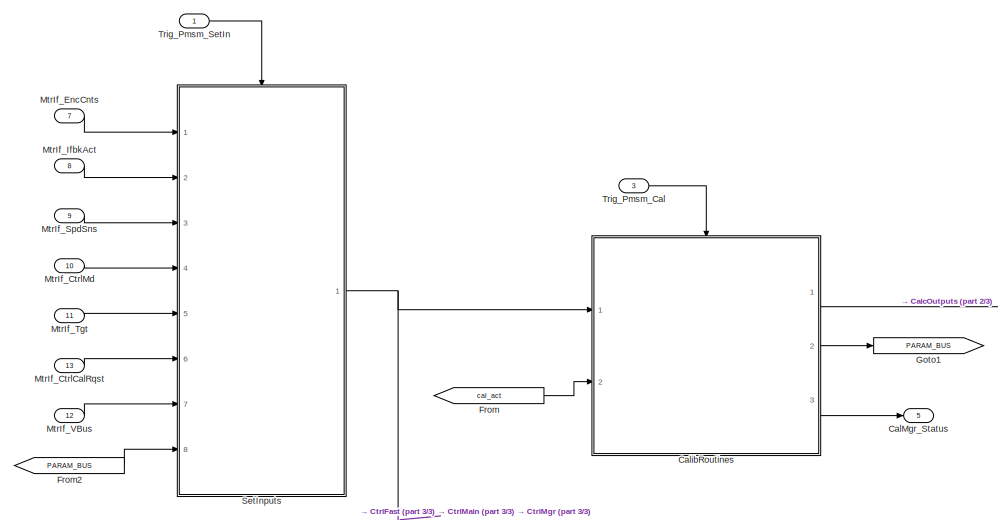
[diagram: root canvas - part 1/3, top left region]
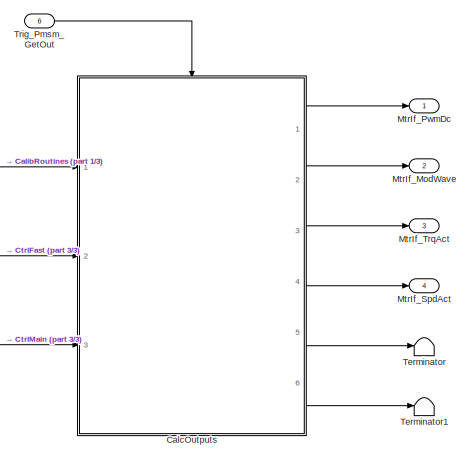
[diagram: root canvas - part 2/3, middle right region]
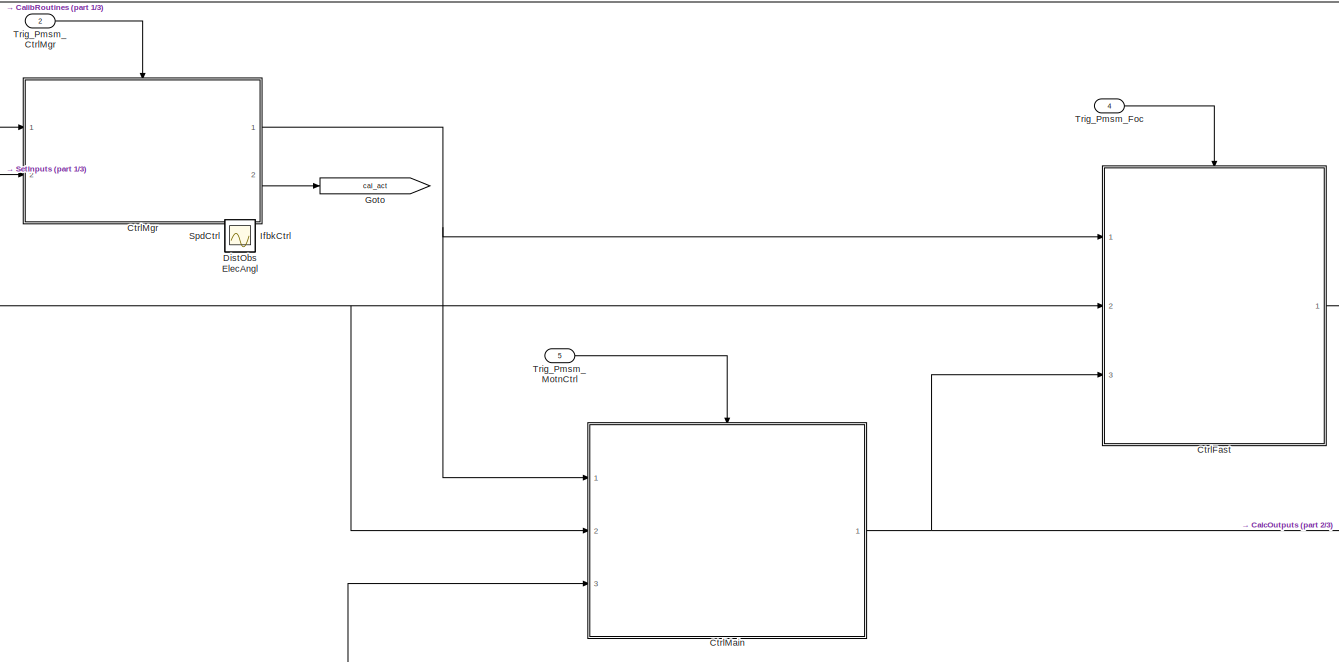
[diagram: root canvas - part 3/3, central region]
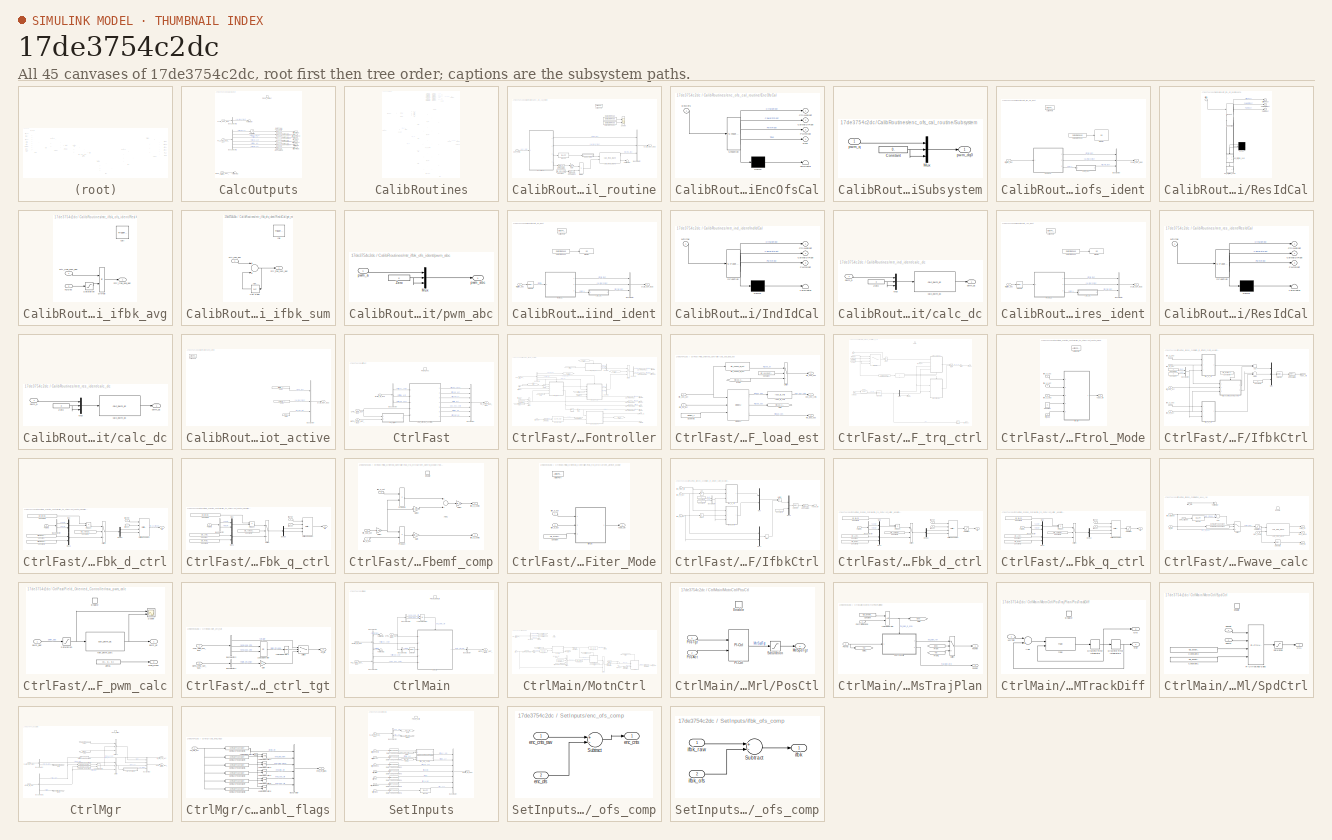
[diagram: thumbnail index - all 45 canvases of the model, root first then tree order]
MODEL slx_17de3754c2dc
KIND model
CONFIG AbsTol = auto
CONFIG EnableMultiTasking = on
CONFIG FixedStep = FastTsample / 10.
CONFIG MaxStep = auto
CONFIG MinStep = auto
CONFIG RelTol = 1e-3
CONFIG SampleTimeConstraint = Unconstrained
CONFIG Solver = FixedStepDiscrete
CONFIG SolverName = FixedStepDiscrete
CONFIG StartTime = 0.0
CONFIG StopTime = 3
WORKSPACE source: MATLAB code (in-file)
WORKSPACE cmdLim = Simulink.Parameter
WORKSPACE code: cmdLim.Value = 15;
WORKSPACE code: cmdLim.Description = 'Limit for controlling the maximum surface command angle.';
WORKSPACE code: cmdLim.Min = 0;
WORKSPACE code: cmdLim.Max = 90;
WORKSPACE code: cmdLim.DocUnits = 'deg';
WORKSPACE dispGain = Simulink.Parameter
WORKSPACE code: dispGain.Value = 0.75;
WORKSPACE code: dispGain.Description = 'Gain applied to the displacement error.';
WORKSPACE code: dispGain.Min = 0;
WORKSPACE code: dispGain.Max = [];
WORKSPACE code: dispGain.DocUnits = 'deg/sec/deg';
WORKSPACE dispLim = Simulink.Parameter
WORKSPACE code: dispLim.Value = 30;
WORKSPACE code: dispLim.Description = 'Limit for controlling the maximum commanded angle.';
WORKSPACE code: dispLim.Min = 0;
WORKSPACE code: dispLim.Max = 180;
WORKSPACE code: dispLim.DocUnits = 'deg';
WORKSPACE intGain = Simulink.Parameter
WORKSPACE code: intGain.Value = 0.5;
WORKSPACE code: intGain.Description = 'Gain applied to the integral error.';
WORKSPACE code: intGain.Min = 0;
WORKSPACE code: intGain.Max = [];
WORKSPACE code: intGain.DocUnits = 'deg/sec/deg/sec';
WORKSPACE intLim = Simulink.Parameter
WORKSPACE code: intLim.Value = 5;
WORKSPACE code: intLim.Description = 'Limit for controlling the maximum commanded angle.';
WORKSPACE code: intLim.Min = 0;
WORKSPACE code: intLim.Max = 90;
WORKSPACE code: intLim.DocUnits = 'deg';
WORKSPACE rateGain = Simulink.Parameter
WORKSPACE code: rateGain.Value = 2;
WORKSPACE code: rateGain.Description = 'Gain applied to the rate error.';
WORKSPACE code: rateGain.Min = 0;
WORKSPACE code: rateGain.Max = [];
WORKSPACE code: rateGain.DocUnits = 'deg/deg/sec';
WORKSPACE rateLim = Simulink.Parameter
WORKSPACE code: rateLim.Value = 6;
WORKSPACE code: rateLim.Description = 'Limit for controlling the maximum commanded angle.';
WORKSPACE code: rateLim.Min = 0;
WORKSPACE code: rateLim.Max = 180;
WORKSPACE code: rateLim.DocUnits = 'deg/sec';
WORKSPACE hdgGain = Simulink.Parameter
WORKSPACE code: hdgGain.Value = 0.015;
BLOCK [Outport] CalMgr_Status
  IconDisplay = Port number
  Port = 5
BLOCK [SubSystem] CalcOutputs
  Ports = [3, 6, 0, 1]
  RequestExecContextInheritance = off
BLOCK [BusSelector] CalcOutputs/Bus Selector1
  OutputAsBus = off
  OutputSignals = mtrif_pwm_dc,mtrif_mod_wave,mtrif_trq_act,mtrif_spd_est,mtrif_ifbk_dq,mtrif_pwm_dq
  Ports = [1, 6]
BLOCK [BusSelector] CalcOutputs/Bus Selector2
  OutputAsBus = off
  OutputSignals = cal_mgr_st_rqst
  Ports = [1, 1]
BLOCK [Inport] CalcOutputs/CALIB_OUT_BUS
  IconDisplay = Port number
  OutDataTypeStr = Bus: Calib_OutType
BLOCK [DataTypeConversion] CalcOutputs/Data Type Conversion
  RndMeth = Floor
  SaturateOnIntegerOverflow = off
BLOCK [DataTypeConversion] CalcOutputs/Data Type Conversion1
  RndMeth = Floor
  SaturateOnIntegerOverflow = off
BLOCK [DataTypeConversion] CalcOutputs/Data Type Conversion2
  RndMeth = Floor
  SaturateOnIntegerOverflow = off
BLOCK [DataTypeConversion] CalcOutputs/Data Type Conversion3
  RndMeth = Floor
  SaturateOnIntegerOverflow = off
BLOCK [DataTypeConversion] CalcOutputs/Data Type Conversion4
  RndMeth = Floor
  SaturateOnIntegerOverflow = off
BLOCK [DataTypeConversion] CalcOutputs/Data Type Conversion5
  RndMeth = Floor
  SaturateOnIntegerOverflow = off
BLOCK [Inport] CalcOutputs/FO_CTRL_BUS_OUT
  IconDisplay = Port number
  OutDataTypeStr = Bus: FoCtrl_OutType
  Port = 2
BLOCK [Inport] CalcOutputs/MOTN_CTRL_OUT_BUS
  IconDisplay = Port number
  OutDataTypeStr = Bus: MotnCtrl_OutType
  Port = 3
BLOCK [Outport] CalcOutputs/MtrIf_IfbkDq
  IconDisplay = Port number
  Port = 5
BLOCK [Outport] CalcOutputs/MtrIf_ModWave
  IconDisplay = Port number
  Port = 2
BLOCK [Outport] CalcOutputs/MtrIf_PwmDc
  IconDisplay = Port number
BLOCK [Outport] CalcOutputs/MtrIf_PwmDq
  IconDisplay = Port number
  Port = 6
BLOCK [Outport] CalcOutputs/MtrIf_SpdAct
  IconDisplay = Port number
  Port = 4
BLOCK [Outport] CalcOutputs/MtrIf_TrqAct
  IconDisplay = Port number
  Port = 3
BLOCK [TriggerPort] CalcOutputs/Pmsm_GetOut
  Ports = []
  SampleTime = -1
  StatesWhenEnabling = held
  TriggerType = function-call
  VariantControl = Variant
BLOCK [Saturate] CalcOutputs/Saturation
  InputPortMap = u0
  LowerLimit = 0.
  Ports = [1, 1]
  UpperLimit = 1.
BLOCK [Terminator] CalcOutputs/Terminator
BLOCK [Terminator] CalcOutputs/Terminator2
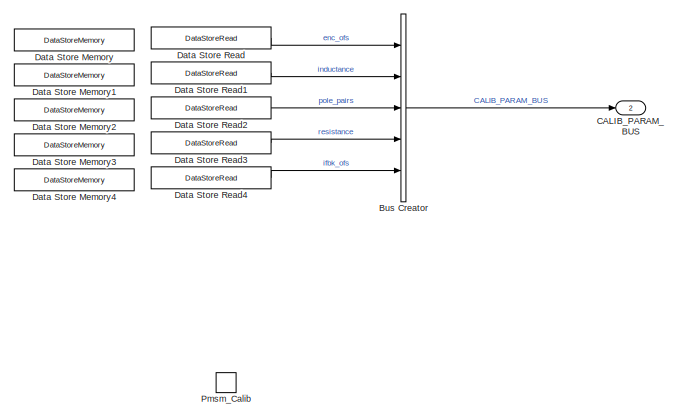
[diagram: CalibRoutines - part 1/5, top right region]
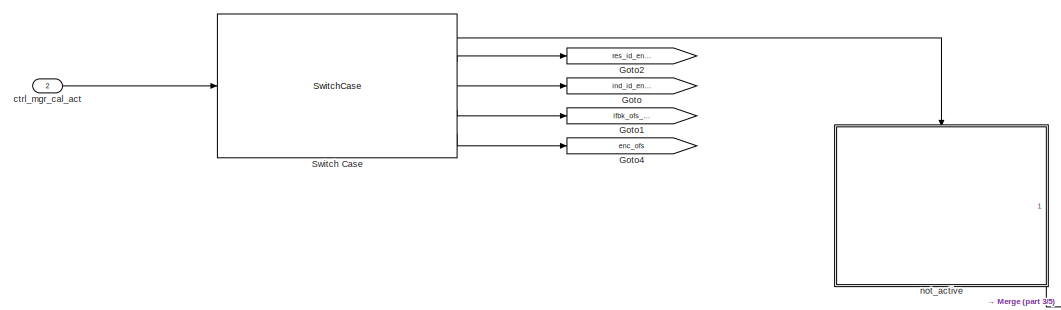
[diagram: CalibRoutines - part 2/5, top center region]
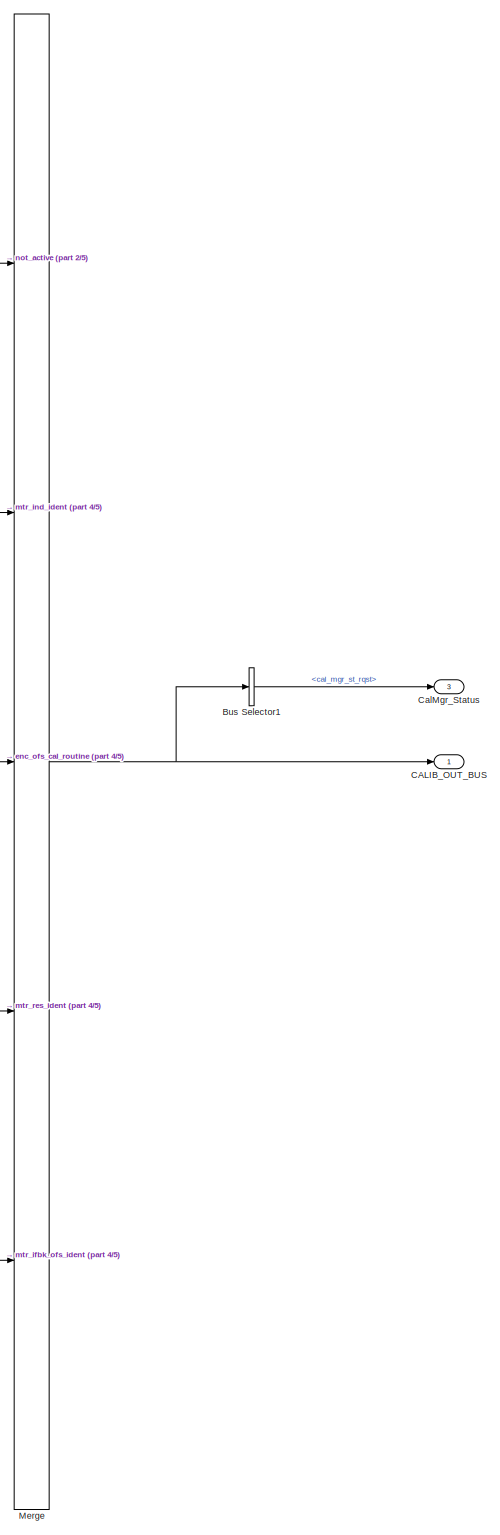
[diagram: CalibRoutines - part 3/5, right side, full height]
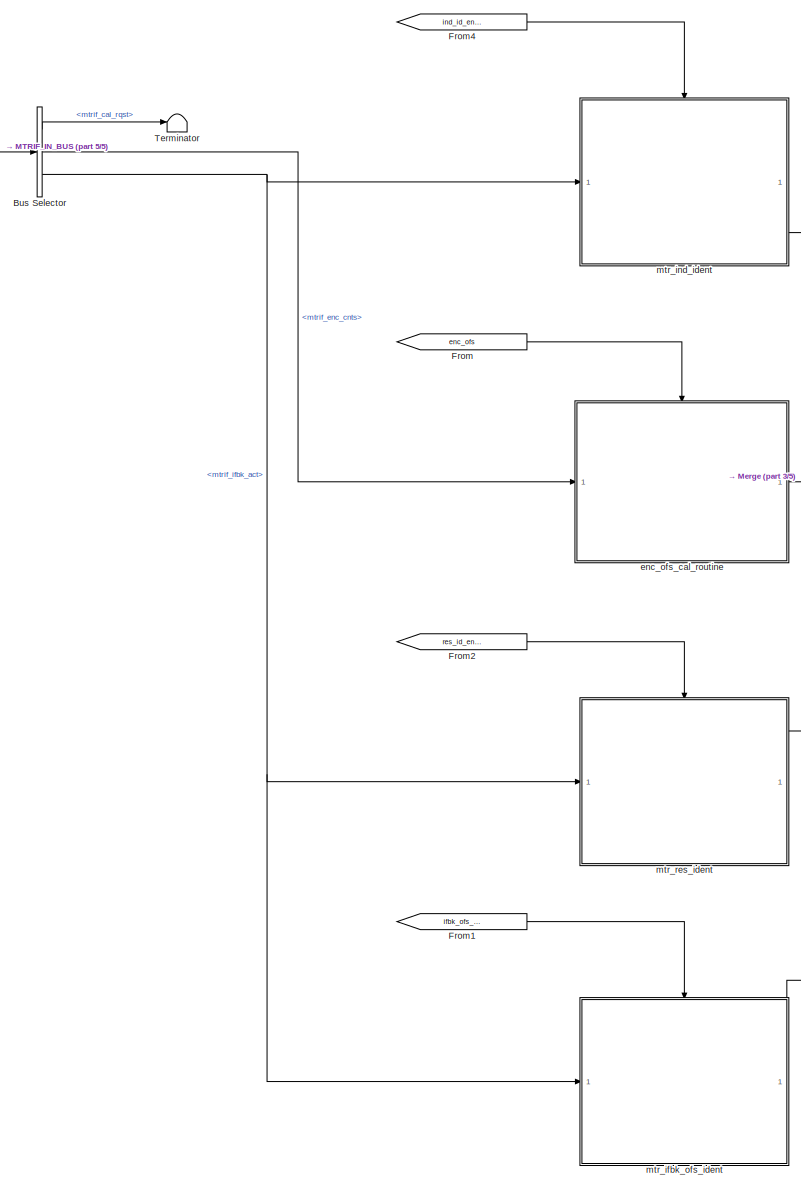
[diagram: CalibRoutines - part 4/5, central region]
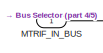
[diagram: CalibRoutines - part 5/5, middle left region]
BLOCK [SubSystem] CalibRoutines
  Ports = [2, 3, 0, 1]
  RequestExecContextInheritance = off
BLOCK [BusCreator] CalibRoutines/Bus Creator
  DisplayOption = bar
  InheritFromInputs = on
  Inputs = 5
  NonVirtualBus = on
  OutDataTypeStr = Bus: Calib_ParamType
  Ports = [5, 1]
BLOCK [BusSelector] CalibRoutines/Bus Selector
  OutputAsBus = off
  OutputSignals = mtrif_cal_rqst,mtrif_enc_cnts,mtrif_ifbk_act
  Ports = [1, 3]
BLOCK [BusSelector] CalibRoutines/Bus Selector1
  OutputAsBus = off
  OutputSignals = cal_mgr_st_rqst
  Ports = [1, 1]
BLOCK [Outport] CalibRoutines/CALIB_OUT_BUS
  IconDisplay = Port number
  OutDataTypeStr = Bus: Calib_OutType
BLOCK [Outport] CalibRoutines/CALIB_PARAM_BUS
  IconDisplay = Port number
  OutDataTypeStr = Bus: Calib_ParamType
  Port = 2
BLOCK [Outport] CalibRoutines/CalMgr_Status
  IconDisplay = Port number
  Port = 3
BLOCK [DataStoreMemory] CalibRoutines/Data Store Memory
  DataStoreName = CalData_EncOfs
  Dimensions = 1
  OutDataTypeStr = int32
  ReadBeforeWriteMsg = warning
  ShareAcrossModelInstances = on
  ShowAdditionalParam = off
  SignalType = real
  WriteAfterReadMsg = warning
  WriteAfterWriteMsg = warning
BLOCK [DataStoreMemory] CalibRoutines/Data Store Memory1
  DataStoreName = CalData_L
  Dimensions = 1
  InitialValue = -1.
  OutDataTypeStr = single
  ReadBeforeWriteMsg = warning
  ShareAcrossModelInstances = on
  ShowAdditionalParam = off
  SignalType = real
  WriteAfterReadMsg = warning
  WriteAfterWriteMsg = warning
BLOCK [DataStoreMemory] CalibRoutines/Data Store Memory2
  DataStoreName = CalData_nPoles
  Dimensions = 1
  OutDataTypeStr = int32
  ReadBeforeWriteMsg = warning
  ShareAcrossModelInstances = on
  ShowAdditionalParam = off
  SignalType = real
  WriteAfterReadMsg = warning
  WriteAfterWriteMsg = warning
BLOCK [DataStoreMemory] CalibRoutines/Data Store Memory3
  DataStoreName = CalData_Res
  Dimensions = 1
  InitialValue = -1.
  OutDataTypeStr = single
  ReadBeforeWriteMsg = warning
  ShareAcrossModelInstances = on
  ShowAdditionalParam = off
  SignalType = real
  WriteAfterReadMsg = warning
  WriteAfterWriteMsg = warning
BLOCK [DataStoreMemory] CalibRoutines/Data Store Memory4
  DataStoreName = CalData_IfbkOfs_Abc
  Dimensions = 3
  InitialValue = [0., 0., 0.]
  OutDataTypeStr = single
  ReadBeforeWriteMsg = warning
  ShareAcrossModelInstances = on
  ShowAdditionalParam = off
  SignalType = real
  WriteAfterReadMsg = warning
  WriteAfterWriteMsg = warning
BLOCK [DataStoreRead] CalibRoutines/Data Store Read
  DataStoreName = CalData_EncOfs
  Ports = [0, 1]
BLOCK [DataStoreRead] CalibRoutines/Data Store Read1
  DataStoreName = CalData_L
  Ports = [0, 1]
BLOCK [DataStoreRead] CalibRoutines/Data Store Read2
  DataStoreName = CalData_nPoles
  Ports = [0, 1]
BLOCK [DataStoreRead] CalibRoutines/Data Store Read3
  DataStoreName = CalData_Res
  Ports = [0, 1]
BLOCK [DataStoreRead] CalibRoutines/Data Store Read4
  DataStoreName = CalData_IfbkOfs_Abc
  Ports = [0, 1]
BLOCK [From] CalibRoutines/From
  GotoTag = enc_ofs
BLOCK [From] CalibRoutines/From1
  GotoTag = ifbk_ofs_cal_enbl
BLOCK [From] CalibRoutines/From2
  GotoTag = res_id_enbl
BLOCK [From] CalibRoutines/From4
  GotoTag = ind_id_enbl
BLOCK [Goto] CalibRoutines/Goto
  GotoTag = ind_id_enbl
BLOCK [Goto] CalibRoutines/Goto1
  GotoTag = ifbk_ofs_cal_enbl
BLOCK [Goto] CalibRoutines/Goto2
  GotoTag = res_id_enbl
BLOCK [Goto] CalibRoutines/Goto4
  GotoTag = enc_ofs
BLOCK [Inport] CalibRoutines/MTRIF_IN_BUS
  IconDisplay = Port number
  OutDataTypeStr = Bus: MtrIf_InType
BLOCK [Merge] CalibRoutines/Merge
  Inputs = 5
  Ports = [5, 1]
BLOCK [TriggerPort] CalibRoutines/Pmsm_Calib
  Ports = []
  SampleTime = -1
  StatesWhenEnabling = held
  TriggerType = function-call
  VariantControl = Variant
BLOCK [SwitchCase] CalibRoutines/Switch Case
  CaseConditions = {MtrCtrlCal_T.CAL_NONE, MtrCtrlCal_T.CAL_RES_ID, MtrCtrlCal_T.CAL_IND_ID, MtrCtrlCal_T.CAL_IFBK_OFS, MtrCtrlCal_T.CAL_ENC_OFS}
  Ports = [1, 5]
  ShowDefaultCase = off
BLOCK [Terminator] CalibRoutines/Terminator
BLOCK [Inport] CalibRoutines/ctrl_mgr_cal_act
  IconDisplay = Port number
  Port = 2
BLOCK [SubSystem] CalibRoutines/enc_ofs_cal_routine
  Ports = [1, 1, 0, 0, 0, 0, 0, 1]
  RequestExecContextInheritance = off
BLOCK [ActionPort] CalibRoutines/enc_ofs_cal_routine/Action Port
  ActionType = case
  InitializeStates = reset
BLOCK [BusCreator] CalibRoutines/enc_ofs_cal_routine/Bus Creator
  DisplayOption = bar
  InheritFromInputs = on
  Inputs = 3
  NonVirtualBus = on
  OutDataTypeStr = Bus: Calib_OutType
  Ports = [3, 1]
BLOCK [Outport] CalibRoutines/enc_ofs_cal_routine/CALIB_OUT_BUS
  IconDisplay = Port number
  OutDataTypeStr = Bus: Calib_OutType
BLOCK [Constant] CalibRoutines/enc_ofs_cal_routine/Constant
  Value = Cfg_EncCnts
BLOCK [Reference] CalibRoutines/enc_ofs_cal_routine/D-1LPF  REF=ctrl_lib/D-1LPF  (lib defined in slx_12a75478d468, slx_92942179a066)
  Ports = [1, 1]
  SourceBlock = ctrl_lib/D-1LPF
BLOCK [DataStoreRead] CalibRoutines/enc_ofs_cal_routine/Data Store Read
  DataStoreName = CalData_EncOfs
  Ports = [0, 1]
BLOCK [DataStoreRead] CalibRoutines/enc_ofs_cal_routine/Data Store Read1
  DataStoreName = CalData_nPoles
  Ports = [0, 1]
BLOCK [DataTypeConversion] CalibRoutines/enc_ofs_cal_routine/Data Type Cnversion1
  RndMeth = Floor
  SaturateOnIntegerOverflow = off
BLOCK [DataTypeConversion] CalibRoutines/enc_ofs_cal_routine/Data Type Conversion
  RndMeth = Floor
  SaturateOnIntegerOverflow = off
BLOCK [Product] CalibRoutines/enc_ofs_cal_routine/Divide
  InputSameDT = off
  Inputs = */
  OutDataTypeStr = Inherit: Inherit via internal rule
  Ports = [2, 1]
  RndMeth = Floor
  SaturateOnIntegerOverflow = off
BLOCK [SubSystem] CalibRoutines/enc_ofs_cal_routine/EncOfsCal
  ErrorFcn = Stateflow.Translate.translate
  PermitHierarchicalResolution = ExplicitOnly
  Ports = [1, 4]
  RequestExecContextInheritance = off
  SFBlockType = Chart
  TreatAsAtomicUnit = on
BLOCK [Demux] CalibRoutines/enc_ofs_cal_routine/EncOfsCal/ Demux 
  Outputs = 1
  Ports = [1, 1]
BLOCK [S-Function] CalibRoutines/enc_ofs_cal_routine/EncOfsCal/ SFunction 
  EnableBusSupport = on
  FunctionName = sf_sfun
  Parameters = Cfg_AnglOfsCalPwmDuty,Cfg_EncCnts,Cfg_EncOfsCalPwmDuty
  PortCounts = [1 5]
  Ports = [1, 5]
  SFcnIsStateOwnerBlock = off
  SFunctionDeploymentMode = off
  Tag = Stateflow S-Function pmsm_ctrl 3
BLOCK [Terminator] CalibRoutines/enc_ofs_cal_routine/EncOfsCal/ Terminator 
BLOCK [Outport] CalibRoutines/enc_ofs_cal_routine/EncOfsCal/CalMgrStRqst
  IconDisplay = Port number
  Port = 2
BLOCK [Outport] CalibRoutines/enc_ofs_cal_routine/EncOfsCal/CtrlMdRqst
  IconDisplay = Port number
BLOCK [Inport] CalibRoutines/enc_ofs_cal_routine/EncOfsCal/EncCnts
  IconDisplay = Port number
BLOCK [Outport] CalibRoutines/enc_ofs_cal_routine/EncOfsCal/PwmRqst
  IconDisplay = Port number
  Port = 3
BLOCK [Outport] CalibRoutines/enc_ofs_cal_routine/EncOfsCal/Ticks
  IconDisplay = Port number
  Port = 4
BLOCK [Gain] CalibRoutines/enc_ofs_cal_routine/Gain
  AttributesFormatString = %<Gain>
  Gain = 2 * pi
  OutDataTypeStr = Inherit: Inherit via internal rule
  ParamDataTypeStr = Inherit: Inherit via internal rule
  SaturateOnIntegerOverflow = off
BLOCK [Scope] CalibRoutines/enc_ofs_cal_routine/Scope
  Floating = off
  NumInputPorts = 2
  Ports = [2]
  ScopeSpecificationString = Simulink.scopes.TimeScopeBlockCfg('CurrentConfiguration', extmgr.ConfigurationSet(extmgr.Configuration('Core','General UI',true),extmgr.Configuration('Core','Source UI',true),extmgr.Configuration('Sources','WiredSimulink',true,'DataLoggingVariableName','ScopeData1'),extmgr.Configuration('Visuals','Time Domain',true,'SerializedDisplays',{struct('MinYLimReal','-100.875','MaxYLimReal','907.875','YLab...<+2147ch>
BLOCK [SubSystem] CalibRoutines/enc_ofs_cal_routine/Subsystem
  Ports = [1, 1]
  RequestExecContextInheritance = off
BLOCK [Constant] CalibRoutines/enc_ofs_cal_routine/Subsystem/Constant
  OutDataTypeStr = single
  Value = 0.
BLOCK [Mux] CalibRoutines/enc_ofs_cal_routine/Subsystem/Mux
  DisplayOption = bar
  Inputs = 3
  Ports = [3, 1]
BLOCK [Outport] CalibRoutines/enc_ofs_cal_routine/Subsystem/pwm_dq0
  IconDisplay = Port number
BLOCK [Inport] CalibRoutines/enc_ofs_cal_routine/Subsystem/pwm_q
  IconDisplay = Port number
BLOCK [Terminator] CalibRoutines/enc_ofs_cal_routine/Terminator
BLOCK [Reference] CalibRoutines/enc_ofs_cal_routine/calc_mod_wave  REF=ctrl_lib/calc_mod_wave  (lib defined in slx_12a75478d468, slx_92942179a066)
  Ports = [2, 2]
  SourceBlock = ctrl_lib/calc_mod_wave
  SourceType = SubSystem
BLOCK [Inport] CalibRoutines/enc_ofs_cal_routine/enc_cnts
  IconDisplay = Port number
BLOCK [SubSystem] CalibRoutines/mtr_ifbk_ofs_ident
  Ports = [1, 1, 0, 0, 0, 0, 0, 1]
  RequestExecContextInheritance = off
BLOCK [ActionPort] CalibRoutines/mtr_ifbk_ofs_ident/Action Port
  ActionType = case
  InitializeStates = reset
BLOCK [BusCreator] CalibRoutines/mtr_ifbk_ofs_ident/Bus Creator
  DisplayOption = bar
  InheritFromInputs = on
  Inputs = 3
  NonVirtualBus = on
  OutDataTypeStr = Bus: Calib_OutType
  Ports = [3, 1]
BLOCK [Outport] CalibRoutines/mtr_ifbk_ofs_ident/CALIB_OUT_BUS
  IconDisplay = Port number
  OutDataTypeStr = Bus: Calib_OutType
BLOCK [DataStoreRead] CalibRoutines/mtr_ifbk_ofs_ident/Data Store Read
  DataStoreName = CalData_IfbkOfs_Abc
  Ports = [0, 1]
BLOCK [Display] CalibRoutines/mtr_ifbk_ofs_ident/Display
  Decimation = 1
  Ports = [1]
BLOCK [SubSystem] CalibRoutines/mtr_ifbk_ofs_ident/ResIdCal
  ErrorFcn = Stateflow.Translate.translate
  PermitHierarchicalResolution = ExplicitOnly
  Ports = [1, 3]
  RequestExecContextInheritance = off
  SFBlockType = Chart
  TreatAsAtomicUnit = on
BLOCK [Demux] CalibRoutines/mtr_ifbk_ofs_ident/ResIdCal/ Demux 
  Outputs = 2
  Ports = [1, 2]
BLOCK [S-Function] CalibRoutines/mtr_ifbk_ofs_ident/ResIdCal/ SFunction 
  EnableBusSupport = on
  FunctionName = sf_sfun
  PortCounts = [3 7]
  Ports = [3, 7]
  SFcnIsStateOwnerBlock = off
  SFunctionDeploymentMode = off
  Tag = Stateflow S-Function pmsm_ctrl 2
BLOCK [Outport] CalibRoutines/mtr_ifbk_ofs_ident/ResIdCal/CalMgrStRqst
  IconDisplay = Port number
  Port = 2
BLOCK [Outport] CalibRoutines/mtr_ifbk_ofs_ident/ResIdCal/CtrlMdRqst
  IconDisplay = Port number
BLOCK [Inport] CalibRoutines/mtr_ifbk_ofs_ident/ResIdCal/MtrIfbk
  IconDisplay = Port number
BLOCK [Outport] CalibRoutines/mtr_ifbk_ofs_ident/ResIdCal/PwmRqst
  IconDisplay = Port number
  Port = 3
BLOCK [SubSystem] CalibRoutines/mtr_ifbk_ofs_ident/ResIdCal/get_mtr_ifbk_avg
  Ports = [2, 1, 0, 1]
  PreDeleteFcn = Stateflow.SLINSF.SimulinkMan.removePreDeleteFcn
  RequestExecContextInheritance = off
  UndoDeleteFcn = Stateflow.SLINSF.SimulinkMan.restorePreDeleteFcn
BLOCK [Product] CalibRoutines/mtr_ifbk_ofs_ident/ResIdCal/get_mtr_ifbk_avg/Divide
  InputSameDT = off
  Inputs = */
  OutDataTypeStr = Inherit: Inherit via internal rule
  Ports = [2, 1]
  RndMeth = Floor
  SaturateOnIntegerOverflow = off
BLOCK [Saturate] CalibRoutines/mtr_ifbk_ofs_ident/ResIdCal/get_mtr_ifbk_avg/Saturation
  InputPortMap = u0
  LowerLimit = 1
  Ports = [1, 1]
  UpperLimit = 1e6
BLOCK [TriggerPort] CalibRoutines/mtr_ifbk_ofs_ident/ResIdCal/get_mtr_ifbk_avg/call
  CopyFcn = Stateflow.SLINSF.SimulinkMan.removeBlockPreDeleteFcn
  Ports = []
  PreDeleteFcn = Stateflow.SLINSF.SimulinkMan.unsafePredeleteFcn
  StatesWhenEnabling = reset
  TriggerType = function-call
  VariantControl = (inherit)
BLOCK [Outport] CalibRoutines/mtr_ifbk_ofs_ident/ResIdCal/get_mtr_ifbk_avg/mtr_ifbk_avg_abc
  IconDisplay = Port number
BLOCK [Inport] CalibRoutines/mtr_ifbk_ofs_ident/ResIdCal/get_mtr_ifbk_avg/mtr_ifbk_sum_abc
  IconDisplay = Port number
  PortDimensions = 3
BLOCK [Inport] CalibRoutines/mtr_ifbk_ofs_ident/ResIdCal/get_mtr_ifbk_avg/ncycles
  IconDisplay = Port number
  Port = 2
BLOCK [SubSystem] CalibRoutines/mtr_ifbk_ofs_ident/ResIdCal/get_mtr_ifbk_sum
  Ports = [1, 1, 0, 1]
  PreDeleteFcn = Stateflow.SLINSF.SimulinkMan.removePreDeleteFcn
  RequestExecContextInheritance = off
  UndoDeleteFcn = Stateflow.SLINSF.SimulinkMan.restorePreDeleteFcn
BLOCK [Sum] CalibRoutines/mtr_ifbk_ofs_ident/ResIdCal/get_mtr_ifbk_sum/Add
  InputSameDT = off
  OutDataTypeStr = Inherit: Inherit via internal rule
  Ports = [2, 1]
  SaturateOnIntegerOverflow = off
BLOCK [UnitDelay] CalibRoutines/mtr_ifbk_ofs_ident/ResIdCal/get_mtr_ifbk_sum/Unit Delay
  InputProcessing = Elements as channels (sample based)
  SampleTime = -1
BLOCK [TriggerPort] CalibRoutines/mtr_ifbk_ofs_ident/ResIdCal/get_mtr_ifbk_sum/call
  CopyFcn = Stateflow.SLINSF.SimulinkMan.removeBlockPreDeleteFcn
  Ports = []
  PreDeleteFcn = Stateflow.SLINSF.SimulinkMan.unsafePredeleteFcn
  StatesWhenEnabling = reset
  TriggerType = function-call
  VariantControl = (inherit)
BLOCK [Inport] CalibRoutines/mtr_ifbk_ofs_ident/ResIdCal/get_mtr_ifbk_sum/mtr_ifbk_abc
  IconDisplay = Port number
  PortDimensions = 3
BLOCK [Outport] CalibRoutines/mtr_ifbk_ofs_ident/ResIdCal/get_mtr_ifbk_sum/mtr_ifbk_sum_abc
  IconDisplay = Port number
BLOCK [Inport] CalibRoutines/mtr_ifbk_ofs_ident/mtr_ifbk_abc
  IconDisplay = Port number
BLOCK [SubSystem] CalibRoutines/mtr_ifbk_ofs_ident/pwm_abc
  Ports = [1, 1]
  RequestExecContextInheritance = off
BLOCK [Mux] CalibRoutines/mtr_ifbk_ofs_ident/pwm_abc/Mux
  DisplayOption = bar
  Inputs = 3
  Ports = [3, 1]
BLOCK [Constant] CalibRoutines/mtr_ifbk_ofs_ident/pwm_abc/Zero
  OutDataTypeStr = single
  Value = 0
BLOCK [Inport] CalibRoutines/mtr_ifbk_ofs_ident/pwm_abc/pwm_a
  IconDisplay = Port number
BLOCK [Outport] CalibRoutines/mtr_ifbk_ofs_ident/pwm_abc/pwm_abc
  IconDisplay = Port number
BLOCK [SubSystem] CalibRoutines/mtr_ind_ident
  Ports = [1, 1, 0, 0, 0, 0, 0, 1]
  RequestExecContextInheritance = off
BLOCK [ActionPort] CalibRoutines/mtr_ind_ident/Action Port
  ActionType = case
  InitializeStates = reset
BLOCK [BusCreator] CalibRoutines/mtr_ind_ident/Bus Creator
  DisplayOption = bar
  InheritFromInputs = on
  Inputs = 3
  NonVirtualBus = on
  OutDataTypeStr = Bus: Calib_OutType
  Ports = [3, 1]
BLOCK [Outport] CalibRoutines/mtr_ind_ident/CALIB_OUT_BUS
  IconDisplay = Port number
  OutDataTypeStr = Bus: Calib_OutType
BLOCK [DataStoreRead] CalibRoutines/mtr_ind_ident/Data Store Read
  DataStoreName = CalData_L
  Ports = [0, 1]
BLOCK [Display] CalibRoutines/mtr_ind_ident/Display
  Decimation = 1
  Ports = [1]
BLOCK [SubSystem] CalibRoutines/mtr_ind_ident/IndIdCal
  ErrorFcn = Stateflow.Translate.translate
  PermitHierarchicalResolution = ExplicitOnly
  Ports = [1, 3]
  RequestExecContextInheritance = off
  SFBlockType = Chart
  TreatAsAtomicUnit = on
BLOCK [Demux] CalibRoutines/mtr_ind_ident/IndIdCal/ Demux 
  Outputs = 1
  Ports = [1, 1]
BLOCK [S-Function] CalibRoutines/mtr_ind_ident/IndIdCal/ SFunction 
  EnableBusSupport = on
  FunctionName = sf_sfun
  Parameters = Cfg_IndCalPwmDuty,Cfg_VBus,MtrParams,TsMain
  PortCounts = [1 4]
  Ports = [1, 4]
  SFcnIsStateOwnerBlock = off
  SFunctionDeploymentMode = off
  Tag = Stateflow S-Function pmsm_ctrl 1
BLOCK [Terminator] CalibRoutines/mtr_ind_ident/IndIdCal/ Terminator 
BLOCK [Outport] CalibRoutines/mtr_ind_ident/IndIdCal/CalMgrStRqst
  IconDisplay = Port number
  Port = 2
BLOCK [Outport] CalibRoutines/mtr_ind_ident/IndIdCal/CtrlMdRqst
  IconDisplay = Port number
BLOCK [Inport] CalibRoutines/mtr_ind_ident/IndIdCal/MtrIfbk
  IconDisplay = Port number
BLOCK [Outport] CalibRoutines/mtr_ind_ident/IndIdCal/PwmRqst
  IconDisplay = Port number
  Port = 3
BLOCK [Selector] CalibRoutines/mtr_ind_ident/Selector
  IndexOptions = Index vector (dialog)
  Indices = [1]
  InputPortWidth = 3
  OutputSizes = 1
  Ports = [1, 1]
BLOCK [SubSystem] CalibRoutines/mtr_ind_ident/calc_dc
  Ports = [1, 1]
  RequestExecContextInheritance = off
BLOCK [Mux] CalibRoutines/mtr_ind_ident/calc_dc/Mux
  DisplayOption = bar
  Inputs = 3
  Ports = [3, 1]
BLOCK [Constant] CalibRoutines/mtr_ind_ident/calc_dc/Zero
  OutDataTypeStr = single
  Value = 0
BLOCK [Reference] CalibRoutines/mtr_ind_ident/calc_dc/calc_pwm_dc  REF=ctrl_lib/calc_pwm_dc  (lib defined in slx_12a75478d468, slx_92942179a066)
  Ports = [1, 1]
  SourceBlock = ctrl_lib/calc_pwm_dc
  SourceType = SubSystem
BLOCK [Inport] CalibRoutines/mtr_ind_ident/calc_dc/pwm_a
  IconDisplay = Port number
BLOCK [Outport] CalibRoutines/mtr_ind_ident/calc_dc/pwm_dc
  IconDisplay = Port number
BLOCK [Inport] CalibRoutines/mtr_ind_ident/mtr_ifbk_abc
  IconDisplay = Port number
BLOCK [SubSystem] CalibRoutines/mtr_res_ident
  Ports = [1, 1, 0, 0, 0, 0, 0, 1]
  RequestExecContextInheritance = off
BLOCK [ActionPort] CalibRoutines/mtr_res_ident/Action Port
  ActionType = case
  InitializeStates = reset
BLOCK [BusCreator] CalibRoutines/mtr_res_ident/Bus Creator
  DisplayOption = bar
  InheritFromInputs = on
  Inputs = 3
  NonVirtualBus = on
  OutDataTypeStr = Bus: Calib_OutType
  Ports = [3, 1]
BLOCK [Outport] CalibRoutines/mtr_res_ident/CALIB_OUT_BUS
  IconDisplay = Port number
  OutDataTypeStr = Bus: Calib_OutType
BLOCK [DataStoreRead] CalibRoutines/mtr_res_ident/Data Store Read
  DataStoreName = CalData_Res
  Ports = [0, 1]
BLOCK [Display] CalibRoutines/mtr_res_ident/Display
  Decimation = 1
  Ports = [1]
BLOCK [SubSystem] CalibRoutines/mtr_res_ident/ResIdCal
  ErrorFcn = Stateflow.Translate.translate
  PermitHierarchicalResolution = ExplicitOnly
  Ports = [1, 3]
  RequestExecContextInheritance = off
  SFBlockType = Chart
  TreatAsAtomicUnit = on
BLOCK [Demux] CalibRoutines/mtr_res_ident/ResIdCal/ Demux 
  Outputs = 1
  Ports = [1, 1]
BLOCK [S-Function] CalibRoutines/mtr_res_ident/ResIdCal/ SFunction 
  EnableBusSupport = on
  FunctionName = sf_sfun
  Parameters = Cfg_ResCalPwmDuty,MtrParams
  PortCounts = [1 4]
  Ports = [1, 4]
  SFcnIsStateOwnerBlock = off
  SFunctionDeploymentMode = off
  Tag = Stateflow S-Function pmsm_ctrl 5
BLOCK [Terminator] CalibRoutines/mtr_res_ident/ResIdCal/ Terminator 
BLOCK [Outport] CalibRoutines/mtr_res_ident/ResIdCal/CalMgrStRqst
  IconDisplay = Port number
  Port = 2
BLOCK [Outport] CalibRoutines/mtr_res_ident/ResIdCal/CtrlMdRqst
  IconDisplay = Port number
BLOCK [Inport] CalibRoutines/mtr_res_ident/ResIdCal/MtrIfbk
  IconDisplay = Port number
BLOCK [Outport] CalibRoutines/mtr_res_ident/ResIdCal/PwmRqst
  IconDisplay = Port number
  Port = 3
BLOCK [Selector] CalibRoutines/mtr_res_ident/Selector
  IndexOptions = Index vector (dialog)
  Indices = [1]
  InputPortWidth = 3
  OutputSizes = 1
  Ports = [1, 1]
BLOCK [SubSystem] CalibRoutines/mtr_res_ident/calc_dc
  Ports = [1, 1]
  RequestExecContextInheritance = off
BLOCK [Mux] CalibRoutines/mtr_res_ident/calc_dc/Mux
  DisplayOption = bar
  Inputs = 3
  Ports = [3, 1]
BLOCK [Constant] CalibRoutines/mtr_res_ident/calc_dc/Zero
  OutDataTypeStr = single
  Value = 0
BLOCK [Reference] CalibRoutines/mtr_res_ident/calc_dc/calc_pwm_dc  REF=ctrl_lib/calc_pwm_dc  (lib defined in slx_12a75478d468, slx_92942179a066)
  Ports = [1, 1]
  SourceBlock = ctrl_lib/calc_pwm_dc
  SourceType = SubSystem
BLOCK [Inport] CalibRoutines/mtr_res_ident/calc_dc/pwm_a
  IconDisplay = Port number
BLOCK [Outport] CalibRoutines/mtr_res_ident/calc_dc/pwm_dc
  IconDisplay = Port number
BLOCK [Inport] CalibRoutines/mtr_res_ident/mtr_ifbk_abc
  IconDisplay = Port number
BLOCK [SubSystem] CalibRoutines/not_active
  Ports = [0, 1, 0, 0, 0, 0, 0, 1]
  RequestExecContextInheritance = off
BLOCK [ActionPort] CalibRoutines/not_active/Action Port
  ActionType = case
  InitializeStates = reset
BLOCK [BusCreator] CalibRoutines/not_active/Bus Creator
  DisplayOption = bar
  InheritFromInputs = on
  Inputs = 3
  NonVirtualBus = on
  OutDataTypeStr = Bus: Calib_OutType
  Ports = [3, 1]
BLOCK [Outport] CalibRoutines/not_active/CALIB_OUT_BUS
  IconDisplay = Port number
  OutDataTypeStr = Bus: Calib_OutType
BLOCK [Constant] CalibRoutines/not_active/Zero
  OutDataTypeStr = single
  Value = [0., 0., 0.]
BLOCK [Constant] CalibRoutines/not_active/Zero1
  Value = CalMgrSt_T.ST_DONE
BLOCK [Constant] CalibRoutines/not_active/Zero2
  Value = MtrCtrlMd_T.CTRL_MD_OFF
BLOCK [SubSystem] CtrlFast
  PermitHierarchicalResolution = ExplicitOnly
  Ports = [3, 1, 0, 1]
  RTWFcnName = foo
  RequestExecContextInheritance = off
  TreatAsAtomicUnit = on
BLOCK [BusCreator] CtrlFast/Bus Creator
  DisplayOption = bar
  InheritFromInputs = on
  Inputs = 7
  Ports = [7, 1]
BLOCK [BusSelector] CtrlFast/Bus Selector
  OutputAsBus = off
  OutputSignals = mtrif_enc_cnts,mtrif_ifbk_act,mtrif_spd_sns
  Ports = [1, 3]
BLOCK [Inport] CtrlFast/CTRL_MGR_OUT_BUS
  IconDisplay = Port number
  OutDataTypeStr = Bus: CtrlMgr_OutType
BLOCK [Outport] CtrlFast/FO_CTRL_BUS_OUT
  IconDisplay = Port number
  InitialOutput = 0
  OutDataTypeStr = Bus: FoCtrl_OutType
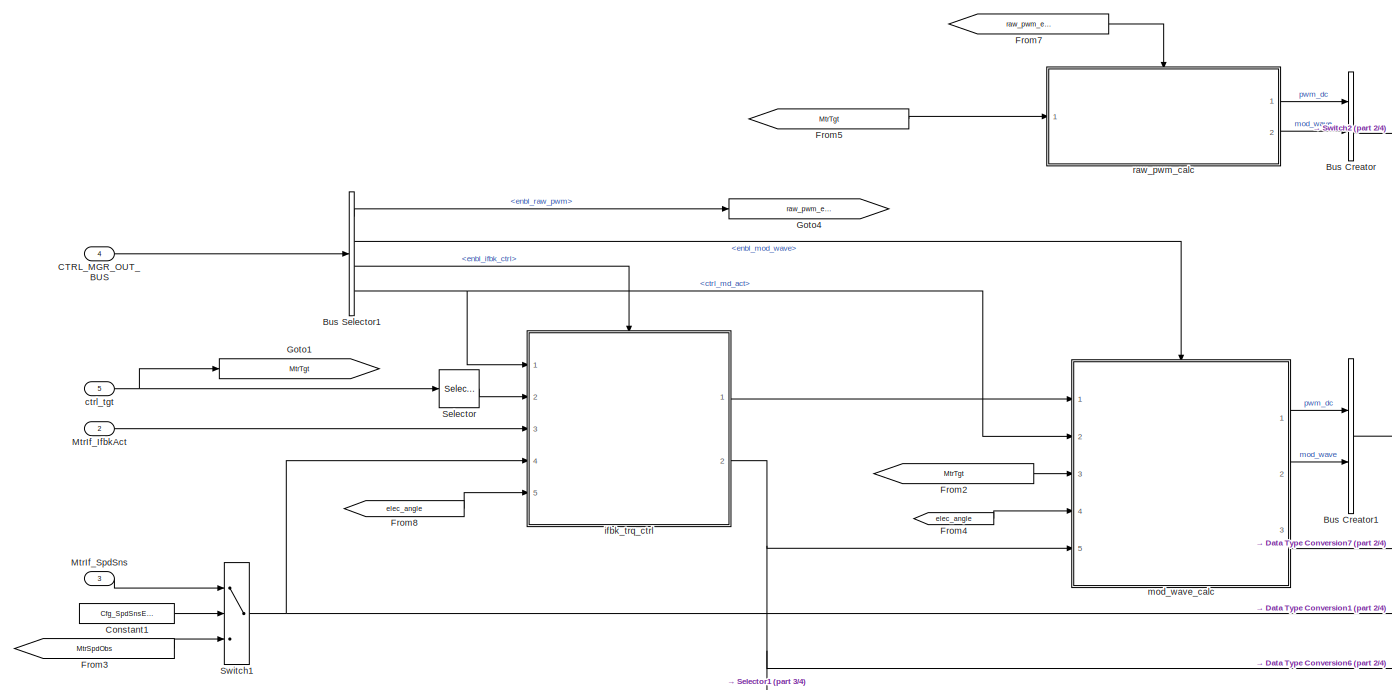
[diagram: CtrlFast/Field_Oriented_Controller - part 1/4, central region]
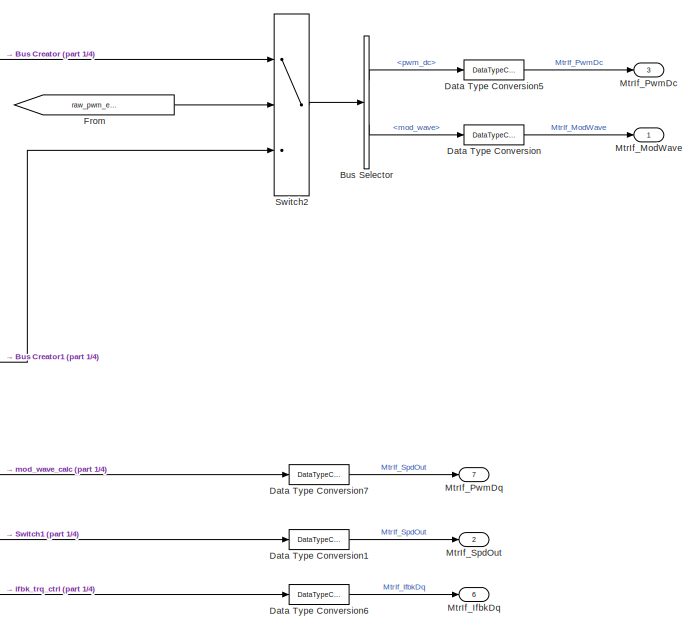
[diagram: CtrlFast/Field_Oriented_Controller - part 2/4, middle right region]
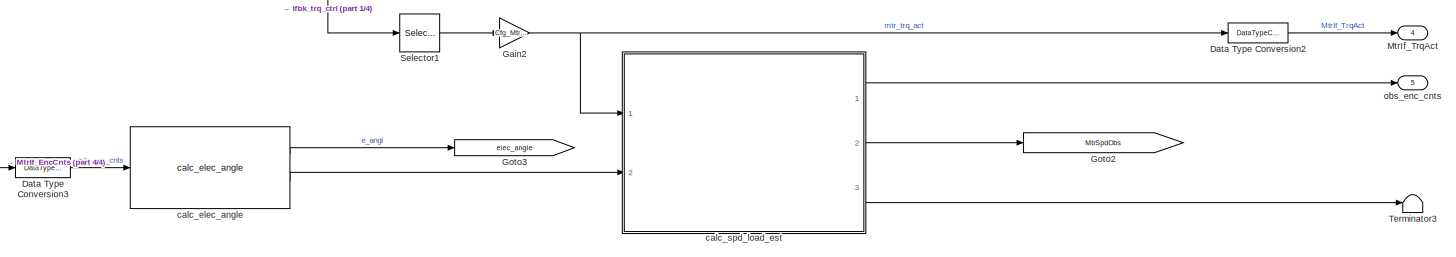
[diagram: CtrlFast/Field_Oriented_Controller - part 3/4, bottom center region]
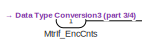
[diagram: CtrlFast/Field_Oriented_Controller - part 4/4, bottom left region]
BLOCK [SubSystem] CtrlFast/Field_Oriented_Controller
  Ports = [5, 7]
  RequestExecContextInheritance = off
BLOCK [BusCreator] CtrlFast/Field_Oriented_Controller/Bus Creator
  DisplayOption = bar
  InheritFromInputs = on
  Inputs = 2
  Ports = [2, 1]
BLOCK [BusCreator] CtrlFast/Field_Oriented_Controller/Bus Creator1
  DisplayOption = bar
  InheritFromInputs = on
  Inputs = 2
  Ports = [2, 1]
BLOCK [BusSelector] CtrlFast/Field_Oriented_Controller/Bus Selector
  OutputAsBus = off
  OutputSignals = pwm_dc,mod_wave
  Ports = [1, 2]
BLOCK [BusSelector] CtrlFast/Field_Oriented_Controller/Bus Selector1
  OutputAsBus = off
  OutputSignals = enbl_ctrl_flags.enbl_raw_pwm,enbl_ctrl_flags.enbl_mod_wave,enbl_ctrl_flags.enbl_ifbk_ctrl,ctrl_md_act
  Ports = [1, 4]
BLOCK [Inport] CtrlFast/Field_Oriented_Controller/CTRL_MGR_OUT_BUS
  IconDisplay = Port number
  Port = 4
BLOCK [Constant] CtrlFast/Field_Oriented_Controller/Constant1
  Value = Cfg_SpdSnsEnbl
BLOCK [DataTypeConversion] CtrlFast/Field_Oriented_Controller/Data Type Conversion
  RndMeth = Floor
  SaturateOnIntegerOverflow = off
BLOCK [DataTypeConversion] CtrlFast/Field_Oriented_Controller/Data Type Conversion1
  RndMeth = Floor
  SaturateOnIntegerOverflow = off
BLOCK [DataTypeConversion] CtrlFast/Field_Oriented_Controller/Data Type Conversion2
  RndMeth = Floor
  SaturateOnIntegerOverflow = off
BLOCK [DataTypeConversion] CtrlFast/Field_Oriented_Controller/Data Type Conversion3
  RndMeth = Floor
  SaturateOnIntegerOverflow = off
BLOCK [DataTypeConversion] CtrlFast/Field_Oriented_Controller/Data Type Conversion5
  RndMeth = Floor
  SaturateOnIntegerOverflow = off
BLOCK [DataTypeConversion] CtrlFast/Field_Oriented_Controller/Data Type Conversion6
  RndMeth = Floor
  SaturateOnIntegerOverflow = off
BLOCK [DataTypeConversion] CtrlFast/Field_Oriented_Controller/Data Type Conversion7
  RndMeth = Floor
  SaturateOnIntegerOverflow = off
BLOCK [From] CtrlFast/Field_Oriented_Controller/From
  GotoTag = raw_pwm_enbl
BLOCK [From] CtrlFast/Field_Oriented_Controller/From2
  GotoTag = MtrTgt
BLOCK [From] CtrlFast/Field_Oriented_Controller/From3
  GotoTag = MtrSpdObs
BLOCK [From] CtrlFast/Field_Oriented_Controller/From4
  GotoTag = elec_angle
BLOCK [From] CtrlFast/Field_Oriented_Controller/From5
  GotoTag = MtrTgt
BLOCK [From] CtrlFast/Field_Oriented_Controller/From7
  GotoTag = raw_pwm_enbl
BLOCK [From] CtrlFast/Field_Oriented_Controller/From8
  GotoTag = elec_angle
BLOCK [Gain] CtrlFast/Field_Oriented_Controller/Gain2
  AttributesFormatString = %<Gain>
  Gain = Cfg_MtrKtrq
  ParamDataTypeStr = Inherit: Inherit via internal rule
  SaturateOnIntegerOverflow = off
BLOCK [Goto] CtrlFast/Field_Oriented_Controller/Goto1
  GotoTag = MtrTgt
BLOCK [Goto] CtrlFast/Field_Oriented_Controller/Goto2
  GotoTag = MtrSpdObs
BLOCK [Goto] CtrlFast/Field_Oriented_Controller/Goto3
  GotoTag = elec_angle
BLOCK [Goto] CtrlFast/Field_Oriented_Controller/Goto4
  GotoTag = raw_pwm_enbl
BLOCK [Inport] CtrlFast/Field_Oriented_Controller/MtrIf_EncCnts
  IconDisplay = Port number
BLOCK [Inport] CtrlFast/Field_Oriented_Controller/MtrIf_IfbkAct
  IconDisplay = Port number
  Port = 2
BLOCK [Outport] CtrlFast/Field_Oriented_Controller/MtrIf_IfbkDq
  IconDisplay = Port number
  InitialOutput = 0
  Port = 6
BLOCK [Outport] CtrlFast/Field_Oriented_Controller/MtrIf_ModWave
  IconDisplay = Port number
  InitialOutput = 0
BLOCK [Outport] CtrlFast/Field_Oriented_Controller/MtrIf_PwmDc
  IconDisplay = Port number
  InitialOutput = 0
  Port = 3
BLOCK [Outport] CtrlFast/Field_Oriented_Controller/MtrIf_PwmDq
  IconDisplay = Port number
  InitialOutput = 0
  Port = 7
BLOCK [Outport] CtrlFast/Field_Oriented_Controller/MtrIf_SpdOut
  IconDisplay = Port number
  InitialOutput = 0
  Port = 2
BLOCK [Inport] CtrlFast/Field_Oriented_Controller/MtrIf_SpdSns
  IconDisplay = Port number
  Port = 3
BLOCK [Outport] CtrlFast/Field_Oriented_Controller/MtrIf_TrqAct
  IconDisplay = Port number
  InitialOutput = 0
  Port = 4
BLOCK [Selector] CtrlFast/Field_Oriented_Controller/Selector
  IndexOptions = Index vector (dialog)
  Indices = [1]
  InputPortWidth = 3
  OutputSizes = 1
  Ports = [1, 1]
BLOCK [Selector] CtrlFast/Field_Oriented_Controller/Selector1
  IndexOptions = Index vector (dialog)
  Indices = [2]
  InputPortWidth = 2
  OutputSizes = 1
  Ports = [1, 1]
BLOCK [Switch] CtrlFast/Field_Oriented_Controller/Switch1
  AttributesFormatString = %<Criteria>
  Criteria = u2 ~= 0
  InputSameDT = off
  SaturateOnIntegerOverflow = off
BLOCK [Switch] CtrlFast/Field_Oriented_Controller/Switch2
  AttributesFormatString = %<Criteria>
  Criteria = u2 ~= 0
  InputSameDT = off
  SaturateOnIntegerOverflow = off
BLOCK [Terminator] CtrlFast/Field_Oriented_Controller/Terminator3
BLOCK [Reference] CtrlFast/Field_Oriented_Controller/calc_elec_angle  REF=ctrl_lib/calc_elec_angle  (lib defined in slx_12a75478d468, slx_92942179a066)
  Ports = [1, 2]
  SourceBlock = ctrl_lib/calc_elec_angle
BLOCK [SubSystem] CtrlFast/Field_Oriented_Controller/calc_spd_load_est
  Ports = [2, 3]
  RTWFcnNameOpts = Use subsystem name
  RTWSystemCode = Reusable function
  RequestExecContextInheritance = off
BLOCK [Constant] CtrlFast/Field_Oriented_Controller/calc_spd_load_est/Constant
  Value = Cfg_UseSpdPll
BLOCK [Reference] CtrlFast/Field_Oriented_Controller/calc_spd_load_est/DistObsJ  REF=adrc_lib/DistObsJ  (lib defined in slx_aa0e7a794c8b, slx_b765c46a6a7d, +1 more)
  Ports = [3, 3]
  SourceBlock = adrc_lib/DistObsJ
BLOCK [From] CtrlFast/Field_Oriented_Controller/calc_spd_load_est/From
  GotoTag = mtr_spd_obs
BLOCK [Goto] CtrlFast/Field_Oriented_Controller/calc_spd_load_est/Goto
  GotoTag = mtr_spd_obs
BLOCK [Constant] CtrlFast/Field_Oriented_Controller/calc_spd_load_est/ObsInertia
  Value = DistObs_J
BLOCK [Switch] CtrlFast/Field_Oriented_Controller/calc_spd_load_est/Switch
  Criteria = u2 ~= 0
  InputSameDT = off
  SaturateOnIntegerOverflow = off
BLOCK [Outport] CtrlFast/Field_Oriented_Controller/calc_spd_load_est/mtr_load_obs
  IconDisplay = Port number
  Port = 3
BLOCK [Inport] CtrlFast/Field_Oriented_Controller/calc_spd_load_est/mtr_pos_act
  IconDisplay = Port number
  Port = 2
BLOCK [Outport] CtrlFast/Field_Oriented_Controller/calc_spd_load_est/mtr_spd_obs
  IconDisplay = Port number
  Port = 2
BLOCK [Reference] CtrlFast/Field_Oriented_Controller/calc_spd_load_est/mtr_speed_pll_est  REF=ctrl_lib/mtr_speed_pll_est  (lib defined in slx_12a75478d468, slx_92942179a066)
  Ports = [1, 1]
  SourceBlock = ctrl_lib/mtr_speed_pll_est
BLOCK [Inport] CtrlFast/Field_Oriented_Controller/calc_spd_load_est/mtr_trq_act
  IconDisplay = Port number
BLOCK [Outport] CtrlFast/Field_Oriented_Controller/calc_spd_load_est/obs_enc_cnts
  IconDisplay = Port number
BLOCK [Reference] CtrlFast/Field_Oriented_Controller/calc_spd_load_est/rads_to_cnts  REF=ctrl_lib/rads_to_cnts  (lib defined in slx_12a75478d468, slx_92942179a066)
  Ports = [1, 1]
  SourceBlock = ctrl_lib/rads_to_cnts
BLOCK [Inport] CtrlFast/Field_Oriented_Controller/ctrl_tgt
  IconDisplay = Port number
  Port = 5
BLOCK [SubSystem] CtrlFast/Field_Oriented_Controller/ifbk_trq_ctrl
  Ports = [5, 2, 1]
  RequestExecContextInheritance = off
BLOCK [Reference] CtrlFast/Field_Oriented_Controller/ifbk_trq_ctrl/Compare To Constant  REF=simulink/Logic and Bit
Operations/Compare
To Constant
  Ports = [1, 1]
  SourceBlock = simulink/Logic and Bit\nOperations/Compare\nTo Constant
  SourceProductBaseCode = SL
  SourceProductName = Simulink
  SourceType = Compare To Constant
BLOCK [Constant] CtrlFast/Field_Oriented_Controller/ifbk_trq_ctrl/Constant2
  OutDataTypeStr = Inherit: Inherit via back propagation
  Value = 1.
BLOCK [Constant] CtrlFast/Field_Oriented_Controller/ifbk_trq_ctrl/Constant3
  OutDataTypeStr = Inherit: Inherit via back propagation
  Value = 1. / Cfg_MtrKtrq
BLOCK [SubSystem] CtrlFast/Field_Oriented_Controller/ifbk_trq_ctrl/Current_Control_Mode
  Ports = [4, 1, 0, 0, 0, 0, 0, 1]
  RequestExecContextInheritance = off
  TreatAsAtomicUnit = on
BLOCK [ActionPort] CtrlFast/Field_Oriented_Controller/ifbk_trq_ctrl/Current_Control_Mode/Action Port
  ActionType = then
  InitializeStates = reset
BLOCK [Constant] CtrlFast/Field_Oriented_Controller/ifbk_trq_ctrl/Current_Control_Mode/Constant
  OutDataTypeStr = Inherit: Inherit via back propagation
  Value = 0
BLOCK [SubSystem] CtrlFast/Field_Oriented_Controller/ifbk_trq_ctrl/Current_Control_Mode/IfbkCtrl
  Ports = [5, 1]
  RequestExecContextInheritance = off
BLOCK [Sum] CtrlFast/Field_Oriented_Controller/ifbk_trq_ctrl/Current_Control_Mode/IfbkCtrl/Add
  InputSameDT = off
  OutDataTypeStr = Inherit: Inherit via internal rule
  Ports = [2, 1]
  SaturateOnIntegerOverflow = off
BLOCK [Sum] CtrlFast/Field_Oriented_Controller/ifbk_trq_ctrl/Current_Control_Mode/IfbkCtrl/Add1
  InputSameDT = off
  OutDataTypeStr = Inherit: Inherit via internal rule
  Ports = [2, 1]
  SaturateOnIntegerOverflow = off
BLOCK [BusCreator] CtrlFast/Field_Oriented_Controller/ifbk_trq_ctrl/Current_Control_Mode/IfbkCtrl/Bus Creator
  DisplayOption = bar
  InheritFromInputs = on
  Inputs = 2
  Ports = [2, 1]
BLOCK [Constant] CtrlFast/Field_Oriented_Controller/ifbk_trq_ctrl/Current_Control_Mode/IfbkCtrl/Constant2
  OutDataTypeStr = Inherit: Inherit via back propagation
  Value = 0
BLOCK [Constant] CtrlFast/Field_Oriented_Controller/ifbk_trq_ctrl/Current_Control_Mode/IfbkCtrl/Constant3
  OutDataTypeStr = Inherit: Inherit via back propagation
  Value = 0
BLOCK [Constant] CtrlFast/Field_Oriented_Controller/ifbk_trq_ctrl/Current_Control_Mode/IfbkCtrl/Constant4
  OutDataTypeStr = Inherit: Inherit via back propagation
  Value = 0
BLOCK [Constant] CtrlFast/Field_Oriented_Controller/ifbk_trq_ctrl/Current_Control_Mode/IfbkCtrl/Constant6
  OutDataTypeStr = boolean
  Value = Cfg_EnblDynComp
BLOCK [DataTypeConversion] CtrlFast/Field_Oriented_Controller/ifbk_trq_ctrl/Current_Control_Mode/IfbkCtrl/Data Type Conversion
  RndMeth = Floor
  SaturateOnIntegerOverflow = off
BLOCK [Mux] CtrlFast/Field_Oriented_Controller/ifbk_trq_ctrl/Current_Control_Mode/IfbkCtrl/Mux
  DisplayOption = bar
  Inputs = 3
  Ports = [3, 1]
BLOCK [Selector] CtrlFast/Field_Oriented_Controller/ifbk_trq_ctrl/Current_Control_Mode/IfbkCtrl/Selector
  IndexOptions = Index vector (dialog)
  Indices = [2 1 3]
  InputPortWidth = 3
  OutputSizes = 1
  Ports = [1, 1]
BLOCK [Inport] CtrlFast/Field_Oriented_Controller/ifbk_trq_ctrl/Current_Control_Mode/IfbkCtrl/ifbk_d_act
  IconDisplay = Port number
BLOCK [SubSystem] CtrlFast/Field_Oriented_Controller/ifbk_trq_ctrl/Current_Control_Mode/IfbkCtrl/ifbk_d_ctrl
  Ports = [3, 1]
  RequestExecContextInheritance = off
BLOCK [BusSelector] CtrlFast/Field_Oriented_Controller/ifbk_trq_ctrl/Current_Control_Mode/IfbkCtrl/ifbk_d_ctrl/Bus Selector
  OutputAsBus = off
  OutputSignals = Lest,Rest
  Ports = [1, 2]
BLOCK [Constant] CtrlFast/Field_Oriented_Controller/ifbk_trq_ctrl/Current_Control_Mode/IfbkCtrl/ifbk_d_ctrl/Constant
  Value = MtrParams.Ls * Cfg_IfbkCtrlBW
BLOCK [Constant] CtrlFast/Field_Oriented_Controller/ifbk_trq_ctrl/Current_Control_Mode/IfbkCtrl/ifbk_d_ctrl/Constant1
  Value = MtrParams.Rs * Cfg_IfbkCtrlBW
BLOCK [Constant] CtrlFast/Field_Oriented_Controller/ifbk_trq_ctrl/Current_Control_Mode/IfbkCtrl/ifbk_d_ctrl/Constant2
  Value = Cfg_AutoCalEnbl
BLOCK [Constant] CtrlFast/Field_Oriented_Controller/ifbk_trq_ctrl/Current_Control_Mode/IfbkCtrl/ifbk_d_ctrl/Constant3
  Value = Cfg_IfbkCtrlBW
BLOCK [Outport] CtrlFast/Field_Oriented_Controller/ifbk_trq_ctrl/Current_Control_Mode/IfbkCtrl/ifbk_d_ctrl/Ctrl
  IconDisplay = Port number
BLOCK [Demux] CtrlFast/Field_Oriented_Controller/ifbk_trq_ctrl/Current_Control_Mode/IfbkCtrl/ifbk_d_ctrl/Demux
  DisplayOption = bar
  Outputs = 2
  Ports = [1, 2]
BLOCK [Inport] CtrlFast/Field_Oriented_Controller/ifbk_trq_ctrl/Current_Control_Mode/IfbkCtrl/ifbk_d_ctrl/IfbkAct
  IconDisplay = Port number
  Port = 2
BLOCK [Inport] CtrlFast/Field_Oriented_Controller/ifbk_trq_ctrl/Current_Control_Mode/IfbkCtrl/ifbk_d_ctrl/IfbkTgt
  IconDisplay = Port number
BLOCK [Mux] CtrlFast/Field_Oriented_Controller/ifbk_trq_ctrl/Current_Control_Mode/IfbkCtrl/ifbk_d_ctrl/Mux
  DisplayOption = bar
  Inputs = 2
  Ports = [2, 1]
BLOCK [Mux] CtrlFast/Field_Oriented_Controller/ifbk_trq_ctrl/Current_Control_Mode/IfbkCtrl/ifbk_d_ctrl/Mux1
  DisplayOption = bar
  Inputs = 2
  Ports = [2, 1]
BLOCK [Reference] CtrlFast/Field_Oriented_Controller/ifbk_trq_ctrl/Current_Control_Mode/IfbkCtrl/ifbk_d_ctrl/PI-Ctrl-Varying-Gains  REF=ctrl_lib/PI-Ctrl-Varying-Gains  (lib defined in slx_12a75478d468, slx_92942179a066)
  Ports = [4, 1]
  SourceBlock = ctrl_lib/PI-Ctrl-Varying-Gains
BLOCK [Inport] CtrlFast/Field_Oriented_Controller/ifbk_trq_ctrl/Current_Control_Mode/IfbkCtrl/ifbk_d_ctrl/Params
  IconDisplay = Port number
  Port = 3
BLOCK [Product] CtrlFast/Field_Oriented_Controller/ifbk_trq_ctrl/Current_Control_Mode/IfbkCtrl/ifbk_d_ctrl/Product
  InputSameDT = off
  OutDataTypeStr = Inherit: Inherit via internal rule
  Ports = [2, 1]
  RndMeth = Floor
  SaturateOnIntegerOverflow = off
BLOCK [Switch] CtrlFast/Field_Oriented_Controller/ifbk_trq_ctrl/Current_Control_Mode/IfbkCtrl/ifbk_d_ctrl/Switch
  Criteria = u2 ~= 0
  InputSameDT = off
  SaturateOnIntegerOverflow = off
BLOCK [Inport] CtrlFast/Field_Oriented_Controller/ifbk_trq_ctrl/Current_Control_Mode/IfbkCtrl/ifbk_d_des
  IconDisplay = Port number
  Port = 4
BLOCK [Inport] CtrlFast/Field_Oriented_Controller/ifbk_trq_ctrl/Current_Control_Mode/IfbkCtrl/ifbk_q_act
  IconDisplay = Port number
  Port = 2
BLOCK [SubSystem] CtrlFast/Field_Oriented_Controller/ifbk_trq_ctrl/Current_Control_Mode/IfbkCtrl/ifbk_q_ctrl
  Ports = [3, 1]
  RequestExecContextInheritance = off
BLOCK [BusSelector] CtrlFast/Field_Oriented_Controller/ifbk_trq_ctrl/Current_Control_Mode/IfbkCtrl/ifbk_q_ctrl/Bus Selector
  OutputAsBus = off
  OutputSignals = Lest,Rest
  Ports = [1, 2]
BLOCK [Constant] CtrlFast/Field_Oriented_Controller/ifbk_trq_ctrl/Current_Control_Mode/IfbkCtrl/ifbk_q_ctrl/Constant
  Value = Cfg_Ls * Cfg_IfbkCtrlBW
BLOCK [Constant] CtrlFast/Field_Oriented_Controller/ifbk_trq_ctrl/Current_Control_Mode/IfbkCtrl/ifbk_q_ctrl/Constant1
  Value = Cfg_Rs * Cfg_IfbkCtrlBW
BLOCK [Constant] CtrlFast/Field_Oriented_Controller/ifbk_trq_ctrl/Current_Control_Mode/IfbkCtrl/ifbk_q_ctrl/Constant2
  Value = Cfg_AutoCalEnbl
BLOCK [Constant] CtrlFast/Field_Oriented_Controller/ifbk_trq_ctrl/Current_Control_Mode/IfbkCtrl/ifbk_q_ctrl/Constant3
  Value = Cfg_IfbkCtrlBW
BLOCK [Outport] CtrlFast/Field_Oriented_Controller/ifbk_trq_ctrl/Current_Control_Mode/IfbkCtrl/ifbk_q_ctrl/Ctrl
  IconDisplay = Port number
BLOCK [Demux] CtrlFast/Field_Oriented_Controller/ifbk_trq_ctrl/Current_Control_Mode/IfbkCtrl/ifbk_q_ctrl/Demux
  DisplayOption = bar
  Outputs = 2
  Ports = [1, 2]
BLOCK [Inport] CtrlFast/Field_Oriented_Controller/ifbk_trq_ctrl/Current_Control_Mode/IfbkCtrl/ifbk_q_ctrl/IfbkAct
  IconDisplay = Port number
  Port = 2
BLOCK [Inport] CtrlFast/Field_Oriented_Controller/ifbk_trq_ctrl/Current_Control_Mode/IfbkCtrl/ifbk_q_ctrl/IfbkTgt
  IconDisplay = Port number
BLOCK [Mux] CtrlFast/Field_Oriented_Controller/ifbk_trq_ctrl/Current_Control_Mode/IfbkCtrl/ifbk_q_ctrl/Mux
  DisplayOption = bar
  Inputs = 2
  Ports = [2, 1]
BLOCK [Mux] CtrlFast/Field_Oriented_Controller/ifbk_trq_ctrl/Current_Control_Mode/IfbkCtrl/ifbk_q_ctrl/Mux1
  DisplayOption = bar
  Inputs = 2
  Ports = [2, 1]
BLOCK [Reference] CtrlFast/Field_Oriented_Controller/ifbk_trq_ctrl/Current_Control_Mode/IfbkCtrl/ifbk_q_ctrl/PI-Ctrl-Varying-Gains  REF=ctrl_lib/PI-Ctrl-Varying-Gains  (lib defined in slx_12a75478d468, slx_92942179a066)
  Ports = [4, 1]
  SourceBlock = ctrl_lib/PI-Ctrl-Varying-Gains
BLOCK [Inport] CtrlFast/Field_Oriented_Controller/ifbk_trq_ctrl/Current_Control_Mode/IfbkCtrl/ifbk_q_ctrl/Params
  IconDisplay = Port number
  Port = 3
BLOCK [Product] CtrlFast/Field_Oriented_Controller/ifbk_trq_ctrl/Current_Control_Mode/IfbkCtrl/ifbk_q_ctrl/Product
  InputSameDT = off
  OutDataTypeStr = Inherit: Inherit via internal rule
  Ports = [2, 1]
  RndMeth = Floor
  SaturateOnIntegerOverflow = off
BLOCK [Switch] CtrlFast/Field_Oriented_Controller/ifbk_trq_ctrl/Current_Control_Mode/IfbkCtrl/ifbk_q_ctrl/Switch
  Criteria = u2 ~= 0
  InputSameDT = off
  SaturateOnIntegerOverflow = off
BLOCK [Inport] CtrlFast/Field_Oriented_Controller/ifbk_trq_ctrl/Current_Control_Mode/IfbkCtrl/ifbk_q_des
  IconDisplay = Port number
  Port = 3
BLOCK [SubSystem] CtrlFast/Field_Oriented_Controller/ifbk_trq_ctrl/Current_Control_Mode/IfbkCtrl/mtr_coupling_bemf_comp
  Ports = [3, 2, 1]
  RequestExecContextInheritance = off
BLOCK [Sum] CtrlFast/Field_Oriented_Controller/ifbk_trq_ctrl/Current_Control_Mode/IfbkCtrl/mtr_coupling_bemf_comp/Add1
  InputSameDT = off
  OutDataTypeStr = Inherit: Inherit via internal rule
  Ports = [2, 1]
  SaturateOnIntegerOverflow = off
BLOCK [EnablePort] CtrlFast/Field_Oriented_Controller/ifbk_trq_ctrl/Current_Control_Mode/IfbkCtrl/mtr_coupling_bemf_comp/Enable
  Ports = []
  StatesWhenEnabling = reset
BLOCK [Gain] CtrlFast/Field_Oriented_Controller/ifbk_trq_ctrl/Current_Control_Mode/IfbkCtrl/mtr_coupling_bemf_comp/Gain
  AttributesFormatString = %<Gain>
  Gain = -Cfg_Ls
  OutDataTypeStr = Inherit: Inherit via internal rule
  ParamDataTypeStr = single
  SaturateOnIntegerOverflow = off
BLOCK [Gain] CtrlFast/Field_Oriented_Controller/ifbk_trq_ctrl/Current_Control_Mode/IfbkCtrl/mtr_coupling_bemf_comp/Gain2
  AttributesFormatString = %<Gain>
  Gain = Cfg_MFlux / Cfg_Ls
  OutDataTypeStr = Inherit: Inherit via internal rule
  ParamDataTypeStr = Inherit: Inherit via internal rule
  SaturateOnIntegerOverflow = off
BLOCK [Gain] CtrlFast/Field_Oriented_Controller/ifbk_trq_ctrl/Current_Control_Mode/IfbkCtrl/mtr_coupling_bemf_comp/Gain3
  AttributesFormatString = %<Gain>
  Gain = Cfg_Ls
  OutDataTypeStr = Inherit: Inherit via internal rule
  ParamDataTypeStr = Inherit: Inherit via internal rule
  SaturateOnIntegerOverflow = off
BLOCK [Gain] CtrlFast/Field_Oriented_Controller/ifbk_trq_ctrl/Current_Control_Mode/IfbkCtrl/mtr_coupling_bemf_comp/Gain4
  AttributesFormatString = %<Gain>
  Gain = Cfg_PolePairs
  OutDataTypeStr = Inherit: Inherit via internal rule
  ParamDataTypeStr = Inherit: Inherit via internal rule
  SaturateOnIntegerOverflow = off
BLOCK [Product] CtrlFast/Field_Oriented_Controller/ifbk_trq_ctrl/Current_Control_Mode/IfbkCtrl/mtr_coupling_bemf_comp/Product
  InputSameDT = off
  OutDataTypeStr = Inherit: Inherit via internal rule
  Ports = [2, 1]
  RndMeth = Floor
  SaturateOnIntegerOverflow = off
BLOCK [Product] CtrlFast/Field_Oriented_Controller/ifbk_trq_ctrl/Current_Control_Mode/IfbkCtrl/mtr_coupling_bemf_comp/Product1
  InputSameDT = off
  OutDataTypeStr = Inherit: Inherit via internal rule
  Ports = [2, 1]
  RndMeth = Floor
  SaturateOnIntegerOverflow = off
BLOCK [Inport] CtrlFast/Field_Oriented_Controller/ifbk_trq_ctrl/Current_Control_Mode/IfbkCtrl/mtr_coupling_bemf_comp/ifbk_d_act
  IconDisplay = Port number
  Port = 3
BLOCK [Outport] CtrlFast/Field_Oriented_Controller/ifbk_trq_ctrl/Current_Control_Mode/IfbkCtrl/mtr_coupling_bemf_comp/ifbk_d_comp
  IconDisplay = Port number
  Port = 2
BLOCK [Inport] CtrlFast/Field_Oriented_Controller/ifbk_trq_ctrl/Current_Control_Mode/IfbkCtrl/mtr_coupling_bemf_comp/ifbk_q_act
  IconDisplay = Port number
BLOCK [Outport] CtrlFast/Field_Oriented_Controller/ifbk_trq_ctrl/Current_Control_Mode/IfbkCtrl/mtr_coupling_bemf_comp/ifbk_q_comp
  IconDisplay = Port number
BLOCK [Inport] CtrlFast/Field_Oriented_Controller/ifbk_trq_ctrl/Current_Control_Mode/IfbkCtrl/mtr_coupling_bemf_comp/mtr_spd_act
  IconDisplay = Port number
  Port = 2
BLOCK [Inport] CtrlFast/Field_Oriented_Controller/ifbk_trq_ctrl/Current_Control_Mode/IfbkCtrl/mtr_spd_act
  IconDisplay = Port number
  Port = 5
BLOCK [Outport] CtrlFast/Field_Oriented_Controller/ifbk_trq_ctrl/Current_Control_Mode/IfbkCtrl/vdq0_ctrl
  IconDisplay = Port number
BLOCK [Inport] CtrlFast/Field_Oriented_Controller/ifbk_trq_ctrl/Current_Control_Mode/ifbk_d_act
  IconDisplay = Port number
  Port = 3
BLOCK [Inport] CtrlFast/Field_Oriented_Controller/ifbk_trq_ctrl/Current_Control_Mode/ifbk_q_act
  IconDisplay = Port number
  Port = 4
BLOCK [Inport] CtrlFast/Field_Oriented_Controller/ifbk_trq_ctrl/Current_Control_Mode/ifbk_q_des
  IconDisplay = Port number
BLOCK [Inport] CtrlFast/Field_Oriented_Controller/ifbk_trq_ctrl/Current_Control_Mode/mtr_spd
  IconDisplay = Port number
  Port = 2
BLOCK [Outport] CtrlFast/Field_Oriented_Controller/ifbk_trq_ctrl/Current_Control_Mode/vdq0_ctrl
  IconDisplay = Port number
BLOCK [SubSystem] CtrlFast/Field_Oriented_Controller/ifbk_trq_ctrl/Current_Limiter_Mode
  Ports = [2, 1, 0, 0, 0, 0, 0, 1]
  RequestExecContextInheritance = off
  TreatAsAtomicUnit = on
BLOCK [ActionPort] CtrlFast/Field_Oriented_Controller/ifbk_trq_ctrl/Current_Limiter_Mode/Action Port
  ActionType = else
BLOCK [Constant] CtrlFast/Field_Oriented_Controller/ifbk_trq_ctrl/Current_Limiter_Mode/Constant
  Value = Cfg_OverCurProtMax
BLOCK [SubSystem] CtrlFast/Field_Oriented_Controller/ifbk_trq_ctrl/Current_Limiter_Mode/IfbkCtrl
  Ports = [3, 1]
  RequestExecContextInheritance = off
BLOCK [Abs] CtrlFast/Field_Oriented_Controller/ifbk_trq_ctrl/Current_Limiter_Mode/IfbkCtrl/Abs
  SaturateOnIntegerOverflow = off
BLOCK [Abs] CtrlFast/Field_Oriented_Controller/ifbk_trq_ctrl/Current_Limiter_Mode/IfbkCtrl/Abs1
  SaturateOnIntegerOverflow = off
BLOCK [BusCreator] CtrlFast/Field_Oriented_Controller/ifbk_trq_ctrl/Current_Limiter_Mode/IfbkCtrl/Bus Creator
  DisplayOption = bar
  InheritFromInputs = on
  Inputs = 2
  Ports = [2, 1]
BLOCK [Constant] CtrlFast/Field_Oriented_Controller/ifbk_trq_ctrl/Current_Limiter_Mode/IfbkCtrl/Constant2
  OutDataTypeStr = Inherit: Inherit via back propagation
  Value = 0
BLOCK [Constant] CtrlFast/Field_Oriented_Controller/ifbk_trq_ctrl/Current_Limiter_Mode/IfbkCtrl/Constant3
  OutDataTypeStr = Inherit: Inherit via back propagation
  Value = 0
BLOCK [Constant] CtrlFast/Field_Oriented_Controller/ifbk_trq_ctrl/Current_Limiter_Mode/IfbkCtrl/Constant4
  OutDataTypeStr = Inherit: Inherit via back propagation
  Value = 0
BLOCK [DataTypeConversion] CtrlFast/Field_Oriented_Controller/ifbk_trq_ctrl/Current_Limiter_Mode/IfbkCtrl/Data Type Conversion
  RndMeth = Floor
  SaturateOnIntegerOverflow = off
BLOCK [Product] CtrlFast/Field_Oriented_Controller/ifbk_trq_ctrl/Current_Limiter_Mode/IfbkCtrl/Multiply
  InputSameDT = off
  OutDataTypeStr = Inherit: Inherit via internal rule
  Ports = [2, 1]
  RndMeth = Floor
  SaturateOnIntegerOverflow = off
BLOCK [Mux] CtrlFast/Field_Oriented_Controller/ifbk_trq_ctrl/Current_Limiter_Mode/IfbkCtrl/Mux
  DisplayOption = bar
  Inputs = 2
  Ports = [2, 1]
BLOCK [Mux] CtrlFast/Field_Oriented_Controller/ifbk_trq_ctrl/Current_Limiter_Mode/IfbkCtrl/Mux1
  DisplayOption = bar
  Inputs = 2
  Ports = [2, 1]
BLOCK [Mux] CtrlFast/Field_Oriented_Controller/ifbk_trq_ctrl/Current_Limiter_Mode/IfbkCtrl/Mux2
  DisplayOption = bar
  Inputs = 2
  Ports = [2, 1]
BLOCK [Selector] CtrlFast/Field_Oriented_Controller/ifbk_trq_ctrl/Current_Limiter_Mode/IfbkCtrl/Selector
  IndexOptions = Index vector (dialog)
  Indices = [2 1 3]
  InputPortWidth = 3
  OutputSizes = 1
  Ports = [1, 1]
BLOCK [Signum] CtrlFast/Field_Oriented_Controller/ifbk_trq_ctrl/Current_Limiter_Mode/IfbkCtrl/Sign
BLOCK [Inport] CtrlFast/Field_Oriented_Controller/ifbk_trq_ctrl/Current_Limiter_Mode/IfbkCtrl/ifbk_d_act
  IconDisplay = Port number
BLOCK [SubSystem] CtrlFast/Field_Oriented_Controller/ifbk_trq_ctrl/Current_Limiter_Mode/IfbkCtrl/ifbk_d_ctrl
  Ports = [3, 1]
  RequestExecContextInheritance = off
BLOCK [BusSelector] CtrlFast/Field_Oriented_Controller/ifbk_trq_ctrl/Current_Limiter_Mode/IfbkCtrl/ifbk_d_ctrl/Bus Selector
  OutputAsBus = off
  OutputSignals = Lest,Rest
  Ports = [1, 2]
BLOCK [Constant] CtrlFast/Field_Oriented_Controller/ifbk_trq_ctrl/Current_Limiter_Mode/IfbkCtrl/ifbk_d_ctrl/Constant
  Value = Cfg_Ls * Cfg_IfbkCtrlBW
BLOCK [Constant] CtrlFast/Field_Oriented_Controller/ifbk_trq_ctrl/Current_Limiter_Mode/IfbkCtrl/ifbk_d_ctrl/Constant1
  Value = Cfg_Rs * Cfg_IfbkCtrlBW
BLOCK [Constant] CtrlFast/Field_Oriented_Controller/ifbk_trq_ctrl/Current_Limiter_Mode/IfbkCtrl/ifbk_d_ctrl/Constant2
  Value = Cfg_AutoCalEnbl
BLOCK [Constant] CtrlFast/Field_Oriented_Controller/ifbk_trq_ctrl/Current_Limiter_Mode/IfbkCtrl/ifbk_d_ctrl/Constant3
  Value = Cfg_IfbkCtrlBW
BLOCK [Outport] CtrlFast/Field_Oriented_Controller/ifbk_trq_ctrl/Current_Limiter_Mode/IfbkCtrl/ifbk_d_ctrl/Ctrl
  IconDisplay = Port number
BLOCK [Demux] CtrlFast/Field_Oriented_Controller/ifbk_trq_ctrl/Current_Limiter_Mode/IfbkCtrl/ifbk_d_ctrl/Demux
  DisplayOption = bar
  Outputs = 2
  Ports = [1, 2]
BLOCK [Inport] CtrlFast/Field_Oriented_Controller/ifbk_trq_ctrl/Current_Limiter_Mode/IfbkCtrl/ifbk_d_ctrl/IfbkAct
  IconDisplay = Port number
  Port = 2
BLOCK [Inport] CtrlFast/Field_Oriented_Controller/ifbk_trq_ctrl/Current_Limiter_Mode/IfbkCtrl/ifbk_d_ctrl/IfbkTgt
  IconDisplay = Port number
BLOCK [Mux] CtrlFast/Field_Oriented_Controller/ifbk_trq_ctrl/Current_Limiter_Mode/IfbkCtrl/ifbk_d_ctrl/Mux
  DisplayOption = bar
  Inputs = 2
  Ports = [2, 1]
BLOCK [Mux] CtrlFast/Field_Oriented_Controller/ifbk_trq_ctrl/Current_Limiter_Mode/IfbkCtrl/ifbk_d_ctrl/Mux1
  DisplayOption = bar
  Inputs = 2
  Ports = [2, 1]
BLOCK [Reference] CtrlFast/Field_Oriented_Controller/ifbk_trq_ctrl/Current_Limiter_Mode/IfbkCtrl/ifbk_d_ctrl/PI-Ctrl-Varying-Gains  REF=ctrl_lib/PI-Ctrl-Varying-Gains  (lib defined in slx_12a75478d468, slx_92942179a066)
  Ports = [4, 1]
  SourceBlock = ctrl_lib/PI-Ctrl-Varying-Gains
BLOCK [Inport] CtrlFast/Field_Oriented_Controller/ifbk_trq_ctrl/Current_Limiter_Mode/IfbkCtrl/ifbk_d_ctrl/Params
  IconDisplay = Port number
  Port = 3
BLOCK [Product] CtrlFast/Field_Oriented_Controller/ifbk_trq_ctrl/Current_Limiter_Mode/IfbkCtrl/ifbk_d_ctrl/Product
  InputSameDT = off
  OutDataTypeStr = Inherit: Inherit via internal rule
  Ports = [2, 1]
  RndMeth = Floor
  SaturateOnIntegerOverflow = off
BLOCK [Saturate] CtrlFast/Field_Oriented_Controller/ifbk_trq_ctrl/Current_Limiter_Mode/IfbkCtrl/ifbk_d_ctrl/Saturation
  AttributesFormatString = [%<LowerLimit>, %<UpperLimit>]
  InputPortMap = u0
  LowerLimit = -Cfg_VBus / 2.
  Ports = [1, 1]
  UpperLimit = 0.
BLOCK [Switch] CtrlFast/Field_Oriented_Controller/ifbk_trq_ctrl/Current_Limiter_Mode/IfbkCtrl/ifbk_d_ctrl/Switch
  Criteria = u2 ~= 0
  InputSameDT = off
  SaturateOnIntegerOverflow = off
BLOCK [Inport] CtrlFast/Field_Oriented_Controller/ifbk_trq_ctrl/Current_Limiter_Mode/IfbkCtrl/ifbk_max_lim
  IconDisplay = Port number
  Port = 3
BLOCK [Inport] CtrlFast/Field_Oriented_Controller/ifbk_trq_ctrl/Current_Limiter_Mode/IfbkCtrl/ifbk_q_act
  IconDisplay = Port number
  Port = 2
BLOCK [SubSystem] CtrlFast/Field_Oriented_Controller/ifbk_trq_ctrl/Current_Limiter_Mode/IfbkCtrl/ifbk_q_ctrl
  Ports = [3, 1]
  RequestExecContextInheritance = off
BLOCK [BusSelector] CtrlFast/Field_Oriented_Controller/ifbk_trq_ctrl/Current_Limiter_Mode/IfbkCtrl/ifbk_q_ctrl/Bus Selector
  OutputAsBus = off
  OutputSignals = Lest,Rest
  Ports = [1, 2]
BLOCK [Constant] CtrlFast/Field_Oriented_Controller/ifbk_trq_ctrl/Current_Limiter_Mode/IfbkCtrl/ifbk_q_ctrl/Constant
  Value = Cfg_Ls * Cfg_IfbkCtrlBW
BLOCK [Constant] CtrlFast/Field_Oriented_Controller/ifbk_trq_ctrl/Current_Limiter_Mode/IfbkCtrl/ifbk_q_ctrl/Constant1
  Value = Cfg_Rs * Cfg_IfbkCtrlBW
BLOCK [Constant] CtrlFast/Field_Oriented_Controller/ifbk_trq_ctrl/Current_Limiter_Mode/IfbkCtrl/ifbk_q_ctrl/Constant2
  Value = Cfg_AutoCalEnbl
BLOCK [Constant] CtrlFast/Field_Oriented_Controller/ifbk_trq_ctrl/Current_Limiter_Mode/IfbkCtrl/ifbk_q_ctrl/Constant3
  Value = Cfg_IfbkCtrlBW
BLOCK [Outport] CtrlFast/Field_Oriented_Controller/ifbk_trq_ctrl/Current_Limiter_Mode/IfbkCtrl/ifbk_q_ctrl/Ctrl
  IconDisplay = Port number
BLOCK [Demux] CtrlFast/Field_Oriented_Controller/ifbk_trq_ctrl/Current_Limiter_Mode/IfbkCtrl/ifbk_q_ctrl/Demux
  DisplayOption = bar
  Outputs = 2
  Ports = [1, 2]
BLOCK [Inport] CtrlFast/Field_Oriented_Controller/ifbk_trq_ctrl/Current_Limiter_Mode/IfbkCtrl/ifbk_q_ctrl/IfbkAct
  IconDisplay = Port number
  Port = 2
BLOCK [Inport] CtrlFast/Field_Oriented_Controller/ifbk_trq_ctrl/Current_Limiter_Mode/IfbkCtrl/ifbk_q_ctrl/IfbkTgt
  IconDisplay = Port number
BLOCK [Mux] CtrlFast/Field_Oriented_Controller/ifbk_trq_ctrl/Current_Limiter_Mode/IfbkCtrl/ifbk_q_ctrl/Mux
  DisplayOption = bar
  Inputs = 2
  Ports = [2, 1]
BLOCK [Mux] CtrlFast/Field_Oriented_Controller/ifbk_trq_ctrl/Current_Limiter_Mode/IfbkCtrl/ifbk_q_ctrl/Mux1
  DisplayOption = bar
  Inputs = 2
  Ports = [2, 1]
BLOCK [Reference] CtrlFast/Field_Oriented_Controller/ifbk_trq_ctrl/Current_Limiter_Mode/IfbkCtrl/ifbk_q_ctrl/PI-Ctrl-Varying-Gains  REF=ctrl_lib/PI-Ctrl-Varying-Gains  (lib defined in slx_12a75478d468, slx_92942179a066)
  Ports = [4, 1]
  SourceBlock = ctrl_lib/PI-Ctrl-Varying-Gains
BLOCK [Inport] CtrlFast/Field_Oriented_Controller/ifbk_trq_ctrl/Current_Limiter_Mode/IfbkCtrl/ifbk_q_ctrl/Params
  IconDisplay = Port number
  Port = 3
BLOCK [Product] CtrlFast/Field_Oriented_Controller/ifbk_trq_ctrl/Current_Limiter_Mode/IfbkCtrl/ifbk_q_ctrl/Product
  InputSameDT = off
  OutDataTypeStr = Inherit: Inherit via internal rule
  Ports = [2, 1]
  RndMeth = Floor
  SaturateOnIntegerOverflow = off
BLOCK [Saturate] CtrlFast/Field_Oriented_Controller/ifbk_trq_ctrl/Current_Limiter_Mode/IfbkCtrl/ifbk_q_ctrl/Saturation
  AttributesFormatString = [%<LowerLimit>, %<UpperLimit>]
  InputPortMap = u0
  LowerLimit = -Cfg_VBus / 2.
  Ports = [1, 1]
  UpperLimit = 0.
BLOCK [Switch] CtrlFast/Field_Oriented_Controller/ifbk_trq_ctrl/Current_Limiter_Mode/IfbkCtrl/ifbk_q_ctrl/Switch
  Criteria = u2 ~= 0
  InputSameDT = off
  SaturateOnIntegerOverflow = off
BLOCK [Outport] CtrlFast/Field_Oriented_Controller/ifbk_trq_ctrl/Current_Limiter_Mode/IfbkCtrl/vdq0_ctrl
  IconDisplay = Port number
BLOCK [Inport] CtrlFast/Field_Oriented_Controller/ifbk_trq_ctrl/Current_Limiter_Mode/ifbk_d_act
  IconDisplay = Port number
BLOCK [Inport] CtrlFast/Field_Oriented_Controller/ifbk_trq_ctrl/Current_Limiter_Mode/ifbk_q_act
  IconDisplay = Port number
  Port = 2
BLOCK [Outport] CtrlFast/Field_Oriented_Controller/ifbk_trq_ctrl/Current_Limiter_Mode/vdq0_ctrl
  IconDisplay = Port number
BLOCK [Reference] CtrlFast/Field_Oriented_Controller/ifbk_trq_ctrl/D-1LPF  REF=ctrl_lib/D-1LPF  (lib defined in slx_12a75478d468, slx_92942179a066)
  Ports = [1, 1]
  SourceBlock = ctrl_lib/D-1LPF
BLOCK [Demux] CtrlFast/Field_Oriented_Controller/ifbk_trq_ctrl/Demux
  DisplayOption = bar
  Outputs = 3
  Ports = [1, 3]
BLOCK [EnablePort] CtrlFast/Field_Oriented_Controller/ifbk_trq_ctrl/Enable
  Ports = []
  StatesWhenEnabling = reset
BLOCK [Gain] CtrlFast/Field_Oriented_Controller/ifbk_trq_ctrl/Gain5
  AttributesFormatString = %<Gain>
  Gain = 2.0 / Cfg_VBus
  OutDataTypeStr = Inherit: Inherit via internal rule
  ParamDataTypeStr = Inherit: Inherit via internal rule
  SaturateOnIntegerOverflow = off
BLOCK [If] CtrlFast/Field_Oriented_Controller/ifbk_trq_ctrl/If
  IfExpression = u1 == 0
  Ports = [1, 2]
BLOCK [Merge] CtrlFast/Field_Oriented_Controller/ifbk_trq_ctrl/Merge
  Ports = [2, 1]
BLOCK [MultiPortSwitch] CtrlFast/Field_Oriented_Controller/ifbk_trq_ctrl/Multiport Switch
  DataPortForDefault = Additional data port
  DataPortIndices = {MtrCtrlMd_T.CTRL_MD_TRQ, MtrCtrlMd_T.CTRL_MD_IFBK}
  DataPortOrder = Specify indices
  DiagnosticForDefault = Warning
  InputSameDT = off
  Inputs = 2
  Ports = [4, 1]
  SaturateOnIntegerOverflow = off
BLOCK [Reference] CtrlFast/Field_Oriented_Controller/ifbk_trq_ctrl/Park Transform  REF=peTransforms/Park Transform
  Ports = [2, 1]
  SourceBlock = peTransforms/Park Transform
  SourceType = Park Transform
BLOCK [Product] CtrlFast/Field_Oriented_Controller/ifbk_trq_ctrl/Product
  InputSameDT = off
  OutDataTypeStr = Inherit: Inherit via internal rule
  Ports = [2, 1]
  RndMeth = Floor
  SaturateOnIntegerOverflow = off
BLOCK [Selector] CtrlFast/Field_Oriented_Controller/ifbk_trq_ctrl/Selector
  IndexOptions = Index vector (dialog)
  Indices = [1 2]
  InputPortWidth = 3
  OutputSizes = 1
  Ports = [1, 1]
BLOCK [Terminator] CtrlFast/Field_Oriented_Controller/ifbk_trq_ctrl/Terminator2
BLOCK [Inport] CtrlFast/Field_Oriented_Controller/ifbk_trq_ctrl/ctrl_md_act
  IconDisplay = Port number
BLOCK [Inport] CtrlFast/Field_Oriented_Controller/ifbk_trq_ctrl/ctrl_tgt
  IconDisplay = Port number
  Port = 2
BLOCK [Inport] CtrlFast/Field_Oriented_Controller/ifbk_trq_ctrl/elec_angle
  IconDisplay = Port number
  Port = 5
BLOCK [Inport] CtrlFast/Field_Oriented_Controller/ifbk_trq_ctrl/i_abc
  IconDisplay = Port number
  Port = 3
BLOCK [Outport] CtrlFast/Field_Oriented_Controller/ifbk_trq_ctrl/ifbk_dq_act
  IconDisplay = Port number
  Port = 2
BLOCK [Inport] CtrlFast/Field_Oriented_Controller/ifbk_trq_ctrl/mtr_spd_act
  IconDisplay = Port number
  Port = 4
BLOCK [Outport] CtrlFast/Field_Oriented_Controller/ifbk_trq_ctrl/pwm_dq0
  IconDisplay = Port number
BLOCK [SubSystem] CtrlFast/Field_Oriented_Controller/mod_wave_calc
  Ports = [5, 3, 1]
  RequestExecContextInheritance = off
BLOCK [Sum] CtrlFast/Field_Oriented_Controller/mod_wave_calc/Add
  InputSameDT = off
  OutDataTypeStr = Inherit: Inherit via internal rule
  Ports = [2, 1]
  SaturateOnIntegerOverflow = off
BLOCK [Reference] CtrlFast/Field_Oriented_Controller/mod_wave_calc/Compare To Constant  REF=simulink/Logic and Bit
Operations/Compare
To Constant
  Ports = [1, 1]
  SourceBlock = simulink/Logic and Bit\nOperations/Compare\nTo Constant
  SourceProductBaseCode = SL
  SourceProductName = Simulink
  SourceType = Compare To Constant
BLOCK [Reference] CtrlFast/Field_Oriented_Controller/mod_wave_calc/D-1LPF  REF=ctrl_lib/D-1LPF  (lib defined in slx_12a75478d468, slx_92942179a066)
  Ports = [1, 1]
  SourceBlock = ctrl_lib/D-1LPF
BLOCK [EnablePort] CtrlFast/Field_Oriented_Controller/mod_wave_calc/Enable
  Ports = []
  StatesWhenEnabling = reset
BLOCK [Saturate] CtrlFast/Field_Oriented_Controller/mod_wave_calc/Saturation1
  AttributesFormatString = [%<LowerLimit>, %<UpperLimit>]
  InputPortMap = u0
  LowerLimit = -1.
  Ports = [1, 1]
  UpperLimit = 1.
BLOCK [Selector] CtrlFast/Field_Oriented_Controller/mod_wave_calc/Selector2
  IndexOptions = Index vector (dialog)
  Indices = [1 2]
  InputPortWidth = 3
  OutputSizes = 1
  Ports = [1, 1]
BLOCK [Switch] CtrlFast/Field_Oriented_Controller/mod_wave_calc/Switch
  Criteria = u2 ~= 0
  InputSameDT = off
  SaturateOnIntegerOverflow = off
BLOCK [Terminator] CtrlFast/Field_Oriented_Controller/mod_wave_calc/Terminator
BLOCK [Reference] CtrlFast/Field_Oriented_Controller/mod_wave_calc/calc_mod_wave  REF=ctrl_lib/calc_mod_wave  (lib defined in slx_12a75478d468, slx_92942179a066)
  Ports = [2, 2]
  SourceBlock = ctrl_lib/calc_mod_wave
  SourceType = SubSystem
BLOCK [Inport] CtrlFast/Field_Oriented_Controller/mod_wave_calc/ctrl_md
  IconDisplay = Port number
  Port = 2
BLOCK [Inport] CtrlFast/Field_Oriented_Controller/mod_wave_calc/elec_angle
  IconDisplay = Port number
  Port = 4
BLOCK [Inport] CtrlFast/Field_Oriented_Controller/mod_wave_calc/ifbk_ctrl_dq0
  IconDisplay = Port number
BLOCK [Inport] CtrlFast/Field_Oriented_Controller/mod_wave_calc/ifbk_dq
  IconDisplay = Port number
  Port = 5
BLOCK [Outport] CtrlFast/Field_Oriented_Controller/mod_wave_calc/mod_wave
  IconDisplay = Port number
  Port = 2
BLOCK [Inport] CtrlFast/Field_Oriented_Controller/mod_wave_calc/pwm_ctrl_dq0
  IconDisplay = Port number
  Port = 3
BLOCK [Outport] CtrlFast/Field_Oriented_Controller/mod_wave_calc/pwm_dc
  IconDisplay = Port number
BLOCK [Outport] CtrlFast/Field_Oriented_Controller/mod_wave_calc/pwm_dq
  IconDisplay = Port number
  Port = 3
BLOCK [Outport] CtrlFast/Field_Oriented_Controller/obs_enc_cnts
  IconDisplay = Port number
  InitialOutput = 0
  Port = 5
BLOCK [SubSystem] CtrlFast/Field_Oriented_Controller/raw_pwm_calc
  Ports = [1, 2, 1]
  RequestExecContextInheritance = off
BLOCK [EnablePort] CtrlFast/Field_Oriented_Controller/raw_pwm_calc/Enable
  Ports = []
  StatesWhenEnabling = reset
BLOCK [Saturate] CtrlFast/Field_Oriented_Controller/raw_pwm_calc/Saturation
  InputPortMap = u0
  LowerLimit = 0.
  Ports = [1, 1]
  UpperLimit = 1.
BLOCK [Scope] CtrlFast/Field_Oriented_Controller/raw_pwm_calc/Scope
  Floating = off
  NumInputPorts = 2
  Ports = [2]
  ScopeSpecificationString = Simulink.scopes.TimeScopeBlockCfg('CurrentConfiguration', extmgr.ConfigurationSet(extmgr.Configuration('Core','General UI',true),extmgr.Configuration('Core','Source UI',true),extmgr.Configuration('Sources','WiredSimulink',true,'DataLoggingVariableName','ScopeData2'),extmgr.Configuration('Visuals','Time Domain',true,'SerializedDisplays',{struct('MinYLimReal','0.4375','MaxYLimReal','0.5625','YLabelR...<+1467ch>
BLOCK [Constant] CtrlFast/Field_Oriented_Controller/raw_pwm_calc/Zero1
  OutDataTypeStr = Inherit: Inherit via back propagation
  Value = [0., 0., 0.]
BLOCK [Outport] CtrlFast/Field_Oriented_Controller/raw_pwm_calc/mod_wave
  IconDisplay = Port number
  Port = 2
BLOCK [Inport] CtrlFast/Field_Oriented_Controller/raw_pwm_calc/pwm_abc
  IconDisplay = Port number
BLOCK [Outport] CtrlFast/Field_Oriented_Controller/raw_pwm_calc/pwm_dc
  IconDisplay = Port number
BLOCK [Reference] CtrlFast/Field_Oriented_Controller/raw_pwm_calc/raw_pwm_calc  REF=ctrl_lib/calc_pwm_dc  (lib defined in slx_12a75478d468, slx_92942179a066)
  Commented = through
  Ports = [1, 1]
  SourceBlock = ctrl_lib/calc_pwm_dc
  SourceType = SubSystem
BLOCK [Inport] CtrlFast/MOTN_CTRL_OUT_BUS
  IconDisplay = Port number
  Port = 3
BLOCK [Inport] CtrlFast/MTRIF_IN_BUS
  IconDisplay = Port number
  OutDataTypeStr = Bus: MtrIf_InType
  Port = 2
BLOCK [TriggerPort] CtrlFast/Pmsm_Foc
  Ports = []
  SampleTime = -1
  StatesWhenEnabling = held
  TriggerType = function-call
  VariantControl = Variant
BLOCK [SubSystem] CtrlFast/det_ctrl_tgt
  Ports = [2, 1]
  RequestExecContextInheritance = off
BLOCK [BusSelector] CtrlFast/det_ctrl_tgt/Bus Selector1
  OutputAsBus = off
  OutputSignals = motn_ctrl_cmd
  Ports = [1, 1]
BLOCK [BusSelector] CtrlFast/det_ctrl_tgt/Bus Selector2
  OutputAsBus = off
  OutputSignals = ctrl_tgt,enbl_ctrl_flags.enbl_spd_ctrl,enbl_ctrl_flags.enbl_pos_ctrl
  Ports = [1, 3]
BLOCK [Inport] CtrlFast/det_ctrl_tgt/CTRL_MGR_OUT_BUS
  IconDisplay = Port number
BLOCK [Gain] CtrlFast/det_ctrl_tgt/Gain
  Gain = [1., 0., 0.]
  OutDataTypeStr = Inherit: Inherit via internal rule
  ParamDataTypeStr = Inherit: Inherit via internal rule
  SaturateOnIntegerOverflow = off
BLOCK [Logic] CtrlFast/det_ctrl_tgt/Logical Operator
  AllPortsSameDT = off
  Operator = OR
  OutDataTypeStr = boolean
  Ports = [2, 1]
BLOCK [Logic] CtrlFast/det_ctrl_tgt/Logical Operator1
  AllPortsSameDT = off
  Operator = NOT
  OutDataTypeStr = boolean
  Ports = [1, 1]
BLOCK [Inport] CtrlFast/det_ctrl_tgt/MOTN_CTRL_OUT_BUS
  IconDisplay = Port number
  Port = 2
BLOCK [Switch] CtrlFast/det_ctrl_tgt/Switch
  Criteria = u2 ~= 0
  InputSameDT = off
  SaturateOnIntegerOverflow = off
BLOCK [Outport] CtrlFast/det_ctrl_tgt/ctrl_tgt
  IconDisplay = Port number
BLOCK [SubSystem] CtrlMain
  FunctionInterfaceSpec = Allow arguments
  PermitHierarchicalResolution = ExplicitOnly
  Ports = [3, 1, 0, 1]
  RTWFcnName = foo
  RequestExecContextInheritance = off
  TreatAsAtomicUnit = on
BLOCK [BusCreator] CtrlMain/Bus Creator
  DisplayOption = bar
  InheritFromInputs = on
  Inputs = 1
  NonVirtualBus = on
  OutDataTypeStr = Bus: MotnCtrl_OutType
  Ports = [1, 1]
BLOCK [BusSelector] CtrlMain/Bus Selector
  OutputAsBus = off
  OutputSignals = mtrif_ctrl_md,mtrif_enc_cnts,mtrif_tgt
  Ports = [1, 3]
BLOCK [BusSelector] CtrlMain/Bus Selector1
  OutputAsBus = off
  OutputSignals = mtrif_spd_est,obs_enc_cnts
  Ports = [1, 2]
BLOCK [BusSelector] CtrlMain/Bus Selector2
  OutputAsBus = off
  OutputSignals = ctrl_tgt
  Ports = [1, 1]
BLOCK [BusSelector] CtrlMain/Bus Selector3
  OutputAsBus = off
  OutputSignals = enbl_ctrl_flags.enbl_spd_ctrl,enbl_ctrl_flags.enbl_pos_ctrl
  Ports = [1, 2]
BLOCK [Inport] CtrlMain/CTRL_MGR_OUT_BUS
  IconDisplay = Port number
  OutDataTypeStr = Bus: CtrlMgr_OutType
BLOCK [Inport] CtrlMain/FO_CTRL_OUT_BUS
  IconDisplay = Port number
  OutDataTypeStr = Bus: FoCtrl_OutType
  Port = 3
BLOCK [Logic] CtrlMain/Logical Operator
  AllPortsSameDT = off
  Operator = OR
  OutDataTypeStr = boolean
  Ports = [2, 1]
BLOCK [Outport] CtrlMain/MOTN_CTRL_OUT_BUS
  IconDisplay = Port number
  InitialOutput = 0
  OutDataTypeStr = Bus: MotnCtrl_OutType
BLOCK [Inport] CtrlMain/MTRIF_IN_BUS
  IconDisplay = Port number
  OutDataTypeStr = Bus: MtrIf_InType
  Port = 2
BLOCK [SubSystem] CtrlMain/MotnCtrl
  Ports = [5, 1, 1]
  RequestExecContextInheritance = off
BLOCK [Sum] CtrlMain/MotnCtrl/Add
  InputSameDT = off
  OutDataTypeStr = Inherit: Inherit via internal rule
  Ports = [2, 1]
  SaturateOnIntegerOverflow = off
BLOCK [BusSelector] CtrlMain/MotnCtrl/Bus Selector
  OutputAsBus = off
  OutputSignals = enbl_ctrl_flags.enbl_spd_ctrl,enbl_ctrl_flags.enbl_pos_ctrl,ctrl_md_act
  Ports = [1, 3]
BLOCK [Inport] CtrlMain/MotnCtrl/CTRL_MGR_OUT_BUS
  IconDisplay = Port number
BLOCK [Constant] CtrlMain/MotnCtrl/Constant3
  Value = Cfg_UseObsPosEst
BLOCK [DataTypeConversion] CtrlMain/MotnCtrl/Data Type Conversion
  RndMeth = Floor
  SaturateOnIntegerOverflow = off
BLOCK [DataTypeConversion] CtrlMain/MotnCtrl/Data Type Conversion1
  RndMeth = Floor
  SaturateOnIntegerOverflow = off
BLOCK [DataTypeConversion] CtrlMain/MotnCtrl/Data Type Conversion2
  RndMeth = Floor
  SaturateOnIntegerOverflow = off
BLOCK [DataTypeConversion] CtrlMain/MotnCtrl/Data Type Conversion4
  RndMeth = Floor
  SaturateOnIntegerOverflow = off
BLOCK [DataTypeConversion] CtrlMain/MotnCtrl/Data Type Conversion5
  RndMeth = Floor
  SaturateOnIntegerOverflow = off
BLOCK [DataTypeConversion] CtrlMain/MotnCtrl/Data Type Conversion6
  OutDataTypeStr = int32
  RndMeth = Simplest
  SaturateOnIntegerOverflow = off
BLOCK [EnablePort] CtrlMain/MotnCtrl/Enable
  Ports = []
  StatesWhenEnabling = reset
BLOCK [From] CtrlMain/MotnCtrl/From
  GotoTag = SpdCtlEnbl
BLOCK [From] CtrlMain/MotnCtrl/From1
  GotoTag = PosCtlEnbl
BLOCK [From] CtrlMain/MotnCtrl/From4
  GotoTag = PosCtlEnbl
BLOCK [From] CtrlMain/MotnCtrl/From5
  GotoTag = PosCtlEnbl
BLOCK [From] CtrlMain/MotnCtrl/From6
  GotoTag = SpdFfwd
BLOCK [Gain] CtrlMain/MotnCtrl/Gain3
  AttributesFormatString = %<Gain>
  Gain = Cfg_StepToEncCnts
  ParamDataTypeStr = Inherit: Inherit from 'Gain'
  SaturateOnIntegerOverflow = off
BLOCK [Goto] CtrlMain/MotnCtrl/Goto
  GotoTag = SpdCtlEnbl
BLOCK [Goto] CtrlMain/MotnCtrl/Goto1
  GotoTag = PosCtlEnbl
BLOCK [Goto] CtrlMain/MotnCtrl/Goto3
  GotoTag = SpdFfwd
BLOCK [Inport] CtrlMain/MotnCtrl/MtrIf_EncCnts
  IconDisplay = Port number
  Port = 2
BLOCK [Inport] CtrlMain/MotnCtrl/MtrIf_Tgt
  IconDisplay = Port number
  Port = 3
BLOCK [SubSystem] CtrlMain/MotnCtrl/PosCtl
  Ports = [2, 1, 1]
  RequestExecContextInheritance = off
BLOCK [EnablePort] CtrlMain/MotnCtrl/PosCtl/Enable
  Ports = []
  StatesWhenEnabling = reset
BLOCK [Outport] CtrlMain/MotnCtrl/PosCtl/MtrSpdTgt
  IconDisplay = Port number
BLOCK [Reference] CtrlMain/MotnCtrl/PosCtl/PI-Ctrl  REF=ctrl_lib/PI-Ctrl  (lib defined in slx_12a75478d468, slx_92942179a066)
  Ports = [2, 1]
  SourceBlock = ctrl_lib/PI-Ctrl
BLOCK [Inport] CtrlMain/MotnCtrl/PosCtl/PosAct
  IconDisplay = Port number
  Port = 2
BLOCK [Inport] CtrlMain/MotnCtrl/PosCtl/PosTgt
  IconDisplay = Port number
BLOCK [Saturate] CtrlMain/MotnCtrl/PosCtl/Saturation
  InputPortMap = u0
  LowerLimit = -400.
  Ports = [1, 1]
  UpperLimit = 400.
BLOCK [SubSystem] CtrlMain/MotnCtrl/PosTrajPlan
  Ports = [2, 2]
  RequestExecContextInheritance = off
BLOCK [Constant] CtrlMain/MotnCtrl/PosTrajPlan/Constant
  Value = Cfg_EnblTrajPlan
BLOCK [From] CtrlMain/MotnCtrl/PosTrajPlan/From
  GotoTag = Enbl
BLOCK [From] CtrlMain/MotnCtrl/PosTrajPlan/From1
  GotoTag = Tgt
BLOCK [Goto] CtrlMain/MotnCtrl/PosTrajPlan/Goto
  GotoTag = Enbl
BLOCK [Goto] CtrlMain/MotnCtrl/PosTrajPlan/Goto1
  GotoTag = Tgt
BLOCK [Logic] CtrlMain/MotnCtrl/PosTrajPlan/Logical Operator
  AllPortsSameDT = off
  OutDataTypeStr = boolean
  Ports = [2, 1]
BLOCK [Outport] CtrlMain/MotnCtrl/PosTrajPlan/PosRef
  IconDisplay = Port number
BLOCK [Inport] CtrlMain/MotnCtrl/PosTrajPlan/PosTgt
  IconDisplay = Port number
  Port = 2
BLOCK [SubSystem] CtrlMain/MotnCtrl/PosTrajPlan/PosTrackDiff
  AncestorBlock = adrc_lib/TrackDiff
  Ports = [1, 2, 1]
  RequestExecContextInheritance = off
BLOCK [Sum] CtrlMain/MotnCtrl/PosTrajPlan/PosTrackDiff/Add
  AccumDataTypeStr = Inherit: Same as first input
  InputSameDT = off
  Inputs = -+
  OutDataTypeStr = Inherit: Inherit via internal rule
  Ports = [2, 1]
  SaturateOnIntegerOverflow = off
BLOCK [DiscreteIntegrator] CtrlMain/MotnCtrl/PosTrajPlan/PosTrackDiff/Discrete-Time Integrator
  ICPrevOutput = DiscIntNeverNeededParam
  ICPrevScaledInput = DiscIntNeverNeededParam
  IntegratorMethod = Accumulation: Forward Euler
  Ports = [1, 1]
  SampleTime = -1
  gainval = ts
BLOCK [DiscreteIntegrator] CtrlMain/MotnCtrl/PosTrajPlan/PosTrackDiff/Discrete-Time Integrator1
  ICPrevOutput = DiscIntNeverNeededParam
  ICPrevScaledInput = DiscIntNeverNeededParam
  IntegratorMethod = Accumulation: Forward Euler
  Ports = [1, 1]
  SampleTime = -1
  gainval = ts
BLOCK [EnablePort] CtrlMain/MotnCtrl/PosTrajPlan/PosTrackDiff/Enable
  Ports = []
  StatesWhenEnabling = reset
BLOCK [Outport] CtrlMain/MotnCtrl/PosTrajPlan/PosTrackDiff/Grd
  IconDisplay = Port number
  Port = 2
BLOCK [Inport] CtrlMain/MotnCtrl/PosTrajPlan/PosTrackDiff/MtrTgt
  IconDisplay = Port number
BLOCK [Outport] CtrlMain/MotnCtrl/PosTrajPlan/PosTrackDiff/Ref
  IconDisplay = Port number
BLOCK [Reference] CtrlMain/MotnCtrl/PosTrajPlan/PosTrackDiff/fhan  REF=adrc_lib/fhan  (lib defined in slx_aa0e7a794c8b, slx_b765c46a6a7d, +1 more)
  Ports = [2, 1]
  SourceBlock = adrc_lib/fhan
BLOCK [Inport] CtrlMain/MotnCtrl/PosTrajPlan/PosTrajPlanEnbl
  IconDisplay = Port number
BLOCK [Outport] CtrlMain/MotnCtrl/PosTrajPlan/SpdRef
  IconDisplay = Port number
  Port = 2
BLOCK [Switch] CtrlMain/MotnCtrl/PosTrajPlan/Switch
  AttributesFormatString = %<Criteria>
  Criteria = u2 ~= 0
  InputSameDT = off
  SaturateOnIntegerOverflow = off
BLOCK [SubSystem] CtrlMain/MotnCtrl/SpdCtrl
  Ports = [2, 1, 1]
  RequestExecContextInheritance = off
BLOCK [Constant] CtrlMain/MotnCtrl/SpdCtrl/Constant1
  Value = Cfg_SpdCtrlBW * Cfg_MtrKf
BLOCK [Constant] CtrlMain/MotnCtrl/SpdCtrl/Constant3
  Value = Cfg_SpdCtrlBW * Cfg_MtrJm
BLOCK [Outport] CtrlMain/MotnCtrl/SpdCtrl/Ctrl
  IconDisplay = Port number
BLOCK [EnablePort] CtrlMain/MotnCtrl/SpdCtrl/Enable
  Ports = []
  StatesWhenEnabling = reset
BLOCK [Reference] CtrlMain/MotnCtrl/SpdCtrl/PI-Ctrl-Varying-Gains  REF=ctrl_lib/PI-Ctrl-Varying-Gains  (lib defined in slx_12a75478d468, slx_92942179a066)
  Ports = [4, 1]
  SourceBlock = ctrl_lib/PI-Ctrl-Varying-Gains
BLOCK [Saturate] CtrlMain/MotnCtrl/SpdCtrl/Saturation
  InputPortMap = u0
  LowerLimit = -2
  Ports = [1, 1]
  UpperLimit = 2
BLOCK [Inport] CtrlMain/MotnCtrl/SpdCtrl/SpdAct
  IconDisplay = Port number
  Port = 2
BLOCK [Inport] CtrlMain/MotnCtrl/SpdCtrl/SpdTgt
  IconDisplay = Port number
BLOCK [Switch] CtrlMain/MotnCtrl/Switch1
  AttributesFormatString = %<Criteria>
  Criteria = u2 ~= 0
  InputSameDT = off
  SaturateOnIntegerOverflow = off
  Threshold = MtrCtrlMd.SpdCtrlMd
BLOCK [Switch] CtrlMain/MotnCtrl/Switch2
  Criteria = u2 ~= 0
  InputSameDT = off
  SaturateOnIntegerOverflow = off
BLOCK [Terminator] CtrlMain/MotnCtrl/Terminator
BLOCK [Terminator] CtrlMain/MotnCtrl/Terminator1
BLOCK [Reference] CtrlMain/MotnCtrl/cnts_to_rads1  REF=ctrl_lib/cnts_to_rads  (lib defined in slx_12a75478d468, slx_92942179a066)
  Ports = [1, 1]
  SourceBlock = ctrl_lib/cnts_to_rads
BLOCK [Reference] CtrlMain/MotnCtrl/cnts_to_rads2  REF=ctrl_lib/cnts_to_rads  (lib defined in slx_12a75478d468, slx_92942179a066)
  Ports = [1, 1]
  SourceBlock = ctrl_lib/cnts_to_rads
BLOCK [Outport] CtrlMain/MotnCtrl/motn_ctrl_cmd
  IconDisplay = Port number
  InitialOutput = 0
BLOCK [Inport] CtrlMain/MotnCtrl/mtr_spd_act
  IconDisplay = Port number
  Port = 4
BLOCK [Inport] CtrlMain/MotnCtrl/obs_enc_cnts
  IconDisplay = Port number
  Port = 5
BLOCK [Reference] CtrlMain/MotnCtrl/rads_to_cnts  REF=ctrl_lib/rads_to_cnts  (lib defined in slx_12a75478d468, slx_92942179a066)
  Ports = [1, 1]
  SourceBlock = ctrl_lib/rads_to_cnts
BLOCK [TriggerPort] CtrlMain/Pmsm_MotnCtrl
  Ports = []
  SampleTime = -1
  StatesWhenEnabling = held
  TriggerType = function-call
  VariantControl = Variant
BLOCK [Selector] CtrlMain/Selector
  IndexOptions = Index vector (dialog)
  Indices = [1]
  InputPortWidth = 3
  OutputSizes = 1
  Ports = [1, 1]
BLOCK [Terminator] CtrlMain/Terminator
BLOCK [Terminator] CtrlMain/Terminator1
BLOCK [SubSystem] CtrlMgr
  Ports = [2, 2, 0, 1]
  RequestExecContextInheritance = off
BLOCK [BusCreator] CtrlMgr/Bus Creator2
  DisplayOption = bar
  InheritFromInputs = on
  Inputs = 4
  NonVirtualBus = on
  OutDataTypeStr = Bus: CtrlMgr_OutType
  Ports = [4, 1]
BLOCK [BusSelector] CtrlMgr/Bus Selector
  OutputAsBus = off
  OutputSignals = ctrl_md_rqst,mtr_cmd_rqst
  Ports = [1, 2]
BLOCK [BusSelector] CtrlMgr/Bus Selector1
  OutputAsBus = off
  OutputSignals = mtrif_cal_rqst,mtrif_ctrl_md,mtrif_tgt
  Ports = [1, 3]
BLOCK [Inport] CtrlMgr/CALIB_OUT_BUS
  IconDisplay = Port number
  OutDataTypeStr = Bus: Calib_OutType
BLOCK [Outport] CtrlMgr/CTRL_MGR_OUT_BUS
  IconDisplay = Port number
  OutDataTypeStr = Bus: CtrlMgr_OutType
BLOCK [Reference] CtrlMgr/Compare To Constant10  REF=simulink/Logic and Bit
Operations/Compare
To Constant
  Ports = [1, 1]
  SourceBlock = simulink/Logic and Bit\nOperations/Compare\nTo Constant
  SourceProductBaseCode = SL
  SourceProductName = Simulink
  SourceType = Compare To Constant
BLOCK [Reference] CtrlMgr/Compare To Constant3  REF=simulink/Logic and Bit
Operations/Compare
To Constant
  Ports = [1, 1]
  SourceBlock = simulink/Logic and Bit\nOperations/Compare\nTo Constant
  SourceProductBaseCode = SL
  SourceProductName = Simulink
  SourceType = Compare To Constant
BLOCK [DataTypeConversion] CtrlMgr/Data Type Conversion
  RndMeth = Floor
  SaturateOnIntegerOverflow = off
BLOCK [From] CtrlMgr/From
  GotoTag = mtrif_cmd_rqst
BLOCK [From] CtrlMgr/From1
  GotoTag = cal_cmd_rqst
BLOCK [Goto] CtrlMgr/Goto
  GotoTag = cal_cmd_rqst
BLOCK [Goto] CtrlMgr/Goto1
  GotoTag = mtrif_cmd_rqst
BLOCK [Logic] CtrlMgr/Logical Operator
  AllPortsSameDT = off
  OutDataTypeStr = boolean
  Ports = [2, 1]
BLOCK [Inport] CtrlMgr/MTRIF_IN_BUS
  IconDisplay = Port number
  OutDataTypeStr = Bus: MtrIf_InType
  Port = 2
BLOCK [TriggerPort] CtrlMgr/Pmsm_CtrlMgr
  Ports = []
  SampleTime = -1
  StatesWhenEnabling = held
  TriggerType = function-call
  VariantControl = Variant
BLOCK [Switch] CtrlMgr/Switch
  Criteria = u2 ~= 0
  InputSameDT = off
  SaturateOnIntegerOverflow = off
BLOCK [Switch] CtrlMgr/Switch1
  Criteria = u2 ~= 0
  InputSameDT = off
  SaturateOnIntegerOverflow = off
BLOCK [SubSystem] CtrlMgr/calc_enbl_flags
  Ports = [1, 1]
  RequestExecContextInheritance = off
BLOCK [BusCreator] CtrlMgr/calc_enbl_flags/Bus Creator
  DisplayOption = bar
  InheritFromInputs = on
  Inputs = 6
  Ports = [6, 1]
BLOCK [Reference] CtrlMgr/calc_enbl_flags/Compare To Constant2  REF=simulink/Logic and Bit
Operations/Compare
To Constant
  Ports = [1, 1]
  SourceBlock = simulink/Logic and Bit\nOperations/Compare\nTo Constant
  SourceProductBaseCode = SL
  SourceProductName = Simulink
  SourceType = Compare To Constant
BLOCK [Reference] CtrlMgr/calc_enbl_flags/Compare To Constant4  REF=simulink/Logic and Bit
Operations/Compare
To Constant
  Ports = [1, 1]
  SourceBlock = simulink/Logic and Bit\nOperations/Compare\nTo Constant
  SourceProductBaseCode = SL
  SourceProductName = Simulink
  SourceType = Compare To Constant
BLOCK [Reference] CtrlMgr/calc_enbl_flags/Compare To Constant5  REF=simulink/Logic and Bit
Operations/Compare
To Constant
  Ports = [1, 1]
  SourceBlock = simulink/Logic and Bit\nOperations/Compare\nTo Constant
  SourceProductBaseCode = SL
  SourceProductName = Simulink
  SourceType = Compare To Constant
BLOCK [Reference] CtrlMgr/calc_enbl_flags/Compare To Constant6  REF=simulink/Logic and Bit
Operations/Compare
To Constant
  Ports = [1, 1]
  SourceBlock = simulink/Logic and Bit\nOperations/Compare\nTo Constant
  SourceProductBaseCode = SL
  SourceProductName = Simulink
  SourceType = Compare To Constant
BLOCK [Reference] CtrlMgr/calc_enbl_flags/Compare To Constant7  REF=simulink/Logic and Bit
Operations/Compare
To Constant
  Ports = [1, 1]
  SourceBlock = simulink/Logic and Bit\nOperations/Compare\nTo Constant
  SourceProductBaseCode = SL
  SourceProductName = Simulink
  SourceType = Compare To Constant
BLOCK [Reference] CtrlMgr/calc_enbl_flags/Compare To Constant8  REF=simulink/Logic and Bit
Operations/Compare
To Constant
  Ports = [1, 1]
  SourceBlock = simulink/Logic and Bit\nOperations/Compare\nTo Constant
  SourceProductBaseCode = SL
  SourceProductName = Simulink
  SourceType = Compare To Constant
BLOCK [Logic] CtrlMgr/calc_enbl_flags/Logical Operator1
  AllPortsSameDT = off
  OutDataTypeStr = boolean
  Ports = [2, 1]
BLOCK [Logic] CtrlMgr/calc_enbl_flags/Logical Operator2
  AllPortsSameDT = off
  Operator = NOT
  OutDataTypeStr = boolean
  Ports = [1, 1]
BLOCK [Logic] CtrlMgr/calc_enbl_flags/Logical Operator3
  AllPortsSameDT = off
  OutDataTypeStr = boolean
  Ports = [2, 1]
BLOCK [Logic] CtrlMgr/calc_enbl_flags/Logical Operator4
  AllPortsSameDT = off
  OutDataTypeStr = boolean
  Ports = [2, 1]
BLOCK [Logic] CtrlMgr/calc_enbl_flags/Logical Operator5
  AllPortsSameDT = off
  OutDataTypeStr = boolean
  Ports = [2, 1]
BLOCK [Logic] CtrlMgr/calc_enbl_flags/Logical Operator6
  AllPortsSameDT = off
  OutDataTypeStr = boolean
  Ports = [2, 1]
BLOCK [Inport] CtrlMgr/calc_enbl_flags/ctrl_md_act
  IconDisplay = Port number
BLOCK [Outport] CtrlMgr/calc_enbl_flags/enbl_ctrl_flags
  IconDisplay = Port number
BLOCK [Outport] CtrlMgr/ctrl_mgr_cal_act
  IconDisplay = Port number
  Port = 2
BLOCK [Scope] DistObs
  Floating = off
  IOType = viewer
  NumInputPorts = 1
  Ports = []
  ScopeSpecificationString = Simulink.scopes.TimeScopeBlockCfg('CurrentConfiguration', extmgr.ConfigurationSet(extmgr.Configuration('Core','General UI',true),extmgr.Configuration('Core','Source UI',true),extmgr.Configuration('Sources','WiredSimulink',true,'DataLoggingVariableName','ScopeData3'),extmgr.Configuration('Visuals','Time Domain',true,'SerializedDisplays',{struct('MinYLimReal','-2.8581','MaxYLimReal','2.57448','YLabe...<+2770ch>
BLOCK [Scope] ElecAngl
  Floating = off
  IOType = viewer
  NumInputPorts = 1
  Ports = []
  ScopeSpecificationString = Simulink.scopes.TimeScopeBlockCfg('CurrentConfiguration', extmgr.ConfigurationSet(extmgr.Configuration('Core','General UI',true),extmgr.Configuration('Core','Source UI',true),extmgr.Configuration('Sources','WiredSimulink',true,'DataLoggingVariableName','ScopeData2'),extmgr.Configuration('Visuals','Time Domain',true,'SerializedDisplays',{struct('MinYLimReal','-54544.25','MaxYLimReal','440898.25','Y...<+1584ch>
BLOCK [From] From
  GotoTag = cal_act
BLOCK [From] From2
  GotoTag = PARAM_BUS
BLOCK [Goto] Goto
  GotoTag = cal_act
BLOCK [Goto] Goto1
  GotoTag = PARAM_BUS
BLOCK [Scope] IfbkCtrl
  Floating = off
  IOType = viewer
  NumInputPorts = 1
  Ports = []
  ScopeSpecificationString = Simulink.scopes.TimeScopeBlockCfg('CurrentConfiguration', extmgr.ConfigurationSet(extmgr.Configuration('Core','General UI',true),extmgr.Configuration('Core','Source UI',true),extmgr.Configuration('Sources','WiredSimulink',true,'DataLoggingVariableName','ScopeData1'),extmgr.Configuration('Visuals','Time Domain',true,'SerializedDisplays',{struct('MinYLimReal','-0.0000000000000011','MaxYLimReal','0.0...<+2860ch>
BLOCK [Inport] MtrIf_CtrlCalRqst
  AttributesFormatString = %<OutDataTypeStr>
  IconDisplay = Port number
  Port = 13
BLOCK [Inport] MtrIf_CtrlMd
  IconDisplay = Port number
  Port = 10
BLOCK [Inport] MtrIf_EncCnts
  AttributesFormatString = %<OutDataTypeStr>
  IconDisplay = Port number
  Port = 7
BLOCK [Inport] MtrIf_IfbkAct
  IconDisplay = Port number
  Port = 8
  PortDimensions = 3
BLOCK [Outport] MtrIf_ModWave
  IconDisplay = Port number
  Port = 2
BLOCK [Outport] MtrIf_PwmDc
  IconDisplay = Port number
BLOCK [Outport] MtrIf_SpdAct
  IconDisplay = Port number
  Port = 4
BLOCK [Inport] MtrIf_SpdSns
  IconDisplay = Port number
  Port = 9
BLOCK [Inport] MtrIf_Tgt
  IconDisplay = Port number
  Port = 11
BLOCK [Outport] MtrIf_TrqAct
  IconDisplay = Port number
  Port = 3
BLOCK [Inport] MtrIf_VBus
  AttributesFormatString = %<OutDataTypeStr>
  IconDisplay = Port number
  Port = 12
BLOCK [SubSystem] SetInputs
  Ports = [8, 1, 0, 1]
  RequestExecContextInheritance = off
BLOCK [BusCreator] SetInputs/Bus Creator
  DisplayOption = bar
  InheritFromInputs = on
  Inputs = 7
  NonVirtualBus = on
  OutDataTypeStr = Bus: MtrIf_InType
  Ports = [7, 1]
BLOCK [BusSelector] SetInputs/Bus Selector
  OutputAsBus = off
  OutputSignals = enc_ofs,ifbk_ofs
  Ports = [1, 2]
BLOCK [Inport] SetInputs/CALIB_PARAM_BUS
  AttributesFormatString = %<OutDataTypeStr>
  IconDisplay = Port number
  OutDataTypeStr = Bus: Calib_ParamType
  Port = 8
BLOCK [Reference] SetInputs/D-1LPF  REF=ctrl_lib/D-1LPF  (lib defined in slx_12a75478d468, slx_92942179a066)
  Ports = [1, 1]
  SourceBlock = ctrl_lib/D-1LPF
BLOCK [DataTypeConversion] SetInputs/Data Type Conversion
  RndMeth = Floor
  SaturateOnIntegerOverflow = off
BLOCK [DataTypeConversion] SetInputs/Data Type Conversion1
  RndMeth = Floor
  SaturateOnIntegerOverflow = off
BLOCK [DataTypeConversion] SetInputs/Data Type Conversion2
  RndMeth = Floor
  SaturateOnIntegerOverflow = off
BLOCK [DataTypeConversion] SetInputs/Data Type Conversion3
  RndMeth = Floor
  SaturateOnIntegerOverflow = off
BLOCK [DataTypeConversion] SetInputs/Data Type Conversion4
  RndMeth = Floor
  SaturateOnIntegerOverflow = off
BLOCK [DataTypeConversion] SetInputs/Data Type Conversion5
  OutDataTypeStr = Enum: MtrCtrlCal_T
  RndMeth = Floor
  SaturateOnIntegerOverflow = off
BLOCK [DataTypeConversion] SetInputs/Data Type Conversion6
  RndMeth = Floor
  SaturateOnIntegerOverflow = off
BLOCK [From] SetInputs/From
  GotoTag = enc_ofs
BLOCK [From] SetInputs/From1
  GotoTag = ifbk_ofs
BLOCK [Goto] SetInputs/Goto
  GotoTag = enc_ofs
BLOCK [Goto] SetInputs/Goto1
  GotoTag = ifbk_ofs
BLOCK [Outport] SetInputs/MTRIF_IN_BUS
  IconDisplay = Port number
  OutDataTypeStr = Bus: MtrIf_InType
BLOCK [Inport] SetInputs/MtrIf_CtrlCalRqst
  AttributesFormatString = %<OutDataTypeStr>
  IconDisplay = Port number
  Port = 6
BLOCK [Inport] SetInputs/MtrIf_CtrlMd
  IconDisplay = Port number
  OutDataTypeStr = Enum: MtrCtrlMd_T
  Port = 4
BLOCK [Inport] SetInputs/MtrIf_EncCnts
  AttributesFormatString = %<OutDataTypeStr>
  IconDisplay = Port number
  OutDataTypeStr = int32
BLOCK [Inport] SetInputs/MtrIf_IfbkAct
  IconDisplay = Port number
  Port = 2
  PortDimensions = 3
BLOCK [Inport] SetInputs/MtrIf_SpdSns
  IconDisplay = Port number
  Port = 3
BLOCK [Inport] SetInputs/MtrIf_Tgt
  IconDisplay = Port number
  Port = 5
BLOCK [Inport] SetInputs/MtrIf_VBus
  AttributesFormatString = %<OutDataTypeStr>
  IconDisplay = Port number
  Port = 7
BLOCK [TriggerPort] SetInputs/Pmsm_SetIn
  Ports = []
  SampleTime = -1
  StatesWhenEnabling = held
  TriggerType = function-call
  VariantControl = Variant
BLOCK [SubSystem] SetInputs/enc_ofs_comp
  Ports = [2, 1]
  RequestExecContextInheritance = off
BLOCK [Sum] SetInputs/enc_ofs_comp/Subtract
  InputSameDT = off
  Inputs = +-
  OutDataTypeStr = Inherit: Inherit via internal rule
  Ports = [2, 1]
  SaturateOnIntegerOverflow = off
BLOCK [Outport] SetInputs/enc_ofs_comp/enc_cnts
  IconDisplay = Port number
BLOCK [Inport] SetInputs/enc_ofs_comp/enc_cnts_raw
  IconDisplay = Port number
BLOCK [Inport] SetInputs/enc_ofs_comp/enc_ofs 
  IconDisplay = Port number
  Port = 2
BLOCK [SubSystem] SetInputs/ifbk_ofs_comp
  Ports = [2, 1]
  RequestExecContextInheritance = off
BLOCK [Sum] SetInputs/ifbk_ofs_comp/Subtract
  InputSameDT = off
  Inputs = +-
  OutDataTypeStr = Inherit: Inherit via internal rule
  Ports = [2, 1]
  SaturateOnIntegerOverflow = off
BLOCK [Outport] SetInputs/ifbk_ofs_comp/ifbk
  IconDisplay = Port number
BLOCK [Inport] SetInputs/ifbk_ofs_comp/ifbk_ofs 
  IconDisplay = Port number
  Port = 2
BLOCK [Inport] SetInputs/ifbk_ofs_comp/ifbk_raw
  IconDisplay = Port number
BLOCK [Scope] SpdCtrl
  Floating = off
  IOType = viewer
  NumInputPorts = 1
  Ports = []
  ScopeSpecificationString = Simulink.scopes.TimeScopeBlockCfg('CurrentConfiguration', extmgr.ConfigurationSet(extmgr.Configuration('Core','General UI',true),extmgr.Configuration('Core','Source UI',true),extmgr.Configuration('Sources','WiredSimulink',true,'DataLoggingVariableName','ScopeData2'),extmgr.Configuration('Visuals','Time Domain',true,'SerializedDisplays',{struct('MinYLimReal','-1434.74911','MaxYLimReal','1243.55251'...<+2810ch>
BLOCK [Terminator] Terminator
BLOCK [Terminator] Terminator1
BLOCK [Inport] Trig_Pmsm_Cal
  IconDisplay = Port number
  OutDataTypeStr = double
  OutputFunctionCall = on
  Port = 3
BLOCK [Inport] Trig_Pmsm_CtrlMgr
  IconDisplay = Port number
  OutDataTypeStr = double
  OutputFunctionCall = on
  Port = 2
BLOCK [Inport] Trig_Pmsm_Foc
  IconDisplay = Port number
  OutDataTypeStr = double
  OutputFunctionCall = on
  Port = 4
BLOCK [Inport] Trig_Pmsm_GetOut
  IconDisplay = Port number
  OutDataTypeStr = double
  OutputFunctionCall = on
  Port = 6
BLOCK [Inport] Trig_Pmsm_MotnCtrl
  IconDisplay = Port number
  OutDataTypeStr = double
  OutputFunctionCall = on
  Port = 5
BLOCK [Inport] Trig_Pmsm_SetIn
  IconDisplay = Port number
  OutDataTypeStr = double
  OutputFunctionCall = on
LINE CalcOutputs/Bus Selector1:1 -> CalcOutputs/Saturation:1
LINE CalcOutputs/Bus Selector1:2 -> CalcOutputs/Data Type Conversion1:1
LINE CalcOutputs/Bus Selector1:3 -> CalcOutputs/Data Type Conversion2:1
LINE CalcOutputs/Bus Selector1:4 -> CalcOutputs/Data Type Conversion3:1
LINE CalcOutputs/Bus Selector1:5 -> CalcOutputs/Data Type Conversion4:1
LINE CalcOutputs/Bus Selector1:6 -> CalcOutputs/Data Type Conversion5:1
LINE CalcOutputs/Bus Selector2:1 -> CalcOutputs/Terminator:1
LINE CalcOutputs/CALIB_OUT_BUS:1 -> CalcOutputs/Bus Selector2:1
LINE CalcOutputs/Data Type Conversion1:1 -> CalcOutputs/MtrIf_ModWave:1
LINE CalcOutputs/Data Type Conversion2:1 -> CalcOutputs/MtrIf_TrqAct:1
LINE CalcOutputs/Data Type Conversion3:1 -> CalcOutputs/MtrIf_SpdAct:1
LINE CalcOutputs/Data Type Conversion4:1 -> CalcOutputs/MtrIf_IfbkDq:1
LINE CalcOutputs/Data Type Conversion5:1 -> CalcOutputs/MtrIf_PwmDq:1
LINE CalcOutputs/Data Type Conversion:1 -> CalcOutputs/MtrIf_PwmDc:1
LINE CalcOutputs/FO_CTRL_BUS_OUT:1 -> CalcOutputs/Bus Selector1:1
LINE CalcOutputs/MOTN_CTRL_OUT_BUS:1 -> CalcOutputs/Terminator2:1
LINE CalcOutputs/Saturation:1 -> CalcOutputs/Data Type Conversion:1
LINE CalcOutputs:1 -> MtrIf_PwmDc:1
LINE CalcOutputs:2 -> MtrIf_ModWave:1
LINE CalcOutputs:3 -> MtrIf_TrqAct:1
LINE CalcOutputs:4 -> MtrIf_SpdAct:1
LINE CalcOutputs:5 -> Terminator:1
LINE CalcOutputs:6 -> Terminator1:1
LINE CalibRoutines/Bus Creator:1 -> CalibRoutines/CALIB_PARAM_BUS:1
LINE CalibRoutines/Bus Selector1:1 -> CalibRoutines/CalMgr_Status:1
LINE CalibRoutines/Bus Selector:1 -> CalibRoutines/Terminator:1
LINE CalibRoutines/Bus Selector:2 -> CalibRoutines/enc_ofs_cal_routine:1
NET CalibRoutines/Bus Selector:3 -> CalibRoutines/mtr_ifbk_ofs_ident:1, CalibRoutines/mtr_ind_ident:1, CalibRoutines/mtr_res_ident:1
LINE CalibRoutines/Data Store Read1:1 -> CalibRoutines/Bus Creator:2
LINE CalibRoutines/Data Store Read2:1 -> CalibRoutines/Bus Creator:3
LINE CalibRoutines/Data Store Read3:1 -> CalibRoutines/Bus Creator:4
LINE CalibRoutines/Data Store Read4:1 -> CalibRoutines/Bus Creator:5
LINE CalibRoutines/Data Store Read:1 -> CalibRoutines/Bus Creator:1
LINE CalibRoutines/From1:1 -> CalibRoutines/mtr_ifbk_ofs_ident:ifaction
LINE CalibRoutines/From2:1 -> CalibRoutines/mtr_res_ident:ifaction
LINE CalibRoutines/From4:1 -> CalibRoutines/mtr_ind_ident:ifaction
LINE CalibRoutines/From:1 -> CalibRoutines/enc_ofs_cal_routine:ifaction
LINE CalibRoutines/MTRIF_IN_BUS:1 -> CalibRoutines/Bus Selector:1
NET CalibRoutines/Merge:1 -> CalibRoutines/Bus Selector1:1, CalibRoutines/CALIB_OUT_BUS:1
LINE CalibRoutines/Switch Case:1 -> CalibRoutines/not_active:ifaction
LINE CalibRoutines/Switch Case:2 -> CalibRoutines/Goto2:1
LINE CalibRoutines/Switch Case:3 -> CalibRoutines/Goto:1
LINE CalibRoutines/Switch Case:4 -> CalibRoutines/Goto1:1
LINE CalibRoutines/Switch Case:5 -> CalibRoutines/Goto4:1
LINE CalibRoutines/ctrl_mgr_cal_act:1 -> CalibRoutines/Switch Case:1
LINE CalibRoutines/enc_ofs_cal_routine/Bus Creator:1 -> CalibRoutines/enc_ofs_cal_routine/CALIB_OUT_BUS:1
LINE CalibRoutines/enc_ofs_cal_routine/Constant:1 -> CalibRoutines/enc_ofs_cal_routine/Data Type Cnversion1:1
LINE CalibRoutines/enc_ofs_cal_routine/D-1LPF:1 -> CalibRoutines/enc_ofs_cal_routine/Subsystem:1
LINE CalibRoutines/enc_ofs_cal_routine/Data Store Read1:1 -> CalibRoutines/enc_ofs_cal_routine/Scope:2
LINE CalibRoutines/enc_ofs_cal_routine/Data Store Read:1 -> CalibRoutines/enc_ofs_cal_routine/Scope:1
LINE CalibRoutines/enc_ofs_cal_routine/Data Type Cnversion1:1 -> CalibRoutines/enc_ofs_cal_routine/Divide:2
LINE CalibRoutines/enc_ofs_cal_routine/Data Type Conversion:1 -> CalibRoutines/enc_ofs_cal_routine/Gain:1
LINE CalibRoutines/enc_ofs_cal_routine/Divide:1 -> CalibRoutines/enc_ofs_cal_routine/calc_mod_wave:2
LINE CalibRoutines/enc_ofs_cal_routine/EncOfsCal:1 -> CalibRoutines/enc_ofs_cal_routine/Bus Creator:1
LINE CalibRoutines/enc_ofs_cal_routine/EncOfsCal:2 -> CalibRoutines/enc_ofs_cal_routine/Bus Creator:2
LINE CalibRoutines/enc_ofs_cal_routine/EncOfsCal:3 -> CalibRoutines/enc_ofs_cal_routine/D-1LPF:1
LINE CalibRoutines/enc_ofs_cal_routine/EncOfsCal:4 -> CalibRoutines/enc_ofs_cal_routine/Data Type Conversion:1
LINE CalibRoutines/enc_ofs_cal_routine/Gain:1 -> CalibRoutines/enc_ofs_cal_routine/Divide:1
NET CalibRoutines/enc_ofs_cal_routine/Subsystem/Constant:1 -> CalibRoutines/enc_ofs_cal_routine/Subsystem/Mux:2, CalibRoutines/enc_ofs_cal_routine/Subsystem/Mux:3
LINE CalibRoutines/enc_ofs_cal_routine/Subsystem/Mux:1 -> CalibRoutines/enc_ofs_cal_routine/Subsystem/pwm_dq0:1
LINE CalibRoutines/enc_ofs_cal_routine/Subsystem/pwm_q:1 -> CalibRoutines/enc_ofs_cal_routine/Subsystem/Mux:1
LINE CalibRoutines/enc_ofs_cal_routine/Subsystem:1 -> CalibRoutines/enc_ofs_cal_routine/calc_mod_wave:1
LINE CalibRoutines/enc_ofs_cal_routine/calc_mod_wave:1 -> CalibRoutines/enc_ofs_cal_routine/Bus Creator:3
LINE CalibRoutines/enc_ofs_cal_routine/calc_mod_wave:2 -> CalibRoutines/enc_ofs_cal_routine/Terminator:1
LINE CalibRoutines/enc_ofs_cal_routine/enc_cnts:1 -> CalibRoutines/enc_ofs_cal_routine/EncOfsCal:1
LINE CalibRoutines/enc_ofs_cal_routine:1 -> CalibRoutines/Merge:3
LINE CalibRoutines/mtr_ifbk_ofs_ident/Bus Creator:1 -> CalibRoutines/mtr_ifbk_ofs_ident/CALIB_OUT_BUS:1
LINE CalibRoutines/mtr_ifbk_ofs_ident/Data Store Read:1 -> CalibRoutines/mtr_ifbk_ofs_ident/Display:1
LINE CalibRoutines/mtr_ifbk_ofs_ident/ResIdCal:1 -> CalibRoutines/mtr_ifbk_ofs_ident/Bus Creator:1
LINE CalibRoutines/mtr_ifbk_ofs_ident/ResIdCal:2 -> CalibRoutines/mtr_ifbk_ofs_ident/Bus Creator:2
LINE CalibRoutines/mtr_ifbk_ofs_ident/ResIdCal:3 -> CalibRoutines/mtr_ifbk_ofs_ident/pwm_abc:1
LINE CalibRoutines/mtr_ifbk_ofs_ident/mtr_ifbk_abc:1 -> CalibRoutines/mtr_ifbk_ofs_ident/ResIdCal:1
LINE CalibRoutines/mtr_ifbk_ofs_ident/pwm_abc/Mux:1 -> CalibRoutines/mtr_ifbk_ofs_ident/pwm_abc/pwm_abc:1
NET CalibRoutines/mtr_ifbk_ofs_ident/pwm_abc/Zero:1 -> CalibRoutines/mtr_ifbk_ofs_ident/pwm_abc/Mux:2, CalibRoutines/mtr_ifbk_ofs_ident/pwm_abc/Mux:3
LINE CalibRoutines/mtr_ifbk_ofs_ident/pwm_abc/pwm_a:1 -> CalibRoutines/mtr_ifbk_ofs_ident/pwm_abc/Mux:1
LINE CalibRoutines/mtr_ifbk_ofs_ident/pwm_abc:1 -> CalibRoutines/mtr_ifbk_ofs_ident/Bus Creator:3
LINE CalibRoutines/mtr_ifbk_ofs_ident:1 -> CalibRoutines/Merge:5
LINE CalibRoutines/mtr_ind_ident/Bus Creator:1 -> CalibRoutines/mtr_ind_ident/CALIB_OUT_BUS:1
LINE CalibRoutines/mtr_ind_ident/Data Store Read:1 -> CalibRoutines/mtr_ind_ident/Display:1
LINE CalibRoutines/mtr_ind_ident/IndIdCal:1 -> CalibRoutines/mtr_ind_ident/Bus Creator:1
LINE CalibRoutines/mtr_ind_ident/IndIdCal:2 -> CalibRoutines/mtr_ind_ident/Bus Creator:2
LINE CalibRoutines/mtr_ind_ident/IndIdCal:3 -> CalibRoutines/mtr_ind_ident/calc_dc:1
LINE CalibRoutines/mtr_ind_ident/Selector:1 -> CalibRoutines/mtr_ind_ident/IndIdCal:1
LINE CalibRoutines/mtr_ind_ident/calc_dc/Mux:1 -> CalibRoutines/mtr_ind_ident/calc_dc/calc_pwm_dc:1
NET CalibRoutines/mtr_ind_ident/calc_dc/Zero:1 -> CalibRoutines/mtr_ind_ident/calc_dc/Mux:2, CalibRoutines/mtr_ind_ident/calc_dc/Mux:3
LINE CalibRoutines/mtr_ind_ident/calc_dc/calc_pwm_dc:1 -> CalibRoutines/mtr_ind_ident/calc_dc/pwm_dc:1
LINE CalibRoutines/mtr_ind_ident/calc_dc/pwm_a:1 -> CalibRoutines/mtr_ind_ident/calc_dc/Mux:1
LINE CalibRoutines/mtr_ind_ident/calc_dc:1 -> CalibRoutines/mtr_ind_ident/Bus Creator:3
LINE CalibRoutines/mtr_ind_ident/mtr_ifbk_abc:1 -> CalibRoutines/mtr_ind_ident/Selector:1
LINE CalibRoutines/mtr_ind_ident:1 -> CalibRoutines/Merge:2
LINE CalibRoutines/mtr_res_ident/Bus Creator:1 -> CalibRoutines/mtr_res_ident/CALIB_OUT_BUS:1
LINE CalibRoutines/mtr_res_ident/Data Store Read:1 -> CalibRoutines/mtr_res_ident/Display:1
LINE CalibRoutines/mtr_res_ident/ResIdCal:1 -> CalibRoutines/mtr_res_ident/Bus Creator:1
LINE CalibRoutines/mtr_res_ident/ResIdCal:2 -> CalibRoutines/mtr_res_ident/Bus Creator:2
LINE CalibRoutines/mtr_res_ident/ResIdCal:3 -> CalibRoutines/mtr_res_ident/calc_dc:1
LINE CalibRoutines/mtr_res_ident/Selector:1 -> CalibRoutines/mtr_res_ident/ResIdCal:1
LINE CalibRoutines/mtr_res_ident/calc_dc/Mux:1 -> CalibRoutines/mtr_res_ident/calc_dc/calc_pwm_dc:1
NET CalibRoutines/mtr_res_ident/calc_dc/Zero:1 -> CalibRoutines/mtr_res_ident/calc_dc/Mux:2, CalibRoutines/mtr_res_ident/calc_dc/Mux:3
LINE CalibRoutines/mtr_res_ident/calc_dc/calc_pwm_dc:1 -> CalibRoutines/mtr_res_ident/calc_dc/pwm_dc:1
LINE CalibRoutines/mtr_res_ident/calc_dc/pwm_a:1 -> CalibRoutines/mtr_res_ident/calc_dc/Mux:1
LINE CalibRoutines/mtr_res_ident/calc_dc:1 -> CalibRoutines/mtr_res_ident/Bus Creator:3
LINE CalibRoutines/mtr_res_ident/mtr_ifbk_abc:1 -> CalibRoutines/mtr_res_ident/Selector:1
LINE CalibRoutines/mtr_res_ident:1 -> CalibRoutines/Merge:4
LINE CalibRoutines/not_active/Bus Creator:1 -> CalibRoutines/not_active/CALIB_OUT_BUS:1
LINE CalibRoutines/not_active/Zero1:1 -> CalibRoutines/not_active/Bus Creator:2
LINE CalibRoutines/not_active/Zero2:1 -> CalibRoutines/not_active/Bus Creator:1
LINE CalibRoutines/not_active/Zero:1 -> CalibRoutines/not_active/Bus Creator:3
LINE CalibRoutines/not_active:1 -> CalibRoutines/Merge:1
NET CalibRoutines:1 -> CalcOutputs:1, CtrlMgr:1
LINE CalibRoutines:2 -> Goto1:1
LINE CalibRoutines:3 -> CalMgr_Status:1
LINE CtrlFast/Bus Creator:1 -> CtrlFast/FO_CTRL_BUS_OUT:1
LINE CtrlFast/Bus Selector:1 -> CtrlFast/Field_Oriented_Controller:1
LINE CtrlFast/Bus Selector:2 -> CtrlFast/Field_Oriented_Controller:2
LINE CtrlFast/Bus Selector:3 -> CtrlFast/Field_Oriented_Controller:3
NET CtrlFast/CTRL_MGR_OUT_BUS:1 -> CtrlFast/Field_Oriented_Controller:4, CtrlFast/det_ctrl_tgt:1
LINE CtrlFast/Field_Oriented_Controller/Bus Creator1:1 -> CtrlFast/Field_Oriented_Controller/Switch2:3
LINE CtrlFast/Field_Oriented_Controller/Bus Creator:1 -> CtrlFast/Field_Oriented_Controller/Switch2:1
LINE CtrlFast/Field_Oriented_Controller/Bus Selector1:1 -> CtrlFast/Field_Oriented_Controller/Goto4:1
LINE CtrlFast/Field_Oriented_Controller/Bus Selector1:2 -> CtrlFast/Field_Oriented_Controller/mod_wave_calc:enable
LINE CtrlFast/Field_Oriented_Controller/Bus Selector1:3 -> CtrlFast/Field_Oriented_Controller/ifbk_trq_ctrl:enable
NET CtrlFast/Field_Oriented_Controller/Bus Selector1:4 -> CtrlFast/Field_Oriented_Controller/ifbk_trq_ctrl:1, CtrlFast/Field_Oriented_Controller/mod_wave_calc:2
LINE CtrlFast/Field_Oriented_Controller/Bus Selector:1 -> CtrlFast/Field_Oriented_Controller/Data Type Conversion5:1
LINE CtrlFast/Field_Oriented_Controller/Bus Selector:2 -> CtrlFast/Field_Oriented_Controller/Data Type Conversion:1
LINE CtrlFast/Field_Oriented_Controller/CTRL_MGR_OUT_BUS:1 -> CtrlFast/Field_Oriented_Controller/Bus Selector1:1
LINE CtrlFast/Field_Oriented_Controller/Constant1:1 -> CtrlFast/Field_Oriented_Controller/Switch1:2
LINE CtrlFast/Field_Oriented_Controller/Data Type Conversion1:1 -> CtrlFast/Field_Oriented_Controller/MtrIf_SpdOut:1
LINE CtrlFast/Field_Oriented_Controller/Data Type Conversion2:1 -> CtrlFast/Field_Oriented_Controller/MtrIf_TrqAct:1
LINE CtrlFast/Field_Oriented_Controller/Data Type Conversion3:1 -> CtrlFast/Field_Oriented_Controller/calc_elec_angle:1
LINE CtrlFast/Field_Oriented_Controller/Data Type Conversion5:1 -> CtrlFast/Field_Oriented_Controller/MtrIf_PwmDc:1
LINE CtrlFast/Field_Oriented_Controller/Data Type Conversion6:1 -> CtrlFast/Field_Oriented_Controller/MtrIf_IfbkDq:1
LINE CtrlFast/Field_Oriented_Controller/Data Type Conversion7:1 -> CtrlFast/Field_Oriented_Controller/MtrIf_PwmDq:1
LINE CtrlFast/Field_Oriented_Controller/Data Type Conversion:1 -> CtrlFast/Field_Oriented_Controller/MtrIf_ModWave:1
LINE CtrlFast/Field_Oriented_Controller/From2:1 -> CtrlFast/Field_Oriented_Controller/mod_wave_calc:3
LINE CtrlFast/Field_Oriented_Controller/From3:1 -> CtrlFast/Field_Oriented_Controller/Switch1:3
LINE CtrlFast/Field_Oriented_Controller/From4:1 -> CtrlFast/Field_Oriented_Controller/mod_wave_calc:4
LINE CtrlFast/Field_Oriented_Controller/From5:1 -> CtrlFast/Field_Oriented_Controller/raw_pwm_calc:1
LINE CtrlFast/Field_Oriented_Controller/From7:1 -> CtrlFast/Field_Oriented_Controller/raw_pwm_calc:enable
LINE CtrlFast/Field_Oriented_Controller/From8:1 -> CtrlFast/Field_Oriented_Controller/ifbk_trq_ctrl:5
LINE CtrlFast/Field_Oriented_Controller/From:1 -> CtrlFast/Field_Oriented_Controller/Switch2:2
NET CtrlFast/Field_Oriented_Controller/Gain2:1 -> CtrlFast/Field_Oriented_Controller/Data Type Conversion2:1, CtrlFast/Field_Oriented_Controller/calc_spd_load_est:1
LINE CtrlFast/Field_Oriented_Controller/MtrIf_EncCnts:1 -> CtrlFast/Field_Oriented_Controller/Data Type Conversion3:1
LINE CtrlFast/Field_Oriented_Controller/MtrIf_IfbkAct:1 -> CtrlFast/Field_Oriented_Controller/ifbk_trq_ctrl:3
LINE CtrlFast/Field_Oriented_Controller/MtrIf_SpdSns:1 -> CtrlFast/Field_Oriented_Controller/Switch1:1
LINE CtrlFast/Field_Oriented_Controller/Selector1:1 -> CtrlFast/Field_Oriented_Controller/Gain2:1
LINE CtrlFast/Field_Oriented_Controller/Selector:1 -> CtrlFast/Field_Oriented_Controller/ifbk_trq_ctrl:2
NET CtrlFast/Field_Oriented_Controller/Switch1:1 -> CtrlFast/Field_Oriented_Controller/Data Type Conversion1:1, CtrlFast/Field_Oriented_Controller/ifbk_trq_ctrl:4
LINE CtrlFast/Field_Oriented_Controller/Switch2:1 -> CtrlFast/Field_Oriented_Controller/Bus Selector:1
LINE CtrlFast/Field_Oriented_Controller/calc_elec_angle:1 -> CtrlFast/Field_Oriented_Controller/Goto3:1
LINE CtrlFast/Field_Oriented_Controller/calc_elec_angle:2 -> CtrlFast/Field_Oriented_Controller/calc_spd_load_est:2
LINE CtrlFast/Field_Oriented_Controller/calc_spd_load_est/Constant:1 -> CtrlFast/Field_Oriented_Controller/calc_spd_load_est/Switch:2
LINE CtrlFast/Field_Oriented_Controller/calc_spd_load_est/DistObsJ:1 -> CtrlFast/Field_Oriented_Controller/calc_spd_load_est/rads_to_cnts:1
LINE CtrlFast/Field_Oriented_Controller/calc_spd_load_est/DistObsJ:2 -> CtrlFast/Field_Oriented_Controller/calc_spd_load_est/Goto:1
LINE CtrlFast/Field_Oriented_Controller/calc_spd_load_est/DistObsJ:3 -> CtrlFast/Field_Oriented_Controller/calc_spd_load_est/mtr_load_obs:1
LINE CtrlFast/Field_Oriented_Controller/calc_spd_load_est/From:1 -> CtrlFast/Field_Oriented_Controller/calc_spd_load_est/Switch:3
LINE CtrlFast/Field_Oriented_Controller/calc_spd_load_est/ObsInertia:1 -> CtrlFast/Field_Oriented_Controller/calc_spd_load_est/DistObsJ:3
LINE CtrlFast/Field_Oriented_Controller/calc_spd_load_est/Switch:1 -> CtrlFast/Field_Oriented_Controller/calc_spd_load_est/mtr_spd_obs:1
NET CtrlFast/Field_Oriented_Controller/calc_spd_load_est/mtr_pos_act:1 -> CtrlFast/Field_Oriented_Controller/calc_spd_load_est/DistObsJ:1, CtrlFast/Field_Oriented_Controller/calc_spd_load_est/mtr_speed_pll_est:1
LINE CtrlFast/Field_Oriented_Controller/calc_spd_load_est/mtr_speed_pll_est:1 -> CtrlFast/Field_Oriented_Controller/calc_spd_load_est/Switch:1
LINE CtrlFast/Field_Oriented_Controller/calc_spd_load_est/mtr_trq_act:1 -> CtrlFast/Field_Oriented_Controller/calc_spd_load_est/DistObsJ:2
LINE CtrlFast/Field_Oriented_Controller/calc_spd_load_est/rads_to_cnts:1 -> CtrlFast/Field_Oriented_Controller/calc_spd_load_est/obs_enc_cnts:1
LINE CtrlFast/Field_Oriented_Controller/calc_spd_load_est:1 -> CtrlFast/Field_Oriented_Controller/obs_enc_cnts:1
LINE CtrlFast/Field_Oriented_Controller/calc_spd_load_est:2 -> CtrlFast/Field_Oriented_Controller/Goto2:1
LINE CtrlFast/Field_Oriented_Controller/calc_spd_load_est:3 -> CtrlFast/Field_Oriented_Controller/Terminator3:1
NET CtrlFast/Field_Oriented_Controller/ctrl_tgt:1 -> CtrlFast/Field_Oriented_Controller/Goto1:1, CtrlFast/Field_Oriented_Controller/Selector:1
LINE CtrlFast/Field_Oriented_Controller/ifbk_trq_ctrl/Compare To Constant:1 -> CtrlFast/Field_Oriented_Controller/ifbk_trq_ctrl/If:1
NET CtrlFast/Field_Oriented_Controller/ifbk_trq_ctrl/Constant2:1 -> CtrlFast/Field_Oriented_Controller/ifbk_trq_ctrl/Multiport Switch:3, CtrlFast/Field_Oriented_Controller/ifbk_trq_ctrl/Multiport Switch:4
LINE CtrlFast/Field_Oriented_Controller/ifbk_trq_ctrl/Constant3:1 -> CtrlFast/Field_Oriented_Controller/ifbk_trq_ctrl/Multiport Switch:2
LINE CtrlFast/Field_Oriented_Controller/ifbk_trq_ctrl/Current_Control_Mode/Constant:1 -> CtrlFast/Field_Oriented_Controller/ifbk_trq_ctrl/Current_Control_Mode/IfbkCtrl:4
LINE CtrlFast/Field_Oriented_Controller/ifbk_trq_ctrl/Current_Control_Mode/IfbkCtrl/Add1:1 -> CtrlFast/Field_Oriented_Controller/ifbk_trq_ctrl/Current_Control_Mode/IfbkCtrl/Mux:2
LINE CtrlFast/Field_Oriented_Controller/ifbk_trq_ctrl/Current_Control_Mode/IfbkCtrl/Add:1 -> CtrlFast/Field_Oriented_Controller/ifbk_trq_ctrl/Current_Control_Mode/IfbkCtrl/Mux:1
NET CtrlFast/Field_Oriented_Controller/ifbk_trq_ctrl/Current_Control_Mode/IfbkCtrl/Bus Creator:1 -> CtrlFast/Field_Oriented_Controller/ifbk_trq_ctrl/Current_Control_Mode/IfbkCtrl/ifbk_d_ctrl:3, CtrlFast/Field_Oriented_Controller/ifbk_trq_ctrl/Current_Control_Mode/IfbkCtrl/ifbk_q_ctrl:3
LINE CtrlFast/Field_Oriented_Controller/ifbk_trq_ctrl/Current_Control_Mode/IfbkCtrl/Constant2:1 -> CtrlFast/Field_Oriented_Controller/ifbk_trq_ctrl/Current_Control_Mode/IfbkCtrl/Mux:3
LINE CtrlFast/Field_Oriented_Controller/ifbk_trq_ctrl/Current_Control_Mode/IfbkCtrl/Constant3:1 -> CtrlFast/Field_Oriented_Controller/ifbk_trq_ctrl/Current_Control_Mode/IfbkCtrl/Bus Creator:1
LINE CtrlFast/Field_Oriented_Controller/ifbk_trq_ctrl/Current_Control_Mode/IfbkCtrl/Constant4:1 -> CtrlFast/Field_Oriented_Controller/ifbk_trq_ctrl/Current_Control_Mode/IfbkCtrl/Bus Creator:2
LINE CtrlFast/Field_Oriented_Controller/ifbk_trq_ctrl/Current_Control_Mode/IfbkCtrl/Constant6:1 -> CtrlFast/Field_Oriented_Controller/ifbk_trq_ctrl/Current_Control_Mode/IfbkCtrl/mtr_coupling_bemf_comp:enable
LINE CtrlFast/Field_Oriented_Controller/ifbk_trq_ctrl/Current_Control_Mode/IfbkCtrl/Data Type Conversion:1 -> CtrlFast/Field_Oriented_Controller/ifbk_trq_ctrl/Current_Control_Mode/IfbkCtrl/vdq0_ctrl:1
LINE CtrlFast/Field_Oriented_Controller/ifbk_trq_ctrl/Current_Control_Mode/IfbkCtrl/Mux:1 -> CtrlFast/Field_Oriented_Controller/ifbk_trq_ctrl/Current_Control_Mode/IfbkCtrl/Selector:1
LINE CtrlFast/Field_Oriented_Controller/ifbk_trq_ctrl/Current_Control_Mode/IfbkCtrl/Selector:1 -> CtrlFast/Field_Oriented_Controller/ifbk_trq_ctrl/Current_Control_Mode/IfbkCtrl/Data Type Conversion:1
NET CtrlFast/Field_Oriented_Controller/ifbk_trq_ctrl/Current_Control_Mode/IfbkCtrl/ifbk_d_act:1 -> CtrlFast/Field_Oriented_Controller/ifbk_trq_ctrl/Current_Control_Mode/IfbkCtrl/ifbk_d_ctrl:2, CtrlFast/Field_Oriented_Controller/ifbk_trq_ctrl/Current_Control_Mode/IfbkCtrl/mtr_coupling_bemf_comp:3
LINE CtrlFast/Field_Oriented_Controller/ifbk_trq_ctrl/Current_Control_Mode/IfbkCtrl/ifbk_d_ctrl/Bus Selector:1 -> CtrlFast/Field_Oriented_Controller/ifbk_trq_ctrl/Current_Control_Mode/IfbkCtrl/ifbk_d_ctrl/Mux:1
LINE CtrlFast/Field_Oriented_Controller/ifbk_trq_ctrl/Current_Control_Mode/IfbkCtrl/ifbk_d_ctrl/Bus Selector:2 -> CtrlFast/Field_Oriented_Controller/ifbk_trq_ctrl/Current_Control_Mode/IfbkCtrl/ifbk_d_ctrl/Mux:2
LINE CtrlFast/Field_Oriented_Controller/ifbk_trq_ctrl/Current_Control_Mode/IfbkCtrl/ifbk_d_ctrl/Constant1:1 -> CtrlFast/Field_Oriented_Controller/ifbk_trq_ctrl/Current_Control_Mode/IfbkCtrl/ifbk_d_ctrl/Mux1:2
LINE CtrlFast/Field_Oriented_Controller/ifbk_trq_ctrl/Current_Control_Mode/IfbkCtrl/ifbk_d_ctrl/Constant2:1 -> CtrlFast/Field_Oriented_Controller/ifbk_trq_ctrl/Current_Control_Mode/IfbkCtrl/ifbk_d_ctrl/Switch:2
LINE CtrlFast/Field_Oriented_Controller/ifbk_trq_ctrl/Current_Control_Mode/IfbkCtrl/ifbk_d_ctrl/Constant3:1 -> CtrlFast/Field_Oriented_Controller/ifbk_trq_ctrl/Current_Control_Mode/IfbkCtrl/ifbk_d_ctrl/Product:1
LINE CtrlFast/Field_Oriented_Controller/ifbk_trq_ctrl/Current_Control_Mode/IfbkCtrl/ifbk_d_ctrl/Constant:1 -> CtrlFast/Field_Oriented_Controller/ifbk_trq_ctrl/Current_Control_Mode/IfbkCtrl/ifbk_d_ctrl/Mux1:1
LINE CtrlFast/Field_Oriented_Controller/ifbk_trq_ctrl/Current_Control_Mode/IfbkCtrl/ifbk_d_ctrl/Demux:1 -> CtrlFast/Field_Oriented_Controller/ifbk_trq_ctrl/Current_Control_Mode/IfbkCtrl/ifbk_d_ctrl/PI-Ctrl-Varying-Gains:3
LINE CtrlFast/Field_Oriented_Controller/ifbk_trq_ctrl/Current_Control_Mode/IfbkCtrl/ifbk_d_ctrl/Demux:2 -> CtrlFast/Field_Oriented_Controller/ifbk_trq_ctrl/Current_Control_Mode/IfbkCtrl/ifbk_d_ctrl/PI-Ctrl-Varying-Gains:4
LINE CtrlFast/Field_Oriented_Controller/ifbk_trq_ctrl/Current_Control_Mode/IfbkCtrl/ifbk_d_ctrl/IfbkAct:1 -> CtrlFast/Field_Oriented_Controller/ifbk_trq_ctrl/Current_Control_Mode/IfbkCtrl/ifbk_d_ctrl/PI-Ctrl-Varying-Gains:2
LINE CtrlFast/Field_Oriented_Controller/ifbk_trq_ctrl/Current_Control_Mode/IfbkCtrl/ifbk_d_ctrl/IfbkTgt:1 -> CtrlFast/Field_Oriented_Controller/ifbk_trq_ctrl/Current_Control_Mode/IfbkCtrl/ifbk_d_ctrl/PI-Ctrl-Varying-Gains:1
LINE CtrlFast/Field_Oriented_Controller/ifbk_trq_ctrl/Current_Control_Mode/IfbkCtrl/ifbk_d_ctrl/Mux1:1 -> CtrlFast/Field_Oriented_Controller/ifbk_trq_ctrl/Current_Control_Mode/IfbkCtrl/ifbk_d_ctrl/Switch:3
LINE CtrlFast/Field_Oriented_Controller/ifbk_trq_ctrl/Current_Control_Mode/IfbkCtrl/ifbk_d_ctrl/Mux:1 -> CtrlFast/Field_Oriented_Controller/ifbk_trq_ctrl/Current_Control_Mode/IfbkCtrl/ifbk_d_ctrl/Product:2
LINE CtrlFast/Field_Oriented_Controller/ifbk_trq_ctrl/Current_Control_Mode/IfbkCtrl/ifbk_d_ctrl/PI-Ctrl-Varying-Gains:1 -> CtrlFast/Field_Oriented_Controller/ifbk_trq_ctrl/Current_Control_Mode/IfbkCtrl/ifbk_d_ctrl/Ctrl:1
LINE CtrlFast/Field_Oriented_Controller/ifbk_trq_ctrl/Current_Control_Mode/IfbkCtrl/ifbk_d_ctrl/Params:1 -> CtrlFast/Field_Oriented_Controller/ifbk_trq_ctrl/Current_Control_Mode/IfbkCtrl/ifbk_d_ctrl/Bus Selector:1
LINE CtrlFast/Field_Oriented_Controller/ifbk_trq_ctrl/Current_Control_Mode/IfbkCtrl/ifbk_d_ctrl/Product:1 -> CtrlFast/Field_Oriented_Controller/ifbk_trq_ctrl/Current_Control_Mode/IfbkCtrl/ifbk_d_ctrl/Switch:1
LINE CtrlFast/Field_Oriented_Controller/ifbk_trq_ctrl/Current_Control_Mode/IfbkCtrl/ifbk_d_ctrl/Switch:1 -> CtrlFast/Field_Oriented_Controller/ifbk_trq_ctrl/Current_Control_Mode/IfbkCtrl/ifbk_d_ctrl/Demux:1
LINE CtrlFast/Field_Oriented_Controller/ifbk_trq_ctrl/Current_Control_Mode/IfbkCtrl/ifbk_d_ctrl:1 -> CtrlFast/Field_Oriented_Controller/ifbk_trq_ctrl/Current_Control_Mode/IfbkCtrl/Add1:2
LINE CtrlFast/Field_Oriented_Controller/ifbk_trq_ctrl/Current_Control_Mode/IfbkCtrl/ifbk_d_des:1 -> CtrlFast/Field_Oriented_Controller/ifbk_trq_ctrl/Current_Control_Mode/IfbkCtrl/ifbk_d_ctrl:1
NET CtrlFast/Field_Oriented_Controller/ifbk_trq_ctrl/Current_Control_Mode/IfbkCtrl/ifbk_q_act:1 -> CtrlFast/Field_Oriented_Controller/ifbk_trq_ctrl/Current_Control_Mode/IfbkCtrl/ifbk_q_ctrl:2, CtrlFast/Field_Oriented_Controller/ifbk_trq_ctrl/Current_Control_Mode/IfbkCtrl/mtr_coupling_bemf_comp:1
LINE CtrlFast/Field_Oriented_Controller/ifbk_trq_ctrl/Current_Control_Mode/IfbkCtrl/ifbk_q_ctrl/Bus Selector:1 -> CtrlFast/Field_Oriented_Controller/ifbk_trq_ctrl/Current_Control_Mode/IfbkCtrl/ifbk_q_ctrl/Mux:1
LINE CtrlFast/Field_Oriented_Controller/ifbk_trq_ctrl/Current_Control_Mode/IfbkCtrl/ifbk_q_ctrl/Bus Selector:2 -> CtrlFast/Field_Oriented_Controller/ifbk_trq_ctrl/Current_Control_Mode/IfbkCtrl/ifbk_q_ctrl/Mux:2
LINE CtrlFast/Field_Oriented_Controller/ifbk_trq_ctrl/Current_Control_Mode/IfbkCtrl/ifbk_q_ctrl/Constant1:1 -> CtrlFast/Field_Oriented_Controller/ifbk_trq_ctrl/Current_Control_Mode/IfbkCtrl/ifbk_q_ctrl/Mux1:2
LINE CtrlFast/Field_Oriented_Controller/ifbk_trq_ctrl/Current_Control_Mode/IfbkCtrl/ifbk_q_ctrl/Constant2:1 -> CtrlFast/Field_Oriented_Controller/ifbk_trq_ctrl/Current_Control_Mode/IfbkCtrl/ifbk_q_ctrl/Switch:2
LINE CtrlFast/Field_Oriented_Controller/ifbk_trq_ctrl/Current_Control_Mode/IfbkCtrl/ifbk_q_ctrl/Constant3:1 -> CtrlFast/Field_Oriented_Controller/ifbk_trq_ctrl/Current_Control_Mode/IfbkCtrl/ifbk_q_ctrl/Product:1
LINE CtrlFast/Field_Oriented_Controller/ifbk_trq_ctrl/Current_Control_Mode/IfbkCtrl/ifbk_q_ctrl/Constant:1 -> CtrlFast/Field_Oriented_Controller/ifbk_trq_ctrl/Current_Control_Mode/IfbkCtrl/ifbk_q_ctrl/Mux1:1
LINE CtrlFast/Field_Oriented_Controller/ifbk_trq_ctrl/Current_Control_Mode/IfbkCtrl/ifbk_q_ctrl/Demux:1 -> CtrlFast/Field_Oriented_Controller/ifbk_trq_ctrl/Current_Control_Mode/IfbkCtrl/ifbk_q_ctrl/PI-Ctrl-Varying-Gains:3
LINE CtrlFast/Field_Oriented_Controller/ifbk_trq_ctrl/Current_Control_Mode/IfbkCtrl/ifbk_q_ctrl/Demux:2 -> CtrlFast/Field_Oriented_Controller/ifbk_trq_ctrl/Current_Control_Mode/IfbkCtrl/ifbk_q_ctrl/PI-Ctrl-Varying-Gains:4
LINE CtrlFast/Field_Oriented_Controller/ifbk_trq_ctrl/Current_Control_Mode/IfbkCtrl/ifbk_q_ctrl/IfbkAct:1 -> CtrlFast/Field_Oriented_Controller/ifbk_trq_ctrl/Current_Control_Mode/IfbkCtrl/ifbk_q_ctrl/PI-Ctrl-Varying-Gains:2
LINE CtrlFast/Field_Oriented_Controller/ifbk_trq_ctrl/Current_Control_Mode/IfbkCtrl/ifbk_q_ctrl/IfbkTgt:1 -> CtrlFast/Field_Oriented_Controller/ifbk_trq_ctrl/Current_Control_Mode/IfbkCtrl/ifbk_q_ctrl/PI-Ctrl-Varying-Gains:1
LINE CtrlFast/Field_Oriented_Controller/ifbk_trq_ctrl/Current_Control_Mode/IfbkCtrl/ifbk_q_ctrl/Mux1:1 -> CtrlFast/Field_Oriented_Controller/ifbk_trq_ctrl/Current_Control_Mode/IfbkCtrl/ifbk_q_ctrl/Switch:3
LINE CtrlFast/Field_Oriented_Controller/ifbk_trq_ctrl/Current_Control_Mode/IfbkCtrl/ifbk_q_ctrl/Mux:1 -> CtrlFast/Field_Oriented_Controller/ifbk_trq_ctrl/Current_Control_Mode/IfbkCtrl/ifbk_q_ctrl/Product:2
LINE CtrlFast/Field_Oriented_Controller/ifbk_trq_ctrl/Current_Control_Mode/IfbkCtrl/ifbk_q_ctrl/PI-Ctrl-Varying-Gains:1 -> CtrlFast/Field_Oriented_Controller/ifbk_trq_ctrl/Current_Control_Mode/IfbkCtrl/ifbk_q_ctrl/Ctrl:1
LINE CtrlFast/Field_Oriented_Controller/ifbk_trq_ctrl/Current_Control_Mode/IfbkCtrl/ifbk_q_ctrl/Params:1 -> CtrlFast/Field_Oriented_Controller/ifbk_trq_ctrl/Current_Control_Mode/IfbkCtrl/ifbk_q_ctrl/Bus Selector:1
LINE CtrlFast/Field_Oriented_Controller/ifbk_trq_ctrl/Current_Control_Mode/IfbkCtrl/ifbk_q_ctrl/Product:1 -> CtrlFast/Field_Oriented_Controller/ifbk_trq_ctrl/Current_Control_Mode/IfbkCtrl/ifbk_q_ctrl/Switch:1
LINE CtrlFast/Field_Oriented_Controller/ifbk_trq_ctrl/Current_Control_Mode/IfbkCtrl/ifbk_q_ctrl/Switch:1 -> CtrlFast/Field_Oriented_Controller/ifbk_trq_ctrl/Current_Control_Mode/IfbkCtrl/ifbk_q_ctrl/Demux:1
LINE CtrlFast/Field_Oriented_Controller/ifbk_trq_ctrl/Current_Control_Mode/IfbkCtrl/ifbk_q_ctrl:1 -> CtrlFast/Field_Oriented_Controller/ifbk_trq_ctrl/Current_Control_Mode/IfbkCtrl/Add:1
LINE CtrlFast/Field_Oriented_Controller/ifbk_trq_ctrl/Current_Control_Mode/IfbkCtrl/ifbk_q_des:1 -> CtrlFast/Field_Oriented_Controller/ifbk_trq_ctrl/Current_Control_Mode/IfbkCtrl/ifbk_q_ctrl:1
LINE CtrlFast/Field_Oriented_Controller/ifbk_trq_ctrl/Current_Control_Mode/IfbkCtrl/mtr_coupling_bemf_comp/Add1:1 -> CtrlFast/Field_Oriented_Controller/ifbk_trq_ctrl/Current_Control_Mode/IfbkCtrl/mtr_coupling_bemf_comp/Gain3:1
LINE CtrlFast/Field_Oriented_Controller/ifbk_trq_ctrl/Current_Control_Mode/IfbkCtrl/mtr_coupling_bemf_comp/Gain2:1 -> CtrlFast/Field_Oriented_Controller/ifbk_trq_ctrl/Current_Control_Mode/IfbkCtrl/mtr_coupling_bemf_comp/Add1:2
LINE CtrlFast/Field_Oriented_Controller/ifbk_trq_ctrl/Current_Control_Mode/IfbkCtrl/mtr_coupling_bemf_comp/Gain3:1 -> CtrlFast/Field_Oriented_Controller/ifbk_trq_ctrl/Current_Control_Mode/IfbkCtrl/mtr_coupling_bemf_comp/ifbk_q_comp:1
NET CtrlFast/Field_Oriented_Controller/ifbk_trq_ctrl/Current_Control_Mode/IfbkCtrl/mtr_coupling_bemf_comp/Gain4:1 -> CtrlFast/Field_Oriented_Controller/ifbk_trq_ctrl/Current_Control_Mode/IfbkCtrl/mtr_coupling_bemf_comp/Gain2:1, CtrlFast/Field_Oriented_Controller/ifbk_trq_ctrl/Current_Control_Mode/IfbkCtrl/mtr_coupling_bemf_comp/Product1:2, CtrlFast/Field_Oriented_Controller/ifbk_trq_ctrl/Current_Control_Mode/IfbkCtrl/mtr_coupling_bemf_comp/Product:1
LINE CtrlFast/Field_Oriented_Controller/ifbk_trq_ctrl/Current_Control_Mode/IfbkCtrl/mtr_coupling_bemf_comp/Gain:1 -> CtrlFast/Field_Oriented_Controller/ifbk_trq_ctrl/Current_Control_Mode/IfbkCtrl/mtr_coupling_bemf_comp/ifbk_d_comp:1
LINE CtrlFast/Field_Oriented_Controller/ifbk_trq_ctrl/Current_Control_Mode/IfbkCtrl/mtr_coupling_bemf_comp/Product1:1 -> CtrlFast/Field_Oriented_Controller/ifbk_trq_ctrl/Current_Control_Mode/IfbkCtrl/mtr_coupling_bemf_comp/Add1:1
LINE CtrlFast/Field_Oriented_Controller/ifbk_trq_ctrl/Current_Control_Mode/IfbkCtrl/mtr_coupling_bemf_comp/Product:1 -> CtrlFast/Field_Oriented_Controller/ifbk_trq_ctrl/Current_Control_Mode/IfbkCtrl/mtr_coupling_bemf_comp/Gain:1
LINE CtrlFast/Field_Oriented_Controller/ifbk_trq_ctrl/Current_Control_Mode/IfbkCtrl/mtr_coupling_bemf_comp/ifbk_d_act:1 -> CtrlFast/Field_Oriented_Controller/ifbk_trq_ctrl/Current_Control_Mode/IfbkCtrl/mtr_coupling_bemf_comp/Product1:1
LINE CtrlFast/Field_Oriented_Controller/ifbk_trq_ctrl/Current_Control_Mode/IfbkCtrl/mtr_coupling_bemf_comp/ifbk_q_act:1 -> CtrlFast/Field_Oriented_Controller/ifbk_trq_ctrl/Current_Control_Mode/IfbkCtrl/mtr_coupling_bemf_comp/Product:2
LINE CtrlFast/Field_Oriented_Controller/ifbk_trq_ctrl/Current_Control_Mode/IfbkCtrl/mtr_coupling_bemf_comp/mtr_spd_act:1 -> CtrlFast/Field_Oriented_Controller/ifbk_trq_ctrl/Current_Control_Mode/IfbkCtrl/mtr_coupling_bemf_comp/Gain4:1
LINE CtrlFast/Field_Oriented_Controller/ifbk_trq_ctrl/Current_Control_Mode/IfbkCtrl/mtr_coupling_bemf_comp:1 -> CtrlFast/Field_Oriented_Controller/ifbk_trq_ctrl/Current_Control_Mode/IfbkCtrl/Add:2
LINE CtrlFast/Field_Oriented_Controller/ifbk_trq_ctrl/Current_Control_Mode/IfbkCtrl/mtr_coupling_bemf_comp:2 -> CtrlFast/Field_Oriented_Controller/ifbk_trq_ctrl/Current_Control_Mode/IfbkCtrl/Add1:1
LINE CtrlFast/Field_Oriented_Controller/ifbk_trq_ctrl/Current_Control_Mode/IfbkCtrl/mtr_spd_act:1 -> CtrlFast/Field_Oriented_Controller/ifbk_trq_ctrl/Current_Control_Mode/IfbkCtrl/mtr_coupling_bemf_comp:2
LINE CtrlFast/Field_Oriented_Controller/ifbk_trq_ctrl/Current_Control_Mode/IfbkCtrl:1 -> CtrlFast/Field_Oriented_Controller/ifbk_trq_ctrl/Current_Control_Mode/vdq0_ctrl:1
LINE CtrlFast/Field_Oriented_Controller/ifbk_trq_ctrl/Current_Control_Mode/ifbk_d_act:1 -> CtrlFast/Field_Oriented_Controller/ifbk_trq_ctrl/Current_Control_Mode/IfbkCtrl:1
LINE CtrlFast/Field_Oriented_Controller/ifbk_trq_ctrl/Current_Control_Mode/ifbk_q_act:1 -> CtrlFast/Field_Oriented_Controller/ifbk_trq_ctrl/Current_Control_Mode/IfbkCtrl:2
LINE CtrlFast/Field_Oriented_Controller/ifbk_trq_ctrl/Current_Control_Mode/ifbk_q_des:1 -> CtrlFast/Field_Oriented_Controller/ifbk_trq_ctrl/Current_Control_Mode/IfbkCtrl:3
LINE CtrlFast/Field_Oriented_Controller/ifbk_trq_ctrl/Current_Control_Mode/mtr_spd:1 -> CtrlFast/Field_Oriented_Controller/ifbk_trq_ctrl/Current_Control_Mode/IfbkCtrl:5
LINE CtrlFast/Field_Oriented_Controller/ifbk_trq_ctrl/Current_Control_Mode:1 -> CtrlFast/Field_Oriented_Controller/ifbk_trq_ctrl/Merge:1
LINE CtrlFast/Field_Oriented_Controller/ifbk_trq_ctrl/Current_Limiter_Mode/Constant:1 -> CtrlFast/Field_Oriented_Controller/ifbk_trq_ctrl/Current_Limiter_Mode/IfbkCtrl:3
LINE CtrlFast/Field_Oriented_Controller/ifbk_trq_ctrl/Current_Limiter_Mode/IfbkCtrl/Abs1:1 -> CtrlFast/Field_Oriented_Controller/ifbk_trq_ctrl/Current_Limiter_Mode/IfbkCtrl/ifbk_d_ctrl:2
LINE CtrlFast/Field_Oriented_Controller/ifbk_trq_ctrl/Current_Limiter_Mode/IfbkCtrl/Abs:1 -> CtrlFast/Field_Oriented_Controller/ifbk_trq_ctrl/Current_Limiter_Mode/IfbkCtrl/ifbk_q_ctrl:2
NET CtrlFast/Field_Oriented_Controller/ifbk_trq_ctrl/Current_Limiter_Mode/IfbkCtrl/Bus Creator:1 -> CtrlFast/Field_Oriented_Controller/ifbk_trq_ctrl/Current_Limiter_Mode/IfbkCtrl/ifbk_d_ctrl:3, CtrlFast/Field_Oriented_Controller/ifbk_trq_ctrl/Current_Limiter_Mode/IfbkCtrl/ifbk_q_ctrl:3
LINE CtrlFast/Field_Oriented_Controller/ifbk_trq_ctrl/Current_Limiter_Mode/IfbkCtrl/Constant2:1 -> CtrlFast/Field_Oriented_Controller/ifbk_trq_ctrl/Current_Limiter_Mode/IfbkCtrl/Mux2:2
LINE CtrlFast/Field_Oriented_Controller/ifbk_trq_ctrl/Current_Limiter_Mode/IfbkCtrl/Constant3:1 -> CtrlFast/Field_Oriented_Controller/ifbk_trq_ctrl/Current_Limiter_Mode/IfbkCtrl/Bus Creator:1
LINE CtrlFast/Field_Oriented_Controller/ifbk_trq_ctrl/Current_Limiter_Mode/IfbkCtrl/Constant4:1 -> CtrlFast/Field_Oriented_Controller/ifbk_trq_ctrl/Current_Limiter_Mode/IfbkCtrl/Bus Creator:2
LINE CtrlFast/Field_Oriented_Controller/ifbk_trq_ctrl/Current_Limiter_Mode/IfbkCtrl/Data Type Conversion:1 -> CtrlFast/Field_Oriented_Controller/ifbk_trq_ctrl/Current_Limiter_Mode/IfbkCtrl/vdq0_ctrl:1
LINE CtrlFast/Field_Oriented_Controller/ifbk_trq_ctrl/Current_Limiter_Mode/IfbkCtrl/Multiply:1 -> CtrlFast/Field_Oriented_Controller/ifbk_trq_ctrl/Current_Limiter_Mode/IfbkCtrl/Mux2:1
LINE CtrlFast/Field_Oriented_Controller/ifbk_trq_ctrl/Current_Limiter_Mode/IfbkCtrl/Mux1:1 -> CtrlFast/Field_Oriented_Controller/ifbk_trq_ctrl/Current_Limiter_Mode/IfbkCtrl/Sign:1
LINE CtrlFast/Field_Oriented_Controller/ifbk_trq_ctrl/Current_Limiter_Mode/IfbkCtrl/Mux2:1 -> CtrlFast/Field_Oriented_Controller/ifbk_trq_ctrl/Current_Limiter_Mode/IfbkCtrl/Selector:1
LINE CtrlFast/Field_Oriented_Controller/ifbk_trq_ctrl/Current_Limiter_Mode/IfbkCtrl/Mux:1 -> CtrlFast/Field_Oriented_Controller/ifbk_trq_ctrl/Current_Limiter_Mode/IfbkCtrl/Multiply:1
LINE CtrlFast/Field_Oriented_Controller/ifbk_trq_ctrl/Current_Limiter_Mode/IfbkCtrl/Selector:1 -> CtrlFast/Field_Oriented_Controller/ifbk_trq_ctrl/Current_Limiter_Mode/IfbkCtrl/Data Type Conversion:1
LINE CtrlFast/Field_Oriented_Controller/ifbk_trq_ctrl/Current_Limiter_Mode/IfbkCtrl/Sign:1 -> CtrlFast/Field_Oriented_Controller/ifbk_trq_ctrl/Current_Limiter_Mode/IfbkCtrl/Multiply:2
NET CtrlFast/Field_Oriented_Controller/ifbk_trq_ctrl/Current_Limiter_Mode/IfbkCtrl/ifbk_d_act:1 -> CtrlFast/Field_Oriented_Controller/ifbk_trq_ctrl/Current_Limiter_Mode/IfbkCtrl/Abs1:1, CtrlFast/Field_Oriented_Controller/ifbk_trq_ctrl/Current_Limiter_Mode/IfbkCtrl/Mux1:2
LINE CtrlFast/Field_Oriented_Controller/ifbk_trq_ctrl/Current_Limiter_Mode/IfbkCtrl/ifbk_d_ctrl/Bus Selector:1 -> CtrlFast/Field_Oriented_Controller/ifbk_trq_ctrl/Current_Limiter_Mode/IfbkCtrl/ifbk_d_ctrl/Mux:1
LINE CtrlFast/Field_Oriented_Controller/ifbk_trq_ctrl/Current_Limiter_Mode/IfbkCtrl/ifbk_d_ctrl/Bus Selector:2 -> CtrlFast/Field_Oriented_Controller/ifbk_trq_ctrl/Current_Limiter_Mode/IfbkCtrl/ifbk_d_ctrl/Mux:2
LINE CtrlFast/Field_Oriented_Controller/ifbk_trq_ctrl/Current_Limiter_Mode/IfbkCtrl/ifbk_d_ctrl/Constant1:1 -> CtrlFast/Field_Oriented_Controller/ifbk_trq_ctrl/Current_Limiter_Mode/IfbkCtrl/ifbk_d_ctrl/Mux1:2
LINE CtrlFast/Field_Oriented_Controller/ifbk_trq_ctrl/Current_Limiter_Mode/IfbkCtrl/ifbk_d_ctrl/Constant2:1 -> CtrlFast/Field_Oriented_Controller/ifbk_trq_ctrl/Current_Limiter_Mode/IfbkCtrl/ifbk_d_ctrl/Switch:2
LINE CtrlFast/Field_Oriented_Controller/ifbk_trq_ctrl/Current_Limiter_Mode/IfbkCtrl/ifbk_d_ctrl/Constant3:1 -> CtrlFast/Field_Oriented_Controller/ifbk_trq_ctrl/Current_Limiter_Mode/IfbkCtrl/ifbk_d_ctrl/Product:1
LINE CtrlFast/Field_Oriented_Controller/ifbk_trq_ctrl/Current_Limiter_Mode/IfbkCtrl/ifbk_d_ctrl/Constant:1 -> CtrlFast/Field_Oriented_Controller/ifbk_trq_ctrl/Current_Limiter_Mode/IfbkCtrl/ifbk_d_ctrl/Mux1:1
LINE CtrlFast/Field_Oriented_Controller/ifbk_trq_ctrl/Current_Limiter_Mode/IfbkCtrl/ifbk_d_ctrl/Demux:1 -> CtrlFast/Field_Oriented_Controller/ifbk_trq_ctrl/Current_Limiter_Mode/IfbkCtrl/ifbk_d_ctrl/PI-Ctrl-Varying-Gains:3
LINE CtrlFast/Field_Oriented_Controller/ifbk_trq_ctrl/Current_Limiter_Mode/IfbkCtrl/ifbk_d_ctrl/Demux:2 -> CtrlFast/Field_Oriented_Controller/ifbk_trq_ctrl/Current_Limiter_Mode/IfbkCtrl/ifbk_d_ctrl/PI-Ctrl-Varying-Gains:4
LINE CtrlFast/Field_Oriented_Controller/ifbk_trq_ctrl/Current_Limiter_Mode/IfbkCtrl/ifbk_d_ctrl/IfbkAct:1 -> CtrlFast/Field_Oriented_Controller/ifbk_trq_ctrl/Current_Limiter_Mode/IfbkCtrl/ifbk_d_ctrl/PI-Ctrl-Varying-Gains:2
LINE CtrlFast/Field_Oriented_Controller/ifbk_trq_ctrl/Current_Limiter_Mode/IfbkCtrl/ifbk_d_ctrl/IfbkTgt:1 -> CtrlFast/Field_Oriented_Controller/ifbk_trq_ctrl/Current_Limiter_Mode/IfbkCtrl/ifbk_d_ctrl/PI-Ctrl-Varying-Gains:1
LINE CtrlFast/Field_Oriented_Controller/ifbk_trq_ctrl/Current_Limiter_Mode/IfbkCtrl/ifbk_d_ctrl/Mux1:1 -> CtrlFast/Field_Oriented_Controller/ifbk_trq_ctrl/Current_Limiter_Mode/IfbkCtrl/ifbk_d_ctrl/Switch:3
LINE CtrlFast/Field_Oriented_Controller/ifbk_trq_ctrl/Current_Limiter_Mode/IfbkCtrl/ifbk_d_ctrl/Mux:1 -> CtrlFast/Field_Oriented_Controller/ifbk_trq_ctrl/Current_Limiter_Mode/IfbkCtrl/ifbk_d_ctrl/Product:2
LINE CtrlFast/Field_Oriented_Controller/ifbk_trq_ctrl/Current_Limiter_Mode/IfbkCtrl/ifbk_d_ctrl/PI-Ctrl-Varying-Gains:1 -> CtrlFast/Field_Oriented_Controller/ifbk_trq_ctrl/Current_Limiter_Mode/IfbkCtrl/ifbk_d_ctrl/Saturation:1
LINE CtrlFast/Field_Oriented_Controller/ifbk_trq_ctrl/Current_Limiter_Mode/IfbkCtrl/ifbk_d_ctrl/Params:1 -> CtrlFast/Field_Oriented_Controller/ifbk_trq_ctrl/Current_Limiter_Mode/IfbkCtrl/ifbk_d_ctrl/Bus Selector:1
LINE CtrlFast/Field_Oriented_Controller/ifbk_trq_ctrl/Current_Limiter_Mode/IfbkCtrl/ifbk_d_ctrl/Product:1 -> CtrlFast/Field_Oriented_Controller/ifbk_trq_ctrl/Current_Limiter_Mode/IfbkCtrl/ifbk_d_ctrl/Switch:1
LINE CtrlFast/Field_Oriented_Controller/ifbk_trq_ctrl/Current_Limiter_Mode/IfbkCtrl/ifbk_d_ctrl/Saturation:1 -> CtrlFast/Field_Oriented_Controller/ifbk_trq_ctrl/Current_Limiter_Mode/IfbkCtrl/ifbk_d_ctrl/Ctrl:1
LINE CtrlFast/Field_Oriented_Controller/ifbk_trq_ctrl/Current_Limiter_Mode/IfbkCtrl/ifbk_d_ctrl/Switch:1 -> CtrlFast/Field_Oriented_Controller/ifbk_trq_ctrl/Current_Limiter_Mode/IfbkCtrl/ifbk_d_ctrl/Demux:1
LINE CtrlFast/Field_Oriented_Controller/ifbk_trq_ctrl/Current_Limiter_Mode/IfbkCtrl/ifbk_d_ctrl:1 -> CtrlFast/Field_Oriented_Controller/ifbk_trq_ctrl/Current_Limiter_Mode/IfbkCtrl/Mux:2
NET CtrlFast/Field_Oriented_Controller/ifbk_trq_ctrl/Current_Limiter_Mode/IfbkCtrl/ifbk_max_lim:1 -> CtrlFast/Field_Oriented_Controller/ifbk_trq_ctrl/Current_Limiter_Mode/IfbkCtrl/ifbk_d_ctrl:1, CtrlFast/Field_Oriented_Controller/ifbk_trq_ctrl/Current_Limiter_Mode/IfbkCtrl/ifbk_q_ctrl:1
NET CtrlFast/Field_Oriented_Controller/ifbk_trq_ctrl/Current_Limiter_Mode/IfbkCtrl/ifbk_q_act:1 -> CtrlFast/Field_Oriented_Controller/ifbk_trq_ctrl/Current_Limiter_Mode/IfbkCtrl/Abs:1, CtrlFast/Field_Oriented_Controller/ifbk_trq_ctrl/Current_Limiter_Mode/IfbkCtrl/Mux1:1
LINE CtrlFast/Field_Oriented_Controller/ifbk_trq_ctrl/Current_Limiter_Mode/IfbkCtrl/ifbk_q_ctrl/Bus Selector:1 -> CtrlFast/Field_Oriented_Controller/ifbk_trq_ctrl/Current_Limiter_Mode/IfbkCtrl/ifbk_q_ctrl/Mux:1
LINE CtrlFast/Field_Oriented_Controller/ifbk_trq_ctrl/Current_Limiter_Mode/IfbkCtrl/ifbk_q_ctrl/Bus Selector:2 -> CtrlFast/Field_Oriented_Controller/ifbk_trq_ctrl/Current_Limiter_Mode/IfbkCtrl/ifbk_q_ctrl/Mux:2
LINE CtrlFast/Field_Oriented_Controller/ifbk_trq_ctrl/Current_Limiter_Mode/IfbkCtrl/ifbk_q_ctrl/Constant1:1 -> CtrlFast/Field_Oriented_Controller/ifbk_trq_ctrl/Current_Limiter_Mode/IfbkCtrl/ifbk_q_ctrl/Mux1:2
LINE CtrlFast/Field_Oriented_Controller/ifbk_trq_ctrl/Current_Limiter_Mode/IfbkCtrl/ifbk_q_ctrl/Constant2:1 -> CtrlFast/Field_Oriented_Controller/ifbk_trq_ctrl/Current_Limiter_Mode/IfbkCtrl/ifbk_q_ctrl/Switch:2
LINE CtrlFast/Field_Oriented_Controller/ifbk_trq_ctrl/Current_Limiter_Mode/IfbkCtrl/ifbk_q_ctrl/Constant3:1 -> CtrlFast/Field_Oriented_Controller/ifbk_trq_ctrl/Current_Limiter_Mode/IfbkCtrl/ifbk_q_ctrl/Product:1
LINE CtrlFast/Field_Oriented_Controller/ifbk_trq_ctrl/Current_Limiter_Mode/IfbkCtrl/ifbk_q_ctrl/Constant:1 -> CtrlFast/Field_Oriented_Controller/ifbk_trq_ctrl/Current_Limiter_Mode/IfbkCtrl/ifbk_q_ctrl/Mux1:1
LINE CtrlFast/Field_Oriented_Controller/ifbk_trq_ctrl/Current_Limiter_Mode/IfbkCtrl/ifbk_q_ctrl/Demux:1 -> CtrlFast/Field_Oriented_Controller/ifbk_trq_ctrl/Current_Limiter_Mode/IfbkCtrl/ifbk_q_ctrl/PI-Ctrl-Varying-Gains:3
LINE CtrlFast/Field_Oriented_Controller/ifbk_trq_ctrl/Current_Limiter_Mode/IfbkCtrl/ifbk_q_ctrl/Demux:2 -> CtrlFast/Field_Oriented_Controller/ifbk_trq_ctrl/Current_Limiter_Mode/IfbkCtrl/ifbk_q_ctrl/PI-Ctrl-Varying-Gains:4
LINE CtrlFast/Field_Oriented_Controller/ifbk_trq_ctrl/Current_Limiter_Mode/IfbkCtrl/ifbk_q_ctrl/IfbkAct:1 -> CtrlFast/Field_Oriented_Controller/ifbk_trq_ctrl/Current_Limiter_Mode/IfbkCtrl/ifbk_q_ctrl/PI-Ctrl-Varying-Gains:2
LINE CtrlFast/Field_Oriented_Controller/ifbk_trq_ctrl/Current_Limiter_Mode/IfbkCtrl/ifbk_q_ctrl/IfbkTgt:1 -> CtrlFast/Field_Oriented_Controller/ifbk_trq_ctrl/Current_Limiter_Mode/IfbkCtrl/ifbk_q_ctrl/PI-Ctrl-Varying-Gains:1
LINE CtrlFast/Field_Oriented_Controller/ifbk_trq_ctrl/Current_Limiter_Mode/IfbkCtrl/ifbk_q_ctrl/Mux1:1 -> CtrlFast/Field_Oriented_Controller/ifbk_trq_ctrl/Current_Limiter_Mode/IfbkCtrl/ifbk_q_ctrl/Switch:3
LINE CtrlFast/Field_Oriented_Controller/ifbk_trq_ctrl/Current_Limiter_Mode/IfbkCtrl/ifbk_q_ctrl/Mux:1 -> CtrlFast/Field_Oriented_Controller/ifbk_trq_ctrl/Current_Limiter_Mode/IfbkCtrl/ifbk_q_ctrl/Product:2
LINE CtrlFast/Field_Oriented_Controller/ifbk_trq_ctrl/Current_Limiter_Mode/IfbkCtrl/ifbk_q_ctrl/PI-Ctrl-Varying-Gains:1 -> CtrlFast/Field_Oriented_Controller/ifbk_trq_ctrl/Current_Limiter_Mode/IfbkCtrl/ifbk_q_ctrl/Saturation:1
LINE CtrlFast/Field_Oriented_Controller/ifbk_trq_ctrl/Current_Limiter_Mode/IfbkCtrl/ifbk_q_ctrl/Params:1 -> CtrlFast/Field_Oriented_Controller/ifbk_trq_ctrl/Current_Limiter_Mode/IfbkCtrl/ifbk_q_ctrl/Bus Selector:1
LINE CtrlFast/Field_Oriented_Controller/ifbk_trq_ctrl/Current_Limiter_Mode/IfbkCtrl/ifbk_q_ctrl/Product:1 -> CtrlFast/Field_Oriented_Controller/ifbk_trq_ctrl/Current_Limiter_Mode/IfbkCtrl/ifbk_q_ctrl/Switch:1
LINE CtrlFast/Field_Oriented_Controller/ifbk_trq_ctrl/Current_Limiter_Mode/IfbkCtrl/ifbk_q_ctrl/Saturation:1 -> CtrlFast/Field_Oriented_Controller/ifbk_trq_ctrl/Current_Limiter_Mode/IfbkCtrl/ifbk_q_ctrl/Ctrl:1
LINE CtrlFast/Field_Oriented_Controller/ifbk_trq_ctrl/Current_Limiter_Mode/IfbkCtrl/ifbk_q_ctrl/Switch:1 -> CtrlFast/Field_Oriented_Controller/ifbk_trq_ctrl/Current_Limiter_Mode/IfbkCtrl/ifbk_q_ctrl/Demux:1
LINE CtrlFast/Field_Oriented_Controller/ifbk_trq_ctrl/Current_Limiter_Mode/IfbkCtrl/ifbk_q_ctrl:1 -> CtrlFast/Field_Oriented_Controller/ifbk_trq_ctrl/Current_Limiter_Mode/IfbkCtrl/Mux:1
LINE CtrlFast/Field_Oriented_Controller/ifbk_trq_ctrl/Current_Limiter_Mode/IfbkCtrl:1 -> CtrlFast/Field_Oriented_Controller/ifbk_trq_ctrl/Current_Limiter_Mode/vdq0_ctrl:1
LINE CtrlFast/Field_Oriented_Controller/ifbk_trq_ctrl/Current_Limiter_Mode/ifbk_d_act:1 -> CtrlFast/Field_Oriented_Controller/ifbk_trq_ctrl/Current_Limiter_Mode/IfbkCtrl:1
LINE CtrlFast/Field_Oriented_Controller/ifbk_trq_ctrl/Current_Limiter_Mode/ifbk_q_act:1 -> CtrlFast/Field_Oriented_Controller/ifbk_trq_ctrl/Current_Limiter_Mode/IfbkCtrl:2
LINE CtrlFast/Field_Oriented_Controller/ifbk_trq_ctrl/Current_Limiter_Mode:1 -> CtrlFast/Field_Oriented_Controller/ifbk_trq_ctrl/Merge:2
LINE CtrlFast/Field_Oriented_Controller/ifbk_trq_ctrl/D-1LPF:1 -> CtrlFast/Field_Oriented_Controller/ifbk_trq_ctrl/Park Transform:1
NET CtrlFast/Field_Oriented_Controller/ifbk_trq_ctrl/Demux:1 -> CtrlFast/Field_Oriented_Controller/ifbk_trq_ctrl/Current_Control_Mode:3, CtrlFast/Field_Oriented_Controller/ifbk_trq_ctrl/Current_Limiter_Mode:1
NET CtrlFast/Field_Oriented_Controller/ifbk_trq_ctrl/Demux:2 -> CtrlFast/Field_Oriented_Controller/ifbk_trq_ctrl/Current_Control_Mode:4, CtrlFast/Field_Oriented_Controller/ifbk_trq_ctrl/Current_Limiter_Mode:2
LINE CtrlFast/Field_Oriented_Controller/ifbk_trq_ctrl/Demux:3 -> CtrlFast/Field_Oriented_Controller/ifbk_trq_ctrl/Terminator2:1
LINE CtrlFast/Field_Oriented_Controller/ifbk_trq_ctrl/Gain5:1 -> CtrlFast/Field_Oriented_Controller/ifbk_trq_ctrl/pwm_dq0:1
LINE CtrlFast/Field_Oriented_Controller/ifbk_trq_ctrl/If:1 -> CtrlFast/Field_Oriented_Controller/ifbk_trq_ctrl/Current_Control_Mode:ifaction
LINE CtrlFast/Field_Oriented_Controller/ifbk_trq_ctrl/If:2 -> CtrlFast/Field_Oriented_Controller/ifbk_trq_ctrl/Current_Limiter_Mode:ifaction
LINE CtrlFast/Field_Oriented_Controller/ifbk_trq_ctrl/Merge:1 -> CtrlFast/Field_Oriented_Controller/ifbk_trq_ctrl/Gain5:1
LINE CtrlFast/Field_Oriented_Controller/ifbk_trq_ctrl/Multiport Switch:1 -> CtrlFast/Field_Oriented_Controller/ifbk_trq_ctrl/Product:2
NET CtrlFast/Field_Oriented_Controller/ifbk_trq_ctrl/Park Transform:1 -> CtrlFast/Field_Oriented_Controller/ifbk_trq_ctrl/Demux:1, CtrlFast/Field_Oriented_Controller/ifbk_trq_ctrl/Selector:1
LINE CtrlFast/Field_Oriented_Controller/ifbk_trq_ctrl/Product:1 -> CtrlFast/Field_Oriented_Controller/ifbk_trq_ctrl/Current_Control_Mode:1
LINE CtrlFast/Field_Oriented_Controller/ifbk_trq_ctrl/Selector:1 -> CtrlFast/Field_Oriented_Controller/ifbk_trq_ctrl/ifbk_dq_act:1
NET CtrlFast/Field_Oriented_Controller/ifbk_trq_ctrl/ctrl_md_act:1 -> CtrlFast/Field_Oriented_Controller/ifbk_trq_ctrl/Compare To Constant:1, CtrlFast/Field_Oriented_Controller/ifbk_trq_ctrl/Multiport Switch:1
LINE CtrlFast/Field_Oriented_Controller/ifbk_trq_ctrl/ctrl_tgt:1 -> CtrlFast/Field_Oriented_Controller/ifbk_trq_ctrl/Product:1
LINE CtrlFast/Field_Oriented_Controller/ifbk_trq_ctrl/elec_angle:1 -> CtrlFast/Field_Oriented_Controller/ifbk_trq_ctrl/Park Transform:2
LINE CtrlFast/Field_Oriented_Controller/ifbk_trq_ctrl/i_abc:1 -> CtrlFast/Field_Oriented_Controller/ifbk_trq_ctrl/D-1LPF:1
LINE CtrlFast/Field_Oriented_Controller/ifbk_trq_ctrl/mtr_spd_act:1 -> CtrlFast/Field_Oriented_Controller/ifbk_trq_ctrl/Current_Control_Mode:2
LINE CtrlFast/Field_Oriented_Controller/ifbk_trq_ctrl:1 -> CtrlFast/Field_Oriented_Controller/mod_wave_calc:1
NET CtrlFast/Field_Oriented_Controller/ifbk_trq_ctrl:2 -> CtrlFast/Field_Oriented_Controller/Data Type Conversion6:1, CtrlFast/Field_Oriented_Controller/Selector1:1, CtrlFast/Field_Oriented_Controller/mod_wave_calc:5
LINE CtrlFast/Field_Oriented_Controller/mod_wave_calc/Add:1 -> CtrlFast/Field_Oriented_Controller/mod_wave_calc/Switch:1
LINE CtrlFast/Field_Oriented_Controller/mod_wave_calc/Compare To Constant:1 -> CtrlFast/Field_Oriented_Controller/mod_wave_calc/Switch:2
LINE CtrlFast/Field_Oriented_Controller/mod_wave_calc/D-1LPF:1 -> CtrlFast/Field_Oriented_Controller/mod_wave_calc/Add:2
NET CtrlFast/Field_Oriented_Controller/mod_wave_calc/Saturation1:1 -> CtrlFast/Field_Oriented_Controller/mod_wave_calc/Selector2:1, CtrlFast/Field_Oriented_Controller/mod_wave_calc/calc_mod_wave:1
LINE CtrlFast/Field_Oriented_Controller/mod_wave_calc/Selector2:1 -> CtrlFast/Field_Oriented_Controller/mod_wave_calc/pwm_dq:1
LINE CtrlFast/Field_Oriented_Controller/mod_wave_calc/Switch:1 -> CtrlFast/Field_Oriented_Controller/mod_wave_calc/Saturation1:1
LINE CtrlFast/Field_Oriented_Controller/mod_wave_calc/calc_mod_wave:1 -> CtrlFast/Field_Oriented_Controller/mod_wave_calc/pwm_dc:1
LINE CtrlFast/Field_Oriented_Controller/mod_wave_calc/calc_mod_wave:2 -> CtrlFast/Field_Oriented_Controller/mod_wave_calc/mod_wave:1
LINE CtrlFast/Field_Oriented_Controller/mod_wave_calc/ctrl_md:1 -> CtrlFast/Field_Oriented_Controller/mod_wave_calc/Compare To Constant:1
LINE CtrlFast/Field_Oriented_Controller/mod_wave_calc/elec_angle:1 -> CtrlFast/Field_Oriented_Controller/mod_wave_calc/calc_mod_wave:2
NET CtrlFast/Field_Oriented_Controller/mod_wave_calc/ifbk_ctrl_dq0:1 -> CtrlFast/Field_Oriented_Controller/mod_wave_calc/Add:1, CtrlFast/Field_Oriented_Controller/mod_wave_calc/Switch:3
LINE CtrlFast/Field_Oriented_Controller/mod_wave_calc/ifbk_dq:1 -> CtrlFast/Field_Oriented_Controller/mod_wave_calc/Terminator:1
LINE CtrlFast/Field_Oriented_Controller/mod_wave_calc/pwm_ctrl_dq0:1 -> CtrlFast/Field_Oriented_Controller/mod_wave_calc/D-1LPF:1
LINE CtrlFast/Field_Oriented_Controller/mod_wave_calc:1 -> CtrlFast/Field_Oriented_Controller/Bus Creator1:1
LINE CtrlFast/Field_Oriented_Controller/mod_wave_calc:2 -> CtrlFast/Field_Oriented_Controller/Bus Creator1:2
LINE CtrlFast/Field_Oriented_Controller/mod_wave_calc:3 -> CtrlFast/Field_Oriented_Controller/Data Type Conversion7:1
NET CtrlFast/Field_Oriented_Controller/raw_pwm_calc/Saturation:1 -> CtrlFast/Field_Oriented_Controller/raw_pwm_calc/Scope:1, CtrlFast/Field_Oriented_Controller/raw_pwm_calc/raw_pwm_calc:1
LINE CtrlFast/Field_Oriented_Controller/raw_pwm_calc/Zero1:1 -> CtrlFast/Field_Oriented_Controller/raw_pwm_calc/mod_wave:1
LINE CtrlFast/Field_Oriented_Controller/raw_pwm_calc/pwm_abc:1 -> CtrlFast/Field_Oriented_Controller/raw_pwm_calc/Saturation:1
NET CtrlFast/Field_Oriented_Controller/raw_pwm_calc/raw_pwm_calc:1 -> CtrlFast/Field_Oriented_Controller/raw_pwm_calc/Scope:2, CtrlFast/Field_Oriented_Controller/raw_pwm_calc/pwm_dc:1
LINE CtrlFast/Field_Oriented_Controller/raw_pwm_calc:1 -> CtrlFast/Field_Oriented_Controller/Bus Creator:1
LINE CtrlFast/Field_Oriented_Controller/raw_pwm_calc:2 -> CtrlFast/Field_Oriented_Controller/Bus Creator:2
LINE CtrlFast/Field_Oriented_Controller:1 -> CtrlFast/Bus Creator:1
LINE CtrlFast/Field_Oriented_Controller:2 -> CtrlFast/Bus Creator:2
LINE CtrlFast/Field_Oriented_Controller:3 -> CtrlFast/Bus Creator:3
LINE CtrlFast/Field_Oriented_Controller:4 -> CtrlFast/Bus Creator:4
LINE CtrlFast/Field_Oriented_Controller:5 -> CtrlFast/Bus Creator:5
LINE CtrlFast/Field_Oriented_Controller:6 -> CtrlFast/Bus Creator:6
LINE CtrlFast/Field_Oriented_Controller:7 -> CtrlFast/Bus Creator:7
LINE CtrlFast/MOTN_CTRL_OUT_BUS:1 -> CtrlFast/det_ctrl_tgt:2
LINE CtrlFast/MTRIF_IN_BUS:1 -> CtrlFast/Bus Selector:1
LINE CtrlFast/det_ctrl_tgt/Bus Selector1:1 -> CtrlFast/det_ctrl_tgt/Gain:1
LINE CtrlFast/det_ctrl_tgt/Bus Selector2:1 -> CtrlFast/det_ctrl_tgt/Switch:1
LINE CtrlFast/det_ctrl_tgt/Bus Selector2:2 -> CtrlFast/det_ctrl_tgt/Logical Operator:1
LINE CtrlFast/det_ctrl_tgt/Bus Selector2:3 -> CtrlFast/det_ctrl_tgt/Logical Operator:2
LINE CtrlFast/det_ctrl_tgt/CTRL_MGR_OUT_BUS:1 -> CtrlFast/det_ctrl_tgt/Bus Selector2:1
LINE CtrlFast/det_ctrl_tgt/Gain:1 -> CtrlFast/det_ctrl_tgt/Switch:3
LINE CtrlFast/det_ctrl_tgt/Logical Operator1:1 -> CtrlFast/det_ctrl_tgt/Switch:2
LINE CtrlFast/det_ctrl_tgt/Logical Operator:1 -> CtrlFast/det_ctrl_tgt/Logical Operator1:1
LINE CtrlFast/det_ctrl_tgt/MOTN_CTRL_OUT_BUS:1 -> CtrlFast/det_ctrl_tgt/Bus Selector1:1
LINE CtrlFast/det_ctrl_tgt/Switch:1 -> CtrlFast/det_ctrl_tgt/ctrl_tgt:1
LINE CtrlFast/det_ctrl_tgt:1 -> CtrlFast/Field_Oriented_Controller:5
NET CtrlFast:1 -> CalcOutputs:2, CtrlMain:3
LINE CtrlMain/Bus Creator:1 -> CtrlMain/MOTN_CTRL_OUT_BUS:1
LINE CtrlMain/Bus Selector1:1 -> CtrlMain/MotnCtrl:4
LINE CtrlMain/Bus Selector1:2 -> CtrlMain/MotnCtrl:5
LINE CtrlMain/Bus Selector2:1 -> CtrlMain/Selector:1
LINE CtrlMain/Bus Selector3:1 -> CtrlMain/Logical Operator:1
LINE CtrlMain/Bus Selector3:2 -> CtrlMain/Logical Operator:2
LINE CtrlMain/Bus Selector:1 -> CtrlMain/Terminator:1
LINE CtrlMain/Bus Selector:2 -> CtrlMain/MotnCtrl:2
LINE CtrlMain/Bus Selector:3 -> CtrlMain/Terminator1:1
NET CtrlMain/CTRL_MGR_OUT_BUS:1 -> CtrlMain/Bus Selector2:1, CtrlMain/Bus Selector3:1, CtrlMain/MotnCtrl:1
LINE CtrlMain/FO_CTRL_OUT_BUS:1 -> CtrlMain/Bus Selector1:1
LINE CtrlMain/Logical Operator:1 -> CtrlMain/MotnCtrl:enable
LINE CtrlMain/MTRIF_IN_BUS:1 -> CtrlMain/Bus Selector:1
LINE CtrlMain/MotnCtrl/Add:1 -> CtrlMain/MotnCtrl/SpdCtrl:1
LINE CtrlMain/MotnCtrl/Bus Selector:1 -> CtrlMain/MotnCtrl/Goto:1
LINE CtrlMain/MotnCtrl/Bus Selector:2 -> CtrlMain/MotnCtrl/Goto1:1
LINE CtrlMain/MotnCtrl/Bus Selector:3 -> CtrlMain/MotnCtrl/Terminator1:1
LINE CtrlMain/MotnCtrl/CTRL_MGR_OUT_BUS:1 -> CtrlMain/MotnCtrl/Bus Selector:1
LINE CtrlMain/MotnCtrl/Constant3:1 -> CtrlMain/MotnCtrl/Switch2:2
LINE CtrlMain/MotnCtrl/Data Type Conversion1:1 -> CtrlMain/MotnCtrl/SpdCtrl:2
NET CtrlMain/MotnCtrl/Data Type Conversion2:1 -> CtrlMain/MotnCtrl/PosCtl:1, CtrlMain/MotnCtrl/rads_to_cnts:1
LINE CtrlMain/MotnCtrl/Data Type Conversion4:1 -> CtrlMain/MotnCtrl/motn_ctrl_cmd:1
LINE CtrlMain/MotnCtrl/Data Type Conversion5:1 -> CtrlMain/MotnCtrl/Switch2:3
LINE CtrlMain/MotnCtrl/Data Type Conversion6:1 -> CtrlMain/MotnCtrl/Gain3:1
LINE CtrlMain/MotnCtrl/Data Type Conversion:1 -> CtrlMain/MotnCtrl/Add:2
LINE CtrlMain/MotnCtrl/From1:1 -> CtrlMain/MotnCtrl/PosCtl:enable
LINE CtrlMain/MotnCtrl/From4:1 -> CtrlMain/MotnCtrl/Switch1:2
LINE CtrlMain/MotnCtrl/From5:1 -> CtrlMain/MotnCtrl/PosTrajPlan:1
LINE CtrlMain/MotnCtrl/From6:1 -> CtrlMain/MotnCtrl/Add:1
LINE CtrlMain/MotnCtrl/From:1 -> CtrlMain/MotnCtrl/SpdCtrl:enable
LINE CtrlMain/MotnCtrl/Gain3:1 -> CtrlMain/MotnCtrl/cnts_to_rads1:1
LINE CtrlMain/MotnCtrl/MtrIf_EncCnts:1 -> CtrlMain/MotnCtrl/Data Type Conversion5:1
NET CtrlMain/MotnCtrl/MtrIf_Tgt:1 -> CtrlMain/MotnCtrl/Data Type Conversion6:1, CtrlMain/MotnCtrl/Switch1:3
LINE CtrlMain/MotnCtrl/PosCtl/PI-Ctrl:1 -> CtrlMain/MotnCtrl/PosCtl/Saturation:1
LINE CtrlMain/MotnCtrl/PosCtl/PosAct:1 -> CtrlMain/MotnCtrl/PosCtl/PI-Ctrl:2
LINE CtrlMain/MotnCtrl/PosCtl/PosTgt:1 -> CtrlMain/MotnCtrl/PosCtl/PI-Ctrl:1
LINE CtrlMain/MotnCtrl/PosCtl/Saturation:1 -> CtrlMain/MotnCtrl/PosCtl/MtrSpdTgt:1
LINE CtrlMain/MotnCtrl/PosCtl:1 -> CtrlMain/MotnCtrl/Switch1:1
LINE CtrlMain/MotnCtrl/PosTrajPlan/Constant:1 -> CtrlMain/MotnCtrl/PosTrajPlan/Logical Operator:1
LINE CtrlMain/MotnCtrl/PosTrajPlan/From1:1 -> CtrlMain/MotnCtrl/PosTrajPlan/Switch:3
LINE CtrlMain/MotnCtrl/PosTrajPlan/From:1 -> CtrlMain/MotnCtrl/PosTrajPlan/Switch:2
NET CtrlMain/MotnCtrl/PosTrajPlan/Logical Operator:1 -> CtrlMain/MotnCtrl/PosTrajPlan/Goto:1, CtrlMain/MotnCtrl/PosTrajPlan/PosTrackDiff:enable
NET CtrlMain/MotnCtrl/PosTrajPlan/PosTgt:1 -> CtrlMain/MotnCtrl/PosTrajPlan/Goto1:1, CtrlMain/MotnCtrl/PosTrajPlan/PosTrackDiff:1
LINE CtrlMain/MotnCtrl/PosTrajPlan/PosTrackDiff:1 -> CtrlMain/MotnCtrl/PosTrajPlan/Switch:1
LINE CtrlMain/MotnCtrl/PosTrajPlan/PosTrackDiff:2 -> CtrlMain/MotnCtrl/PosTrajPlan/SpdRef:1
LINE CtrlMain/MotnCtrl/PosTrajPlan/PosTrajPlanEnbl:1 -> CtrlMain/MotnCtrl/PosTrajPlan/Logical Operator:2
LINE CtrlMain/MotnCtrl/PosTrajPlan/Switch:1 -> CtrlMain/MotnCtrl/PosTrajPlan/PosRef:1
LINE CtrlMain/MotnCtrl/PosTrajPlan:1 -> CtrlMain/MotnCtrl/Data Type Conversion2:1
LINE CtrlMain/MotnCtrl/PosTrajPlan:2 -> CtrlMain/MotnCtrl/Goto3:1
LINE CtrlMain/MotnCtrl/SpdCtrl/Constant1:1 -> CtrlMain/MotnCtrl/SpdCtrl/PI-Ctrl-Varying-Gains:4
LINE CtrlMain/MotnCtrl/SpdCtrl/Constant3:1 -> CtrlMain/MotnCtrl/SpdCtrl/PI-Ctrl-Varying-Gains:3
LINE CtrlMain/MotnCtrl/SpdCtrl/PI-Ctrl-Varying-Gains:1 -> CtrlMain/MotnCtrl/SpdCtrl/Saturation:1
LINE CtrlMain/MotnCtrl/SpdCtrl/Saturation:1 -> CtrlMain/MotnCtrl/SpdCtrl/Ctrl:1
LINE CtrlMain/MotnCtrl/SpdCtrl/SpdAct:1 -> CtrlMain/MotnCtrl/SpdCtrl/PI-Ctrl-Varying-Gains:2
LINE CtrlMain/MotnCtrl/SpdCtrl/SpdTgt:1 -> CtrlMain/MotnCtrl/SpdCtrl/PI-Ctrl-Varying-Gains:1
LINE CtrlMain/MotnCtrl/SpdCtrl:1 -> CtrlMain/MotnCtrl/Data Type Conversion4:1
LINE CtrlMain/MotnCtrl/Switch1:1 -> CtrlMain/MotnCtrl/Data Type Conversion:1
LINE CtrlMain/MotnCtrl/Switch2:1 -> CtrlMain/MotnCtrl/cnts_to_rads2:1
LINE CtrlMain/MotnCtrl/cnts_to_rads1:1 -> CtrlMain/MotnCtrl/PosTrajPlan:2
LINE CtrlMain/MotnCtrl/cnts_to_rads2:1 -> CtrlMain/MotnCtrl/PosCtl:2
LINE CtrlMain/MotnCtrl/mtr_spd_act:1 -> CtrlMain/MotnCtrl/Data Type Conversion1:1
LINE CtrlMain/MotnCtrl/obs_enc_cnts:1 -> CtrlMain/MotnCtrl/Switch2:1
LINE CtrlMain/MotnCtrl/rads_to_cnts:1 -> CtrlMain/MotnCtrl/Terminator:1
LINE CtrlMain/MotnCtrl:1 -> CtrlMain/Bus Creator:1
LINE CtrlMain/Selector:1 -> CtrlMain/MotnCtrl:3
NET CtrlMain:1 -> CalcOutputs:3, CtrlFast:3
LINE CtrlMgr/Bus Creator2:1 -> CtrlMgr/CTRL_MGR_OUT_BUS:1
NET CtrlMgr/Bus Selector1:1 -> CtrlMgr/Compare To Constant10:1, CtrlMgr/Data Type Conversion:1
NET CtrlMgr/Bus Selector1:2 -> CtrlMgr/Compare To Constant3:1, CtrlMgr/Switch:3
LINE CtrlMgr/Bus Selector1:3 -> CtrlMgr/Goto1:1
LINE CtrlMgr/Bus Selector:1 -> CtrlMgr/Switch:1
LINE CtrlMgr/Bus Selector:2 -> CtrlMgr/Goto:1
LINE CtrlMgr/CALIB_OUT_BUS:1 -> CtrlMgr/Bus Selector:1
LINE CtrlMgr/Compare To Constant10:1 -> CtrlMgr/Logical Operator:1
LINE CtrlMgr/Compare To Constant3:1 -> CtrlMgr/Logical Operator:2
NET CtrlMgr/Data Type Conversion:1 -> CtrlMgr/Bus Creator2:2, CtrlMgr/ctrl_mgr_cal_act:1
LINE CtrlMgr/From1:1 -> CtrlMgr/Switch1:1
LINE CtrlMgr/From:1 -> CtrlMgr/Switch1:3
NET CtrlMgr/Logical Operator:1 -> CtrlMgr/Switch1:2, CtrlMgr/Switch:2
LINE CtrlMgr/MTRIF_IN_BUS:1 -> CtrlMgr/Bus Selector1:1
LINE CtrlMgr/Switch1:1 -> CtrlMgr/Bus Creator2:1
NET CtrlMgr/Switch:1 -> CtrlMgr/Bus Creator2:3, CtrlMgr/calc_enbl_flags:1
LINE CtrlMgr/calc_enbl_flags/Bus Creator:1 -> CtrlMgr/calc_enbl_flags/enbl_ctrl_flags:1
LINE CtrlMgr/calc_enbl_flags/Compare To Constant2:1 -> CtrlMgr/calc_enbl_flags/Logical Operator4:2
LINE CtrlMgr/calc_enbl_flags/Compare To Constant4:1 -> CtrlMgr/calc_enbl_flags/Logical Operator1:2
NET CtrlMgr/calc_enbl_flags/Compare To Constant5:1 -> CtrlMgr/calc_enbl_flags/Bus Creator:1, CtrlMgr/calc_enbl_flags/Logical Operator2:1
LINE CtrlMgr/calc_enbl_flags/Compare To Constant6:1 -> CtrlMgr/calc_enbl_flags/Logical Operator3:2
LINE CtrlMgr/calc_enbl_flags/Compare To Constant7:1 -> CtrlMgr/calc_enbl_flags/Logical Operator5:2
LINE CtrlMgr/calc_enbl_flags/Compare To Constant8:1 -> CtrlMgr/calc_enbl_flags/Logical Operator6:2
LINE CtrlMgr/calc_enbl_flags/Logical Operator1:1 -> CtrlMgr/calc_enbl_flags/Bus Creator:2
NET CtrlMgr/calc_enbl_flags/Logical Operator2:1 -> CtrlMgr/calc_enbl_flags/Logical Operator1:1, CtrlMgr/calc_enbl_flags/Logical Operator3:1, CtrlMgr/calc_enbl_flags/Logical Operator4:1, CtrlMgr/calc_enbl_flags/Logical Operator5:1, CtrlMgr/calc_enbl_flags/Logical Operator6:1
LINE CtrlMgr/calc_enbl_flags/Logical Operator3:1 -> CtrlMgr/calc_enbl_flags/Bus Creator:3
LINE CtrlMgr/calc_enbl_flags/Logical Operator4:1 -> CtrlMgr/calc_enbl_flags/Bus Creator:4
LINE CtrlMgr/calc_enbl_flags/Logical Operator5:1 -> CtrlMgr/calc_enbl_flags/Bus Creator:5
LINE CtrlMgr/calc_enbl_flags/Logical Operator6:1 -> CtrlMgr/calc_enbl_flags/Bus Creator:6
NET CtrlMgr/calc_enbl_flags/ctrl_md_act:1 -> CtrlMgr/calc_enbl_flags/Compare To Constant2:1, CtrlMgr/calc_enbl_flags/Compare To Constant4:1, CtrlMgr/calc_enbl_flags/Compare To Constant5:1, CtrlMgr/calc_enbl_flags/Compare To Constant6:1, CtrlMgr/calc_enbl_flags/Compare To Constant7:1, CtrlMgr/calc_enbl_flags/Compare To Constant8:1
LINE CtrlMgr/calc_enbl_flags:1 -> CtrlMgr/Bus Creator2:4
NET CtrlMgr:1 -> CtrlFast:1, CtrlMain:1
LINE CtrlMgr:2 -> Goto:1
LINE From2:1 -> SetInputs:8
LINE From:1 -> CalibRoutines:2
LINE MtrIf_CtrlCalRqst:1 -> SetInputs:6
LINE MtrIf_CtrlMd:1 -> SetInputs:4
LINE MtrIf_EncCnts:1 -> SetInputs:1
LINE MtrIf_IfbkAct:1 -> SetInputs:2
LINE MtrIf_SpdSns:1 -> SetInputs:3
LINE MtrIf_Tgt:1 -> SetInputs:5
LINE MtrIf_VBus:1 -> SetInputs:7
LINE SetInputs/Bus Creator:1 -> SetInputs/MTRIF_IN_BUS:1
LINE SetInputs/Bus Selector:1 -> SetInputs/Goto:1
LINE SetInputs/Bus Selector:2 -> SetInputs/Goto1:1
LINE SetInputs/CALIB_PARAM_BUS:1 -> SetInputs/Bus Selector:1
LINE SetInputs/D-1LPF:1 -> SetInputs/Bus Creator:7
LINE SetInputs/Data Type Conversion1:1 -> SetInputs/ifbk_ofs_comp:1
LINE SetInputs/Data Type Conversion2:1 -> SetInputs/Bus Creator:3
LINE SetInputs/Data Type Conversion3:1 -> SetInputs/Bus Creator:4
LINE SetInputs/Data Type Conversion4:1 -> SetInputs/Bus Creator:5
LINE SetInputs/Data Type Conversion5:1 -> SetInputs/Bus Creator:6
LINE SetInputs/Data Type Conversion6:1 -> SetInputs/D-1LPF:1
LINE SetInputs/Data Type Conversion:1 -> SetInputs/enc_ofs_comp:1
LINE SetInputs/From1:1 -> SetInputs/ifbk_ofs_comp:2
LINE SetInputs/From:1 -> SetInputs/enc_ofs_comp:2
LINE SetInputs/MtrIf_CtrlCalRqst:1 -> SetInputs/Data Type Conversion5:1
LINE SetInputs/MtrIf_CtrlMd:1 -> SetInputs/Data Type Conversion3:1
LINE SetInputs/MtrIf_EncCnts:1 -> SetInputs/Data Type Conversion:1
LINE SetInputs/MtrIf_IfbkAct:1 -> SetInputs/Data Type Conversion1:1
LINE SetInputs/MtrIf_SpdSns:1 -> SetInputs/Data Type Conversion2:1
LINE SetInputs/MtrIf_Tgt:1 -> SetInputs/Data Type Conversion4:1
LINE SetInputs/MtrIf_VBus:1 -> SetInputs/Data Type Conversion6:1
LINE SetInputs/enc_ofs_comp/Subtract:1 -> SetInputs/enc_ofs_comp/enc_cnts:1
LINE SetInputs/enc_ofs_comp/enc_cnts_raw:1 -> SetInputs/enc_ofs_comp/Subtract:1
LINE SetInputs/enc_ofs_comp/enc_ofs :1 -> SetInputs/enc_ofs_comp/Subtract:2
LINE SetInputs/enc_ofs_comp:1 -> SetInputs/Bus Creator:1
LINE SetInputs/ifbk_ofs_comp/Subtract:1 -> SetInputs/ifbk_ofs_comp/ifbk:1
LINE SetInputs/ifbk_ofs_comp/ifbk_ofs :1 -> SetInputs/ifbk_ofs_comp/Subtract:2
LINE SetInputs/ifbk_ofs_comp/ifbk_raw:1 -> SetInputs/ifbk_ofs_comp/Subtract:1
LINE SetInputs/ifbk_ofs_comp:1 -> SetInputs/Bus Creator:2
NET SetInputs:1 -> CalibRoutines:1, CtrlFast:2, CtrlMain:2, CtrlMgr:2
LINE Trig_Pmsm_Cal:1 -> CalibRoutines:trigger
LINE Trig_Pmsm_CtrlMgr:1 -> CtrlMgr:trigger
LINE Trig_Pmsm_Foc:1 -> CtrlFast:trigger
LINE Trig_Pmsm_GetOut:1 -> CalcOutputs:trigger
LINE Trig_Pmsm_MotnCtrl:1 -> CtrlMain:trigger
LINE Trig_Pmsm_SetIn:1 -> SetInputs:trigger
note: NET lines group one-source signal fan-out (src -> all destinations, sorted); 1:1 wires keep LINE
CHART CalibRoutines/mtr_ind_ident/IndIdCal states=5 transitions=6
  STATE_LABEL 'res_id_init\nen, du:\nCtrlMdRqst = MtrCtrlMd_T.CTRL_MD_RAW_PWM;\nPwmRqst = Cfg_IndCalPwmDuty;\nCalMgrStRqst = CalMgrSt_T.ST_IND_ID;\nCalData_L = -1.0;'
  STATE_LABEL 'ind_id_actv\nen:\nifbk_pos = 0;\nifbk_neg = 0;'
  STATE_LABEL 'pos_cycle\nen, du:\nPwmRqst = Cfg_IndCalPwmDuty;\nifbk_pos += MtrIfbk;'
  STATE_LABEL 'neg_cycle\nen, du:\nPwmRqst = -Cfg_IndCalPwmDuty;\nifbk_neg += MtrIfbk;'
  STATE_LABEL 'pos_cycle\nen, du:\nPwmRqst = Cfg_IndCalPwmDuty;\nifbk_pos += MtrIfbk;'
  STATE_LABEL 'neg_cycle\nen, du:\nPwmRqst = -Cfg_IndCalPwmDuty;\nifbk_neg += MtrIfbk;'
  STATE_LABEL 'done\nen, du:\nCtrlMdRqst = MtrCtrlMd_T.CTRL_MD_OFF;\nCalMgrStRqst = CalMgrSt_T.ST_DONE;\nPwmRqst = 0.;\ndi_dt = ((ifbk_pos - ifbk_neg) / (TICK_L_CAL / 2.)) / TsMain;\nCalData_L = Cfg_IndCalPwmDuty * (Cfg_VBus/ 2.) / di_dt;\n'
CHART CalibRoutines/mtr_ifbk_ofs_ident/ResIdCal states=4 transitions=2
  STATE_LABEL 'mtr_angl_ofs_cal_actv\nen, du:\nCtrlMdRqst = MtrCtrlMd_T.CTRL_MD_RAW_PWM;\nPwmRqst = 0.0;\nCalMgrStRqst = CalMgrSt_T.ST_IFBK_OFS_CAL;\nifbk_abc_sum = get_mtr_ifbk_sum(MtrIfbk);\nCalData_IfbkOfs_Abc[0] = 0.;\nCalData_IfbkOfs_Abc[1] = 0.;\nCalData_IfbkOfs_Abc[2] = 0.;\n'
  STATE_LABEL 'mtr_ifbk_sum_abc = get_mtr_ifbk_sum(mtr_ifbk_abc)'
  STATE_LABEL 'mtr_ifbk_avg_abc = get_mtr_ifbk_avg(mtr_ifbk_sum_abc, ncycles)'
  STATE_LABEL 'mtr_angl_ofs_cal_done\nen, du:\nCtrlMdRqst = MtrCtrlMd_T.CTRL_MD_OFF;\nCalMgrStRqst = CalMgrSt_T.ST_DONE;\nPwmRqst = 0.0;\nCalData_IfbkOfs_Abc = get_mtr_ifbk_avg(ifbk_abc_sum, TICK_IFBK_OFS_WAIT_SETTLE);\n'
CHART CalibRoutines/enc_ofs_cal_routine/EncOfsCal states=6 transitions=8
  STATE_LABEL 'mtr_n_poles_enc_ofs_init\nen:\nTICK_TGT = 8 * Cfg_EncCnts;\nen, du:\nCtrlMdRqst = MtrCtrlMd_T.CTRL_MD_RAW_PWM;\nPwmRqst = Cfg_AnglOfsCalPwmDuty;\nCalMgrStRqst = CalMgrSt_T.ST_ENC_OFS;\nCalData_EncOfs = 0;\nCalData_nPoles = -1;\nTicks = 0;\nticks_inc = int32(TICK_TGT / TICK_OFS_CAL_RAMP);\nCalData_EncOfs = EncCnts;\nticks_start = 0;\nticks_end = 0;\n'
  STATE_LABEL 'enc_cnts_err\nen, du:\n// When state machine goes into this state, it means that no encoder movement\n// was detected; either because the encoder is not connected, motor has no\n// power or something else. So calibration is finished here.\n// TODO: Signal & handle error.\nticks_end = 0;\nCalData_nPoles = -1;\nCtrlMdRqst = MtrCtrlMd_T.CTRL_MD_OFF;\nCalMgrStRqst = CalMgrSt_T.ST_FAILED;\nCalData_EncOfs = -Cfg_...<+13ch>'
  STATE_LABEL 'calc_enc_ofs_move_forward\nen:\nPwmRqst = Cfg_EncOfsCalPwmDuty;\nticks_start = EncCnts;\ndu:\nPwmRqst = Cfg_EncOfsCalPwmDuty;\nTicks += ticks_inc;\nticks_end = EncCnts;\n'
  STATE_LABEL 'calc_n_poles\nen, du:\nTicks = Ticks;\nCalData_nPoles = int32(Ticks / abs(ticks_end - ticks_start))\n\n\n\n\n'
  STATE_LABEL 'move_back_calc_enc_ofs\nen, du:\nTicks -= ticks_inc;\n\n'
  STATE_LABEL 'done\nen, du:\nCtrlMdRqst = MtrCtrlMd_T.CTRL_MD_OFF;\nCalMgrStRqst = CalMgrSt_T.ST_DONE;\nPwmRqst = 0.;\n'
CHART CalibRoutines/mtr_res_ident/ResIdCal states=3 transitions=3
  STATE_LABEL 'res_id_init\nen, du:\nCtrlMdRqst = MtrCtrlMd_T.CTRL_MD_RAW_PWM;\nPwmRqst = Cfg_ResCalPwmDuty;\nCalMgrStRqst = CalMgrSt_T.ST_RES_ID;\nifbk_sum = 0;\nCalData_Res = -1.0;\n'
  STATE_LABEL 'res_id_actv\nen, du:\nifbk_sum += MtrIfbk;\n\n'
  STATE_LABEL 'done\nen, du:\nCtrlMdRqst = MtrCtrlMd_T.CTRL_MD_OFF;\nCalMgrStRqst = CalMgrSt_T.ST_DONE;\nPwmRqst = 0.;\nCalData_Res = Cfg_ResCalPwmDuty * (2. / 3.) * (MtrParams.Vdc / 2.) / (ifbk_sum / TICK_R_CAL);\n'
